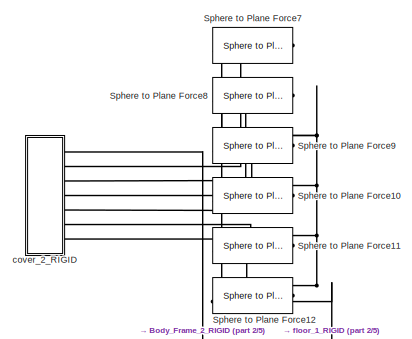
[diagram: root canvas - part 1/5, top left region]
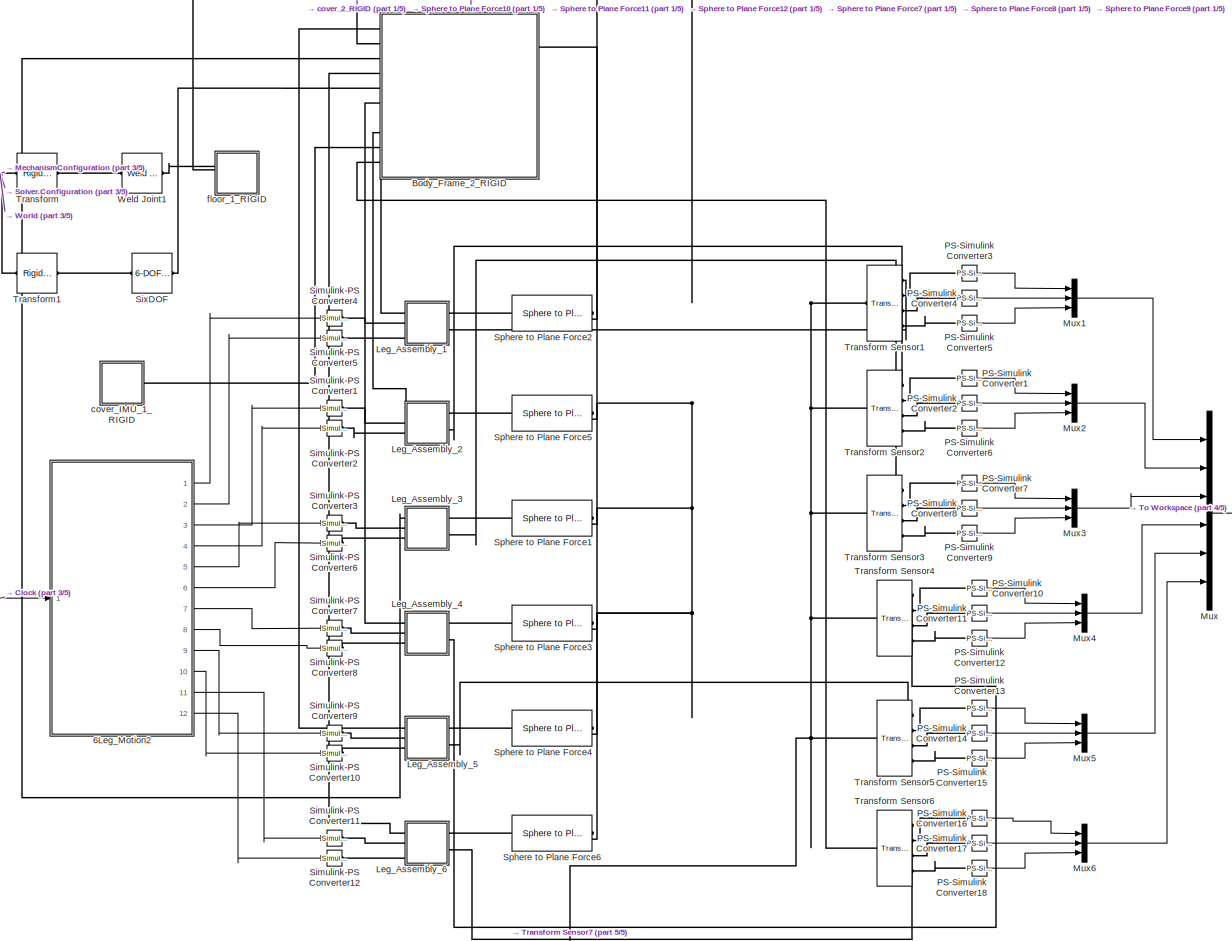
[diagram: root canvas - part 2/5, full width, middle band]
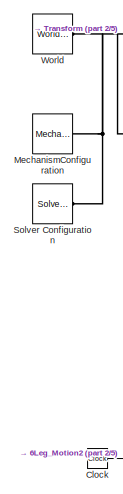
[diagram: root canvas - part 3/5, middle left region]
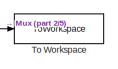
[diagram: root canvas - part 4/5, middle right region]
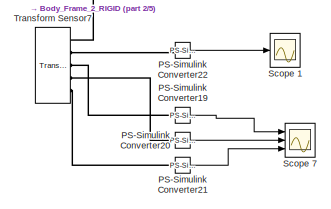
[diagram: root canvas - part 5/5, bottom center region]
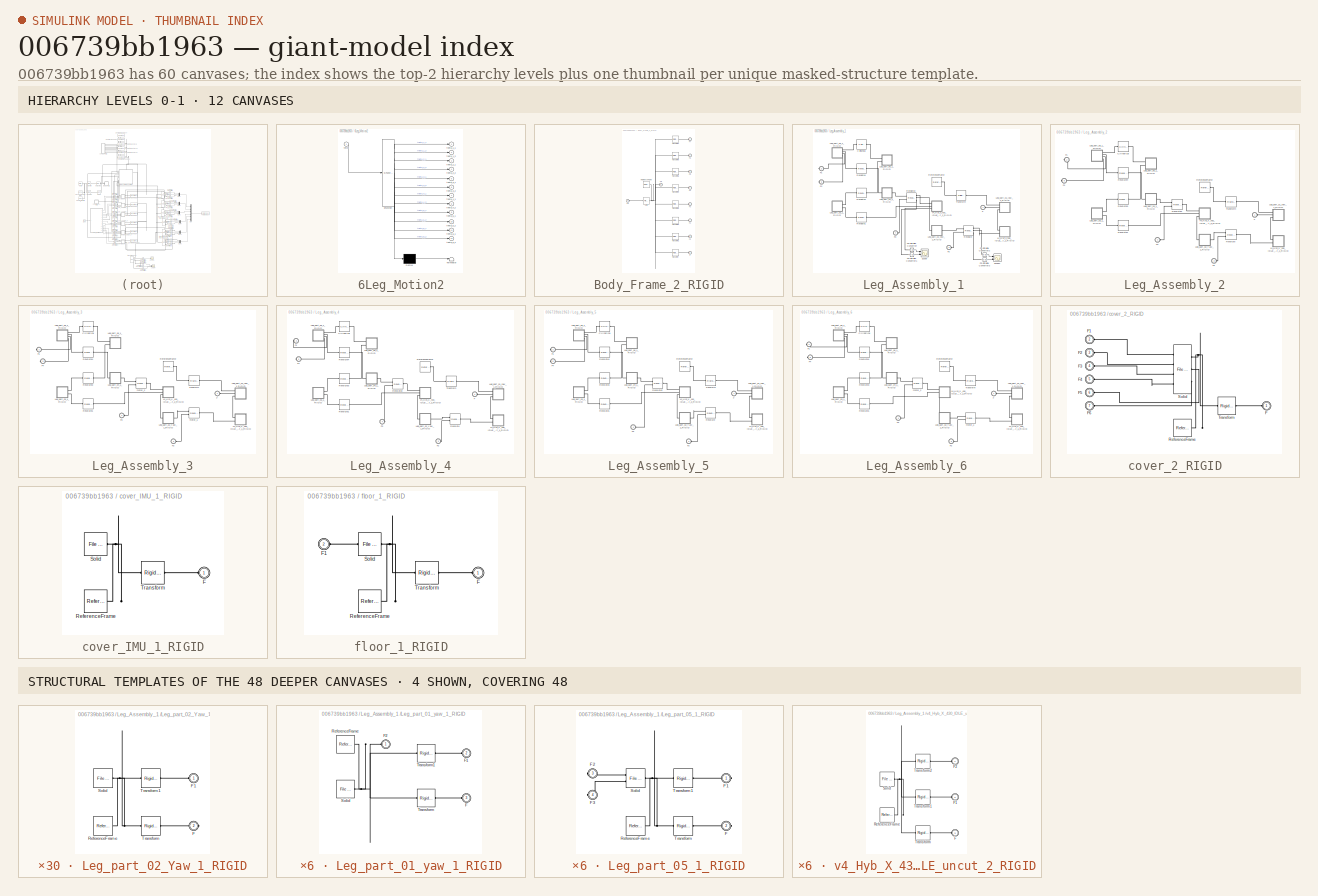
[diagram: thumbnail index - top-2 hierarchy levels (12 canvases) + 4 structural-template representatives of the remaining 48 canvases]
MODEL slx_006739bb1963
KIND model
CONFIG AbsTol = auto
CONFIG EnableMultiTasking = off
CONFIG FixedStep = 0.001
CONFIG InitFcn = SnapbotParameters_6leg;
CONFIG MaxStep = auto
CONFIG MinStep = auto
CONFIG PreLoadFcn = startup_Contact_Forces;
CONFIG RelTol = 1e-3
CONFIG SampleTimeConstraint = Unconstrained
CONFIG Solver = FixedStepAuto
CONFIG SolverName = FixedStepAuto
CONFIG StartTime = 0.0
CONFIG StopFcn = snapbot_plot;
CONFIG StopTime = 20
WORKSPACE source: MATLAB code (in-file)
WORKSPACE code: smiData.RigidTransform(41).translation = [0.0 0.0 0.0];
WORKSPACE code: smiData.RigidTransform(41).angle = 0.0;
WORKSPACE code: smiData.RigidTransform(41).axis = [0.0 0.0 0.0];
WORKSPACE code: smiData.RigidTransform(41).ID = '';
WORKSPACE code: smiData.RigidTransform(1).translation = [0 0 3.5000000000000031];  % mm
WORKSPACE code: smiData.RigidTransform(1).angle = 0;  % rad
WORKSPACE code: smiData.RigidTransform(1).axis = [0 0 0];
WORKSPACE code: smiData.RigidTransform(1).ID = 'B[Leg_Assembly_Y-P:Leg_part_01_yaw-1:-:Leg_Assembly_Y-P:v4_Hyb_X-430_IDLE_uncut-1]';
WORKSPACE code: smiData.RigidTransform(2).translation = [1.7377765892945298e-13 -35.249999999999865 -4.1211478674085811e-13];  % mm
WORKSPACE code: smiData.RigidTransform(2).angle = 3.1415926535897931;  % rad
WORKSPACE code: smiData.RigidTransform(2).axis = [3.9252311467098009e-17 -0.70710678118654757 -0.70710678118654746];
WORKSPACE code: smiData.RigidTransform(2).ID = 'F[Leg_Assembly_Y-P:Leg_part_01_yaw-1:-:Leg_Assembly_Y-P:v4_Hyb_X-430_IDLE_uncut-1]';
WORKSPACE code: smiData.RigidTransform(3).translation = [18.999999999999996 0 -21.500000000000004];  % mm
WORKSPACE code: smiData.RigidTransform(3).angle = 2.0943951023931957;  % rad
WORKSPACE code: smiData.RigidTransform(3).axis = [0.57735026918962562 0.57735026918962584 0.57735026918962584];
WORKSPACE code: smiData.RigidTransform(3).ID = 'B[Leg_Assembly_Y-P:Leg_part_02_Yaw-1:-:Leg_Assembly_Y-P:v4_Hyb_X-430_IDLE_uncut-1]';
WORKSPACE code: smiData.RigidTransform(4).translation = [-2.7613467068476893e-12 6.9988459472369868e-13 19];  % mm
WORKSPACE code: smiData.RigidTransform(4).angle = 4.7102773760513248e-16;  % rad
WORKSPACE code: smiData.RigidTransform(4).axis = [-0.94280904158206347 0.3333333333333332 -7.4014868308343741e-17];
WORKSPACE code: smiData.RigidTransform(4).ID = 'F[Leg_Assembly_Y-P:Leg_part_02_Yaw-1:-:Leg_Assembly_Y-P:v4_Hyb_X-430_IDLE_uncut-1]';
WORKSPACE code: smiData.RigidTransform(5).translation = [8.3000000000000025 6.0000000000000009 -1.5000000000000013];  % mm
WORKSPACE code: smiData.RigidTransform(5).angle = 3.1415926535897931;  % rad
WORKSPACE code: smiData.RigidTransform(5).axis = [1 0 0];
WORKSPACE code: smiData.RigidTransform(5).ID = 'B[Leg_Assembly_Y-P:Leg_part_02_Yaw-1:-:Leg_Assembly_Y-P:v4_Hyb_X-430_IDLE_uncut-2]';
WORKSPACE code: smiData.RigidTransform(6).translation = [-8.0000000000000853 -36.749999999999993 6.0000000000000142];  % mm
WORKSPACE code: smiData.RigidTransform(6).angle = 3.1415926535897931;  % rad
WORKSPACE code: smiData.RigidTransform(6).axis = [5.5511151231257827e-17 0.70710678118654757 -0.70710678118654746];
WORKSPACE code: smiData.RigidTransform(6).ID = 'F[Leg_Assembly_Y-P:Leg_part_02_Yaw-1:-:Leg_Assembly_Y-P:v4_Hyb_X-430_IDLE_uncut-2]';
WORKSPACE code: smiData.RigidTransform(7).translation = [-5.7500000000000053 17.749999999999996 20.999999999999993];  % mm
WORKSPACE code: smiData.RigidTransform(7).angle = 2.0943951023931953;  % rad
WORKSPACE code: smiData.RigidTransform(7).axis = [0.57735026918962584 -0.57735026918962584 0.57735026918962584];
WORKSPACE code: smiData.RigidTransform(7).ID = 'B[Leg_Assembly_Y-P:Leg_part_03-1:-:Leg_Assembly_Y-P:v4_Hyb_X-430_IDLE_uncut-2]';
WORKSPACE code: smiData.RigidTransform(8).translation = [-17.75000000000005 -4.0000000000015383 6.000000000000135];  % mm
WORKSPACE code: smiData.RigidTransform(8).angle = 2.0943951023931953;  % rad
WORKSPACE code: smiData.RigidTransform(8).axis = [0.57735026918962562 0.57735026918962584 0.57735026918962595];
WORKSPACE code: smiData.RigidTransform(8).ID = 'F[Leg_Assembly_Y-P:Leg_part_03-1:-:Leg_Assembly_Y-P:v4_Hyb_X-430_IDLE_uncut-2]';
WORKSPACE code: smiData.RigidTransform(9).translation = [47.999999999999986 0 0];  % mm
WORKSPACE code: smiData.RigidTransform(9).angle = 2.0943951023931953;  % rad
WORKSPACE code: smiData.RigidTransform(9).axis = [-0.57735026918962584 -0.57735026918962584 0.57735026918962584];
WORKSPACE code: smiData.RigidTransform(9).ID = 'B[Leg_Assembly_Y-P:Leg_part_04-1:-:Leg_Assembly_Y-P:v4_Hyb_X-430_IDLE_uncut-2]';
WORKSPACE code: smiData.RigidTransform(10).translation = [-1.2789769243681803e-12 1.5383250229206169e-12 24.000000000000025];  % mm
WORKSPACE code: smiData.RigidTransform(10).angle = 3.1415926535897931;  % rad
WORKSPACE code: smiData.RigidTransform(10).axis = [1 2.1382117680737565e-50 2.7755575615628914e-17];
WORKSPACE code: smiData.RigidTransform(10).ID = 'F[Leg_Assembly_Y-P:Leg_part_04-1:-:Leg_Assembly_Y-P:v4_Hyb_X-430_IDLE_uncut-2]';
WORKSPACE code: smiData.RigidTransform(11).translation = [21.999999999999993 6.0000000000000053 -15.000000000000004];  % mm
WORKSPACE code: smiData.RigidTransform(11).angle = 0;  % rad
WORKSPACE code: smiData.RigidTransform(11).axis = [0 0 0];
WORKSPACE code: smiData.RigidTransform(11).ID = 'B[Leg_Assembly_Y-P:Leg_part_03-1:-:Leg_Assembly_Y-P:Leg_part_06-1]';
WORKSPACE code: smiData.RigidTransform(12).translation = [-25.499999999999993 -6.4730443227745127e-12 -47.429999999998479];  % mm
WORKSPACE code: smiData.RigidTransform(12).angle = 2.0943951023931953;  % rad
WORKSPACE code: smiData.RigidTransform(12).axis = [0.57735026918962584 0.57735026918962584 0.57735026918962584];
WORKSPACE code: smiData.RigidTransform(12).ID = 'F[Leg_Assembly_Y-P:Leg_part_03-1:-:Leg_Assembly_Y-P:Leg_part_06-1]';
WORKSPACE code: smiData.RigidTransform(13).translation = [18.500000000000004 0 0];  % mm
WORKSPACE code: smiData.RigidTransform(13).angle = 2.0943951023931957;  % rad
WORKSPACE code: smiData.RigidTransform(13).axis = [-0.57735026918962584 -0.57735026918962573 0.57735026918962573];
WORKSPACE code: smiData.RigidTransform(13).ID = 'B[Leg_Assembly_Y-P:Leg_part_05-1:-:Leg_Assembly_Y-P:Leg_part_04-1]';
WORKSPACE code: smiData.RigidTransform(14).translation = [5.4999999999999645 -6.1227943166086393e-12 -59.999999999989711];  % mm
WORKSPACE code: smiData.RigidTransform(14).angle = 2.0943951023931953;  % rad
WORKSPACE code: smiData.RigidTransform(14).axis = [0.57735026918962584 0.57735026918962584 0.57735026918962584];
WORKSPACE code: smiData.RigidTransform(14).ID = 'F[Leg_Assembly_Y-P:Leg_part_05-1:-:Leg_Assembly_Y-P:Leg_part_04-1]';
WORKSPACE code: smiData.RigidTransform(15).translation = [-4.5000000000000009 25 0];  % mm
WORKSPACE code: smiData.RigidTransform(15).angle = 2.0943951023931953;  % rad
WORKSPACE code: smiData.RigidTransform(15).axis = [-0.57735026918962584 -0.57735026918962584 0.57735026918962584];
WORKSPACE code: smiData.RigidTransform(15).ID = 'B[Leg_Assembly_Y-P:Leg_part_05-1:-:Leg_Assembly_Y-P:Leg_part_06-1]';
WORKSPACE code: smiData.RigidTransform(16).translation = [8.9999999999998792 1.925328508647566e-12 -7.783518711315191e-13];  % mm
WORKSPACE code: smiData.RigidTransform(16).angle = 2.0943951023931957;  % rad
WORKSPACE code: smiData.RigidTransform(16).axis = [0.57735026918962584 0.57735026918962584 0.57735026918962562];
WORKSPACE code: smiData.RigidTransform(16).ID = 'F[Leg_Assembly_Y-P:Leg_part_05-1:-:Leg_Assembly_Y-P:Leg_part_06-1]';
WORKSPACE code: smiData.RigidTransform(17).translation = [-29.14813879243771 31.324765133364547 -50.486057334570816];  % mm
WORKSPACE code: smiData.RigidTransform(17).angle = 0.85969556486762932;  % rad
WORKSPACE code: smiData.RigidTransform(17).axis = [-0.88342402684813537 0.43430848851138709 -0.17589236934665334];
WORKSPACE code: smiData.RigidTransform(17).ID = 'B[Body_Frame-2:-:cover_IMU-1]';
WORKSPACE code: smiData.RigidTransform(18).translation = [-29.148138792437663 -3.675234866635499 -50.486057334570852];  % mm
WORKSPACE code: smiData.RigidTransform(18).angle = 0.85969556486762932;  % rad
WORKSPACE code: smiData.RigidTransform(18).axis = [-0.88342402684813526 0.43430848851138698 -0.17589236934665331];
WORKSPACE code: smiData.RigidTransform(18).ID = 'F[Body_Frame-2:-:cover_IMU-1]';
WORKSPACE code: smiData.RigidTransform(19).translation = [-60.000000000000043 24.02083948120934 0];  % mm
WORKSPACE code: smiData.RigidTransform(19).angle = 2.5346467848844187;  % rad
WORKSPACE code: smiData.RigidTransform(19).axis = [-0.31314561301497384 -0.67154293423781708 0.67154293423781863];
WORKSPACE code: smiData.RigidTransform(19).ID = 'B[Body_Frame-2:-:Leg_Assembly_Y-P-5:Leg_part_01_yaw-1]';
WORKSPACE code: smiData.RigidTransform(20).translation = [3.7154631030277672e-13 16.020839481209393 -21.000000000000213];  % mm
WORKSPACE code: smiData.RigidTransform(20).angle = 1.6880425449503949;  % rad
WORKSPACE code: smiData.RigidTransform(20).axis = [0.32361557711818967 -0.32361557711818179 0.88912649071598759];
WORKSPACE code: smiData.RigidTransform(20).ID = 'F[Body_Frame-2:-:Leg_Assembly_Y-P-5:Leg_part_01_yaw-1]';
WORKSPACE code: smiData.RigidTransform(21).translation = [-17.984370389093243 16.010419740604632 -58.898751217406307];  % mm
WORKSPACE code: smiData.RigidTransform(21).angle = 2.5668813081404753;  % rad
WORKSPACE code: smiData.RigidTransform(21).axis = [-0.54469904781872214 -0.67552162020226258 0.49696427230203144];
WORKSPACE code: smiData.RigidTransform(21).ID = 'B[Body_Frame-2:-:Leg_Assembly_Y-P-4:Leg_part_01_yaw-1]';
WORKSPACE code: smiData.RigidTransform(22).translation = [-13.874453980679904 8.0104197406047888 -21.000000000000171];  % mm
WORKSPACE code: smiData.RigidTransform(22).angle = 1.5933089052267559;  % rad
WORKSPACE code: smiData.RigidTransform(22).axis = [0.45474157432660411 0.14837486987203785 0.87817708838788178];
WORKSPACE code: smiData.RigidTransform(22).ID = 'F[Body_Frame-2:-:Leg_Assembly_Y-P-4:Leg_part_01_yaw-1]';
WORKSPACE code: smiData.RigidTransform(23).translation = [0 50 0];  % mm
WORKSPACE code: smiData.RigidTransform(23).angle = 2.0943951023931953;  % rad
WORKSPACE code: smiData.RigidTransform(23).axis = [-0.57735026918962584 -0.57735026918962584 -0.57735026918962584];
WORKSPACE code: smiData.RigidTransform(23).ID = 'B[floor-1:-:]';
WORKSPACE code: smiData.RigidTransform(24).translation = [0 -7.1054273576010019e-15 0];  % mm
WORKSPACE code: smiData.RigidTransform(24).angle = 3.1415926535897931;  % rad
WORKSPACE code: smiData.RigidTransform(24).axis = [0.70710678118654757 0.70710678118654757 -5.5511151231257839e-17];
WORKSPACE code: smiData.RigidTransform(24).ID = 'F[floor-1:-:]';
WORKSPACE code: smiData.RigidTransform(25).translation = [29.999999999999982 24.02083948120934 -51.961524227066384];  % mm
WORKSPACE code: smiData.RigidTransform(25).angle = 2.3875525638501713;  % rad
WORKSPACE code: smiData.RigidTransform(25).axis = [0.97769691900991618 0.078837114487629617 0.19466238449629064];
WORKSPACE code: smiData.RigidTransform(25).ID = 'B[Body_Frame-2:-:Leg_Assembly_Y-P-3:Leg_part_01_yaw-1]';
WORKSPACE code: smiData.RigidTransform(26).translation = [-4.3698378249246161e-13 16.020839481209286 -20.999999999999972];  % mm
WORKSPACE code: smiData.RigidTransform(26).angle = 2.8078721686781996;  % rad
WORKSPACE code: smiData.RigidTransform(26).axis = [0.061302152168850967 -0.34137689046920633 0.93792529808777547];
WORKSPACE code: smiData.RigidTransform(26).ID = 'F[Body_Frame-2:-:Leg_Assembly_Y-P-3:Leg_part_01_yaw-1]';
WORKSPACE code: smiData.RigidTransform(27).translation = [30.000000000000536 24.02083948120934 51.961524227066057];  % mm
WORKSPACE code: smiData.RigidTransform(27).angle = 0.85969556486763532;  % rad
WORKSPACE code: smiData.RigidTransform(27).axis = [0.88342402684813182 0.43430848851139292 0.17589236934665639];
WORKSPACE code: smiData.RigidTransform(27).ID = 'B[Body_Frame-2:-:Leg_Assembly_Y-P-2:Leg_part_01_yaw-1]';
WORKSPACE code: smiData.RigidTransform(28).translation = [5.6843418860808015e-14 16.020839481209322 -21.000000000000114];  % mm
WORKSPACE code: smiData.RigidTransform(28).angle = 0.7800553012765955;  % rad
WORKSPACE code: smiData.RigidTransform(28).axis = [0.88538441591605921 -0.15899134272919926 0.43682512403723389];
WORKSPACE code: smiData.RigidTransform(28).ID = 'F[Body_Frame-2:-:Leg_Assembly_Y-P-2:Leg_part_01_yaw-1]';
WORKSPACE code: smiData.RigidTransform(29).translation = [0 16.020839481209414 -20.999999999999996];  % mm
WORKSPACE code: smiData.RigidTransform(29).angle = 2.4434609527920594;  % rad
WORKSPACE code: smiData.RigidTransform(29).axis = [-1 -2.3686015843339707e-16 6.5076793686420059e-16];
WORKSPACE code: smiData.RigidTransform(29).ID = 'B[Leg_Assembly_Y-P-1:Leg_part_01_yaw-1:-:Body_Frame-2]';
WORKSPACE code: smiData.RigidTransform(30).translation = [-29.999999999999154 24.020839481209457 51.961524227066796];  % mm
WORKSPACE code: smiData.RigidTransform(30).angle = 2.4682098215588208;  % rad
WORKSPACE code: smiData.RigidTransform(30).axis = [-0.96166828182989805 -0.093787209197188054 -0.25767823950294];
WORKSPACE code: smiData.RigidTransform(30).ID = 'F[Leg_Assembly_Y-P-1:Leg_part_01_yaw-1:-:Body_Frame-2]';
WORKSPACE code: smiData.RigidTransform(31).translation = [58.296277584874844 -3.6752348666354435 0];  % mm
WORKSPACE code: smiData.RigidTransform(31).angle = 1.750366012803156;  % rad
WORKSPACE code: smiData.RigidTransform(31).axis = [0.83481712947898612 0.38928162063502714 0.38928162063502642];
WORKSPACE code: smiData.RigidTransform(31).ID = 'B[cover-2:-:Body_Frame-2]';
WORKSPACE code: smiData.RigidTransform(32).translation = [-58.296277584874161 -15.324765133364131 2.3909763058327371e-12];  % mm
WORKSPACE code: smiData.RigidTransform(32).angle = 2.534646784884413;  % rad
WORKSPACE code: smiData.RigidTransform(32).axis = [0.31314561301496746 -0.67154293423781519 -0.67154293423782341];
WORKSPACE code: smiData.RigidTransform(32).ID = 'F[cover-2:-:Body_Frame-2]';
WORKSPACE code: smiData.RigidTransform(33).translation = [60.000000000000043 24.02083948120934 0];  % mm
WORKSPACE code: smiData.RigidTransform(33).angle = 1.7503660128031577;  % rad
WORKSPACE code: smiData.RigidTransform(33).axis = [0.83481712947898612 0.38928162063502897 0.38928162063502469];
WORKSPACE code: smiData.RigidTransform(33).ID = 'B[Body_Frame-2:-:Leg_Assembly_Y-P-6:Leg_part_01_yaw-1]';
WORKSPACE code: smiData.RigidTransform(34).translation = [5.3069536461860958e-13 16.020839481209272 -21.000000000000171];  % mm
WORKSPACE code: smiData.RigidTransform(34).angle = 1.6880425449503949;  % rad
WORKSPACE code: smiData.RigidTransform(34).axis = [0.32361557711818967 -0.32361557711818206 0.88912649071598748];
WORKSPACE code: smiData.RigidTransform(34).ID = 'F[Body_Frame-2:-:Leg_Assembly_Y-P-6:Leg_part_01_yaw-1]';
WORKSPACE code: smiData.RigidTransform(35).translation = [-0.53570167355018905 37.318511693782639 54.569829435763872];  % mm
WORKSPACE code: smiData.RigidTransform(35).angle = 0;  % rad
WORKSPACE code: smiData.RigidTransform(35).axis = [0 0 0];
WORKSPACE code: smiData.RigidTransform(35).ID = 'AssemblyGround[Leg_Assembly_Y-P-1:Leg_part_01_yaw-1]';
WORKSPACE code: smiData.RigidTransform(36).translation = [-0.53570167355018106 37.318511693782625 54.569829435763914];  % mm
WORKSPACE code: smiData.RigidTransform(36).angle = 0;  % rad
WORKSPACE code: smiData.RigidTransform(36).axis = [0 0 0];
WORKSPACE code: smiData.RigidTransform(36).ID = 'AssemblyGround[Leg_Assembly_Y-P-2:Leg_part_01_yaw-1]';
WORKSPACE code: smiData.RigidTransform(37).translation = [-0.53570167355018228 37.318511693782625 54.569829435763921];  % mm
WORKSPACE code: smiData.RigidTransform(37).angle = 0;  % rad
WORKSPACE code: smiData.RigidTransform(37).axis = [0 0 0];
WORKSPACE code: smiData.RigidTransform(37).ID = 'AssemblyGround[Leg_Assembly_Y-P-3:Leg_part_01_yaw-1]';
WORKSPACE code: smiData.RigidTransform(38).translation = [-0.53570167355018561 37.318511693782625 54.569829435763857];  % mm
WORKSPACE code: smiData.RigidTransform(38).angle = 0;  % rad
WORKSPACE code: smiData.RigidTransform(38).axis = [0 0 0];
WORKSPACE code: smiData.RigidTransform(38).ID = 'AssemblyGround[Leg_Assembly_Y-P-5:Leg_part_01_yaw-1]';
WORKSPACE code: smiData.RigidTransform(39).translation = [-0.53570167355018039 37.318511693782639 54.569829435763864];  % mm
WORKSPACE code: smiData.RigidTransform(39).angle = 0;  % rad
WORKSPACE code: smiData.RigidTransform(39).axis = [0 0 0];
WORKSPACE code: smiData.RigidTransform(39).ID = 'AssemblyGround[Leg_Assembly_Y-P-4:Leg_part_01_yaw-1]';
WORKSPACE code: smiData.RigidTransform(40).translation = [-0.53570167355017972 37.318511693782597 54.569829435763886];  % mm
WORKSPACE code: smiData.RigidTransform(40).angle = 0;  % rad
WORKSPACE code: smiData.RigidTransform(40).axis = [0 0 0];
WORKSPACE code: smiData.RigidTransform(40).ID = 'AssemblyGround[Leg_Assembly_Y-P-6:Leg_part_01_yaw-1]';
WORKSPACE code: smiData.RigidTransform(41).translation = [1.1102230246251479e-12 3.2151978216727191e-12 132.50000000000026];  % mm
WORKSPACE code: smiData.RigidTransform(41).angle = 2.0943951023931957;  % rad
WORKSPACE code: smiData.RigidTransform(41).axis = [0.57735026918962573 -0.57735026918962562 -0.57735026918962573];
WORKSPACE code: smiData.RigidTransform(41).ID = 'SixDofRigidTransform[Body_Frame-2]';
WORKSPACE code: smiData.Solid(11).mass = 0.0;
WORKSPACE code: smiData.Solid(11).CoM = [0.0 0.0 0.0];
WORKSPACE code: smiData.Solid(11).MoI = [0.0 0.0 0.0];
WORKSPACE code: smiData.Solid(11).PoI = [0.0 0.0 0.0];
WORKSPACE code: smiData.Solid(11).color = [0.0 0.0 0.0];
WORKSPACE code: smiData.Solid(11).opacity = 0.0;
WORKSPACE code: smiData.Solid(11).ID = '';
WORKSPACE code: smiData.Solid(1).mass = 49.999999999999993;  % kg
WORKSPACE code: smiData.Solid(1).CoM = [0 25.000000000000004 0];  % mm
WORKSPACE code: smiData.Solid(1).MoI = [4177083.333333333 8333333.333333334 4177083.333333333];  % kg*mm^2
WORKSPACE code: smiData.Solid(1).PoI = [0 -7.6327832942979522e-10 0];  % kg*mm^2
WORKSPACE code: smiData.Solid(1).color = [0.792156862745098 0.81960784313725488 0.93333333333333335];
WORKSPACE code: smiData.Solid(1).opacity = 1;
WORKSPACE code: smiData.Solid(1).ID = 'floor*:*Default';
WORKSPACE code: smiData.Solid(2).mass = 0.069142856834278052;  % kg
WORKSPACE code: smiData.Solid(2).CoM = [-6.5363888180793326e-08 8.0286872966298493 -0.84505300940729178];  % mm
WORKSPACE code: smiData.Solid(2).MoI = [133.83817269769426 248.31514966138255 134.30804068565405];  % kg*mm^2
WORKSPACE code: smiData.Solid(2).PoI = [0.10611953301327832 3.6362614035336834e-07 -3.5551676350249992e-07];  % kg*mm^2
WORKSPACE code: smiData.Solid(2).color = [0.75294117647058822 0.75294117647058822 0.75294117647058822];
WORKSPACE code: smiData.Solid(2).opacity = 1;
WORKSPACE code: smiData.Solid(2).ID = 'Body_Frame*:*Default';
WORKSPACE code: smiData.Solid(3).mass = 0.011990679618999286;  % kg
WORKSPACE code: smiData.Solid(3).CoM = [0.00075299564053924969 1.2041866129100636 0.00017910245223251136];  % mm
WORKSPACE code: smiData.Solid(3).MoI = [12.311205329208734 24.493353479322121 12.311271128519959];  % kg*mm^2
WORKSPACE code: smiData.Solid(3).PoI = [1.0644747991253964e-05 -8.6961826208665648e-05 1.824565847520757e-05];  % kg*mm^2
WORKSPACE code: smiData.Solid(3).color = [0.792156862745098 0.81960784313725488 0.93333333333333335];
WORKSPACE code: smiData.Solid(3).opacity = 1;
WORKSPACE code: smiData.Solid(3).ID = 'cover_IMU*:*Default';
WORKSPACE code: smiData.Solid(4).mass = 0.043283962506312126;  % kg
WORKSPACE code: smiData.Solid(4).CoM = [0 -11.629154441205349 0.58622657822569368];  % mm
WORKSPACE code: smiData.Solid(4).MoI = [11.945660403890635 6.9373449472329325 10.473897647404552];  % kg*mm^2
WORKSPACE code: smiData.Solid(4).PoI = [-0.010479195470367065 0 0];  % kg*mm^2
WORKSPACE code: smiData.Solid(4).color = [0.50196078431372548 0.50196078431372548 0.50196078431372548];
WORKSPACE code: smiData.Solid(4).opacity = 1;
WORKSPACE code: smiData.Solid(4).ID = 'v4_Hyb_X-430_IDLE_uncut*:*Default';
WORKSPACE code: smiData.Solid(5).mass = 0.015928924279537779;  % kg
WORKSPACE code: smiData.Solid(5).CoM = [5.5724533955433566 0.60923661115773331 14.965495324586268];  % mm
WORKSPACE code: smiData.Solid(5).MoI = [6.7178267454302487 3.3961346093070595 5.3516535264104634];  % kg*mm^2
WORKSPACE code: smiData.Solid(5).PoI = [0.0029589860947701013 0.0090414356066351453 -0.14024072638650098];  % kg*mm^2
WORKSPACE code: smiData.Solid(5).color = [0.50196078431372548 1 1];
WORKSPACE code: smiData.Solid(5).opacity = 1;
WORKSPACE code: smiData.Solid(5).ID = 'Leg_part_03*:*Default';
WORKSPACE code: smiData.Solid(6).mass = 0.01532092516699415;  % kg
WORKSPACE code: smiData.Solid(6).CoM = [23.99999768920209 1.2961678062824165 -35.100094443023529];  % mm
WORKSPACE code: smiData.Solid(6).MoI = [10.22123294031608 14.203511884952173 5.0157635391797415];  % kg*mm^2
WORKSPACE code: smiData.Solid(6).PoI = [0.58071119483444811 9.2473756048793079e-07 -5.4914041407587592e-06];  % kg*mm^2
WORKSPACE code: smiData.Solid(6).color = [1 0.38823529411764707 0.41960784313725491];
WORKSPACE code: smiData.Solid(6).opacity = 1;
WORKSPACE code: smiData.Solid(6).ID = 'Leg_part_04*:*Default';
WORKSPACE code: smiData.Solid(7).mass = 0.022715083434313933;  % kg
WORKSPACE code: smiData.Solid(7).CoM = [4.7495790018670679e-05 -5.2914882898767052e-07 0.5165057921701256];  % mm
WORKSPACE code: smiData.Solid(7).MoI = [6.0201227624572091 7.3567997591054697 10.813457729002581];  % kg*mm^2
WORKSPACE code: smiData.Solid(7).PoI = [5.9445977509619064e-08 -2.8721317734098932e-06 -2.6844578174760262e-06];  % kg*mm^2
WORKSPACE code: smiData.Solid(7).color = [0.027450980392156862 1 0.027450980392156862];
WORKSPACE code: smiData.Solid(7).opacity = 1;
WORKSPACE code: smiData.Solid(7).ID = 'Leg_part_02_Yaw*:*Default';
WORKSPACE code: smiData.Solid(8).mass = 0.022008322051922449;  % kg
WORKSPACE code: smiData.Solid(8).CoM = [-0.00020078562165670621 -0.086645709821861094 -7.0226871847428578];  % mm
WORKSPACE code: smiData.Solid(8).MoI = [6.5441760223709542 5.8120654403371752 5.5882327823375002];  % kg*mm^2
WORKSPACE code: smiData.Solid(8).PoI = [-0.022603449848346446 -3.352686832653925e-05 -5.8881839756598183e-05];  % kg*mm^2
WORKSPACE code: smiData.Solid(8).color = [0.9882352941176471 0.73725490196078436 0.51764705882352935];
WORKSPACE code: smiData.Solid(8).opacity = 1;
WORKSPACE code: smiData.Solid(8).ID = 'Leg_part_01_yaw*:*Default';
WORKSPACE code: smiData.Solid(9).mass = 0.014765646142892632;  % kg
WORKSPACE code: smiData.Solid(9).CoM = [1.2086758172751703e-05 38.516029865216908 1.6102137958750217e-05];  % mm
WORKSPACE code: smiData.Solid(9).MoI = [11.438112427079185 0.88080259805912509 11.92628093115035];  % kg*mm^2
WORKSPACE code: smiData.Solid(9).PoI = [1.3310978313730002e-06 5.7966270342722696e-06 1.0118234103070852e-06];  % kg*mm^2
WORKSPACE code: smiData.Solid(9).color = [0.039215686274509803 0.63137254901960782 0.90588235294117647];
WORKSPACE code: smiData.Solid(9).opacity = 1;
WORKSPACE code: smiData.Solid(9).ID = 'Leg_part_05*:*Default';
WORKSPACE code: smiData.Solid(10).mass = 0.0061788723822202929;  % kg
WORKSPACE code: smiData.Solid(10).CoM = [4.2543802409912495 -4.630092097224253 -20.149819352752836];  % mm
WORKSPACE code: smiData.Solid(10).MoI = [2.2893274182864181 2.0053458866812131 0.35993641872183119];  % kg*mm^2
WORKSPACE code: smiData.Solid(10).PoI = [0.20173149787382888 -0.0054107076234519427 0.0070268738351532299];  % kg*mm^2
WORKSPACE code: smiData.Solid(10).color = [0.8666666666666667 0.46666666666666667 0.094117647058823528];
WORKSPACE code: smiData.Solid(10).opacity = 1;
WORKSPACE code: smiData.Solid(10).ID = 'Leg_part_06*:*Default';
WORKSPACE code: smiData.Solid(11).mass = 0.011859040673008395;  % kg
WORKSPACE code: smiData.Solid(11).CoM = [9.2568952008978674e-05 1.1917658906433921 -6.4265217793451617e-05];  % mm
WORKSPACE code: smiData.Solid(11).MoI = [12.336903139260397 24.543407766477518 12.33692406602713];  % kg*mm^2
WORKSPACE code: smiData.Solid(11).PoI = [1.0093449366405608e-06 3.0788090303879734e-05 -1.064469578393175e-06];  % kg*mm^2
WORKSPACE code: smiData.Solid(11).color = [0.792156862745098 0.81960784313725488 0.93333333333333335];
WORKSPACE code: smiData.Solid(11).opacity = 1;
WORKSPACE code: smiData.Solid(11).ID = 'cover*:*Default';
WORKSPACE code: smiData.CylindricalJoint(6).Rz.Pos = 0.0;
WORKSPACE code: smiData.CylindricalJoint(6).Pz.Pos = 0.0;
WORKSPACE code: smiData.CylindricalJoint(6).ID = '';
WORKSPACE code: smiData.CylindricalJoint(1).Rz.Pos = -40.005411760834768;  % deg
WORKSPACE code: smiData.CylindricalJoint(1).Pz.Pos = 0;  % mm
WORKSPACE code: smiData.CylindricalJoint(1).ID = '[Leg_Assembly_Y-P-1:Leg_part_05-1:-:Leg_Assembly_Y-P-1:Leg_part_06-1]';
WORKSPACE code: smiData.CylindricalJoint(2).Rz.Pos = -40.005411760834768;  % deg
WORKSPACE code: smiData.CylindricalJoint(2).Pz.Pos = 0;  % mm
WORKSPACE code: smiData.CylindricalJoint(2).ID = '[Leg_Assembly_Y-P-2:Leg_part_05-1:-:Leg_Assembly_Y-P-2:Leg_part_06-1]';
WORKSPACE code: smiData.CylindricalJoint(3).Rz.Pos = -40.005411760834768;  % deg
WORKSPACE code: smiData.CylindricalJoint(3).Pz.Pos = 0;  % mm
WORKSPACE code: smiData.CylindricalJoint(3).ID = '[Leg_Assembly_Y-P-3:Leg_part_05-1:-:Leg_Assembly_Y-P-3:Leg_part_06-1]';
WORKSPACE code: smiData.CylindricalJoint(4).Rz.Pos = -40.005411760834768;  % deg
WORKSPACE code: smiData.CylindricalJoint(4).Pz.Pos = 0;  % mm
WORKSPACE code: smiData.CylindricalJoint(4).ID = '[Leg_Assembly_Y-P-5:Leg_part_05-1:-:Leg_Assembly_Y-P-5:Leg_part_06-1]';
WORKSPACE code: smiData.CylindricalJoint(5).Rz.Pos = -40.005411760834761;  % deg
WORKSPACE code: smiData.CylindricalJoint(5).Pz.Pos = 0;  % mm
WORKSPACE code: smiData.CylindricalJoint(5).ID = '[Leg_Assembly_Y-P-4:Leg_part_05-1:-:Leg_Assembly_Y-P-4:Leg_part_06-1]';
WORKSPACE code: smiData.CylindricalJoint(6).Rz.Pos = -40.005411760834754;  % deg
WORKSPACE code: smiData.CylindricalJoint(6).Pz.Pos = 0;  % mm
WORKSPACE code: smiData.CylindricalJoint(6).ID = '[Leg_Assembly_Y-P-6:Leg_part_05-1:-:Leg_Assembly_Y-P-6:Leg_part_06-1]';
WORKSPACE code: smiData.RevoluteJoint(30).Rz.Pos = 0.0;
WORKSPACE code: smiData.RevoluteJoint(30).ID = '';
WORKSPACE code: smiData.RevoluteJoint(1).Rz.Pos = -4.0057075510311417e-30;  % deg
WORKSPACE code: smiData.RevoluteJoint(1).ID = '[Leg_Assembly_Y-P-1:Leg_part_02_Yaw-1:-:Leg_Assembly_Y-P-1:v4_Hyb_X-430_IDLE_uncut-1]';
WORKSPACE code: smiData.RevoluteJoint(2).Rz.Pos = -89.999999999999972;  % deg
WORKSPACE code: smiData.RevoluteJoint(2).ID = '[Leg_Assembly_Y-P-1:Leg_part_03-1:-:Leg_Assembly_Y-P-1:v4_Hyb_X-430_IDLE_uncut-2]';
WORKSPACE code: smiData.RevoluteJoint(3).Rz.Pos = 180;  % deg
WORKSPACE code: smiData.RevoluteJoint(3).ID = '[Leg_Assembly_Y-P-1:Leg_part_04-1:-:Leg_Assembly_Y-P-1:v4_Hyb_X-430_IDLE_uncut-2]';
WORKSPACE code: smiData.RevoluteJoint(4).Rz.Pos = -130.80925683646447;  % deg
WORKSPACE code: smiData.RevoluteJoint(4).ID = '[Leg_Assembly_Y-P-1:Leg_part_03-1:-:Leg_Assembly_Y-P-1:Leg_part_06-1]';
WORKSPACE code: smiData.RevoluteJoint(5).Rz.Pos = -179.19615492437035;  % deg
WORKSPACE code: smiData.RevoluteJoint(5).ID = '[Leg_Assembly_Y-P-1:Leg_part_05-1:-:Leg_Assembly_Y-P-1:Leg_part_04-1]';
WORKSPACE code: smiData.RevoluteJoint(6).Rz.Pos = 8.9959671327898901e-15;  % deg
WORKSPACE code: smiData.RevoluteJoint(6).ID = '[Leg_Assembly_Y-P-2:Leg_part_02_Yaw-1:-:Leg_Assembly_Y-P-2:v4_Hyb_X-430_IDLE_uncut-1]';
WORKSPACE code: smiData.RevoluteJoint(7).Rz.Pos = -90;  % deg
WORKSPACE code: smiData.RevoluteJoint(7).ID = '[Leg_Assembly_Y-P-2:Leg_part_03-1:-:Leg_Assembly_Y-P-2:v4_Hyb_X-430_IDLE_uncut-2]';
WORKSPACE code: smiData.RevoluteJoint(8).Rz.Pos = 180;  % deg
WORKSPACE code: smiData.RevoluteJoint(8).ID = '[Leg_Assembly_Y-P-2:Leg_part_04-1:-:Leg_Assembly_Y-P-2:v4_Hyb_X-430_IDLE_uncut-2]';
WORKSPACE code: smiData.RevoluteJoint(9).Rz.Pos = -130.80925683646447;  % deg
WORKSPACE code: smiData.RevoluteJoint(9).ID = '[Leg_Assembly_Y-P-2:Leg_part_03-1:-:Leg_Assembly_Y-P-2:Leg_part_06-1]';
WORKSPACE code: smiData.RevoluteJoint(10).Rz.Pos = -179.19615492437032;  % deg
WORKSPACE code: smiData.RevoluteJoint(10).ID = '[Leg_Assembly_Y-P-2:Leg_part_05-1:-:Leg_Assembly_Y-P-2:Leg_part_04-1]';
WORKSPACE code: smiData.RevoluteJoint(11).Rz.Pos = 8.9959671327898901e-15;  % deg
WORKSPACE code: smiData.RevoluteJoint(11).ID = '[Leg_Assembly_Y-P-3:Leg_part_02_Yaw-1:-:Leg_Assembly_Y-P-3:v4_Hyb_X-430_IDLE_uncut-1]';
WORKSPACE code: smiData.RevoluteJoint(12).Rz.Pos = -90;  % deg
WORKSPACE code: smiData.RevoluteJoint(12).ID = '[Leg_Assembly_Y-P-3:Leg_part_03-1:-:Leg_Assembly_Y-P-3:v4_Hyb_X-430_IDLE_uncut-2]';
WORKSPACE code: smiData.RevoluteJoint(13).Rz.Pos = 180;  % deg
WORKSPACE ... (+35 more variables)
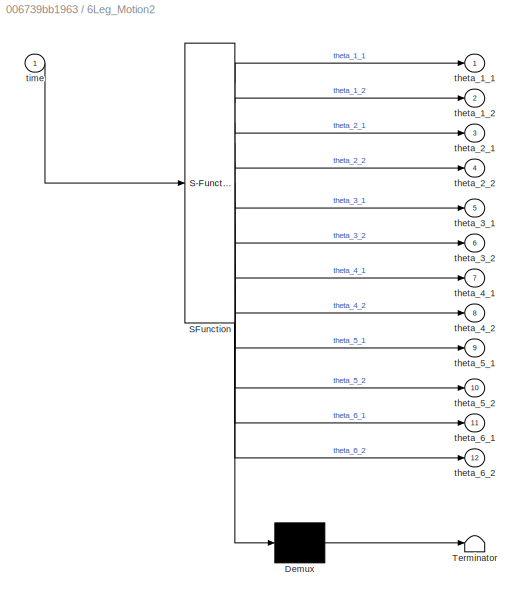
BLOCK [SubSystem] 6Leg_Motion2
  ErrorFcn = Stateflow.Translate.translate
  PermitHierarchicalResolution = ExplicitOnly
  Ports = [1, 12]
  RequestExecContextInheritance = off
  SFBlockType = MATLAB Function
  TreatAsAtomicUnit = on
BLOCK [Demux] 6Leg_Motion2/ Demux 
  Outputs = 1
  Ports = [1, 1]
BLOCK [S-Function] 6Leg_Motion2/ SFunction 
  EnableBusSupport = on
  FunctionName = sf_sfun
  PortCounts = [1 13]
  Ports = [1, 13]
  SFcnIsStateOwnerBlock = off
  SFunctionDeploymentMode = off
  Tag = Stateflow S-Function 2
BLOCK [Terminator] 6Leg_Motion2/ Terminator 
BLOCK [Outport] 6Leg_Motion2/theta_1_1
BLOCK [Outport] 6Leg_Motion2/theta_1_2
  Port = 2
BLOCK [Outport] 6Leg_Motion2/theta_2_1
  Port = 3
BLOCK [Outport] 6Leg_Motion2/theta_2_2
  Port = 4
BLOCK [Outport] 6Leg_Motion2/theta_3_1
  Port = 5
BLOCK [Outport] 6Leg_Motion2/theta_3_2
  Port = 6
BLOCK [Outport] 6Leg_Motion2/theta_4_1
  Port = 7
BLOCK [Outport] 6Leg_Motion2/theta_4_2
  Port = 8
BLOCK [Outport] 6Leg_Motion2/theta_5_1
  Port = 9
BLOCK [Outport] 6Leg_Motion2/theta_5_2
  Port = 10
BLOCK [Outport] 6Leg_Motion2/theta_6_1
  Port = 11
BLOCK [Outport] 6Leg_Motion2/theta_6_2
  Port = 12
BLOCK [Inport] 6Leg_Motion2/time
BLOCK [SubSystem] Body_Frame_2_RIGID
  Ports = [0, 0, 0, 0, 0, 10]
  RequestExecContextInheritance = off
BLOCK [PMIOPort] Body_Frame_2_RIGID/F
  Port = 9
  Side = Left
BLOCK [PMIOPort] Body_Frame_2_RIGID/F1
  Port = 8
  Side = Left
BLOCK [PMIOPort] Body_Frame_2_RIGID/F2
  Port = 7
  Side = Left
BLOCK [PMIOPort] Body_Frame_2_RIGID/F3
  Port = 6
  Side = Left
BLOCK [PMIOPort] Body_Frame_2_RIGID/F4
  Port = 4
  Side = Left
BLOCK [PMIOPort] Body_Frame_2_RIGID/F5
  Port = 3
  Side = Left
BLOCK [PMIOPort] Body_Frame_2_RIGID/F6
  Port = 2
  Side = Left
BLOCK [PMIOPort] Body_Frame_2_RIGID/F7
  Side = Left
BLOCK [PMIOPort] Body_Frame_2_RIGID/F8
  Port = 5
  Side = Left
BLOCK [PMIOPort] Body_Frame_2_RIGID/F9
  NameLocation = top
  Port = 10
  Side = Left
BLOCK [Reference] Body_Frame_2_RIGID/ReferenceFrame  REF=sm_lib/Frames and
Transforms/Reference
Frame
  Ports = [0, 0, 0, 0, 0, 0, 1]
  SourceBlock = sm_lib/Frames and\nTransforms/Reference\nFrame
  SourceProductBaseCode = MS
  SourceType = Reference\nFrame
BLOCK [Reference] Body_Frame_2_RIGID/Solid  REF=sm_lib/Body Elements/File Solid
  Ports = [0, 0, 0, 0, 0, 1, 1]
  SourceBlock = sm_lib/Body Elements/File Solid
  SourceProductBaseCode = MS
  SourceType = File Solid
BLOCK [Reference] Body_Frame_2_RIGID/Transform  REF=sm_lib/Frames and
Transforms/Rigid
Transform
  Ports = [0, 0, 0, 0, 0, 1, 1]
  SourceBlock = sm_lib/Frames and\nTransforms/Rigid\nTransform
  SourceProductBaseCode = MS
  SourceType = Rigid\nTransform
BLOCK [Reference] Body_Frame_2_RIGID/Transform1  REF=sm_lib/Frames and
Transforms/Rigid
Transform
  Ports = [0, 0, 0, 0, 0, 1, 1]
  SourceBlock = sm_lib/Frames and\nTransforms/Rigid\nTransform
  SourceProductBaseCode = MS
  SourceType = Rigid\nTransform
BLOCK [Reference] Body_Frame_2_RIGID/Transform2  REF=sm_lib/Frames and
Transforms/Rigid
Transform
  Ports = [0, 0, 0, 0, 0, 1, 1]
  SourceBlock = sm_lib/Frames and\nTransforms/Rigid\nTransform
  SourceProductBaseCode = MS
  SourceType = Rigid\nTransform
BLOCK [Reference] Body_Frame_2_RIGID/Transform3  REF=sm_lib/Frames and
Transforms/Rigid
Transform
  Ports = [0, 0, 0, 0, 0, 1, 1]
  SourceBlock = sm_lib/Frames and\nTransforms/Rigid\nTransform
  SourceProductBaseCode = MS
  SourceType = Rigid\nTransform
BLOCK [Reference] Body_Frame_2_RIGID/Transform4  REF=sm_lib/Frames and
Transforms/Rigid
Transform
  Ports = [0, 0, 0, 0, 0, 1, 1]
  SourceBlock = sm_lib/Frames and\nTransforms/Rigid\nTransform
  SourceProductBaseCode = MS
  SourceType = Rigid\nTransform
BLOCK [Reference] Body_Frame_2_RIGID/Transform5  REF=sm_lib/Frames and
Transforms/Rigid
Transform
  Ports = [0, 0, 0, 0, 0, 1, 1]
  SourceBlock = sm_lib/Frames and\nTransforms/Rigid\nTransform
  SourceProductBaseCode = MS
  SourceType = Rigid\nTransform
BLOCK [Reference] Body_Frame_2_RIGID/Transform6  REF=sm_lib/Frames and
Transforms/Rigid
Transform
  Ports = [0, 0, 0, 0, 0, 1, 1]
  SourceBlock = sm_lib/Frames and\nTransforms/Rigid\nTransform
  SourceProductBaseCode = MS
  SourceType = Rigid\nTransform
BLOCK [Reference] Body_Frame_2_RIGID/Transform7  REF=sm_lib/Frames and
Transforms/Rigid
Transform
  Ports = [0, 0, 0, 0, 0, 1, 1]
  SourceBlock = sm_lib/Frames and\nTransforms/Rigid\nTransform
  SourceProductBaseCode = MS
  SourceType = Rigid\nTransform
BLOCK [Clock] Clock
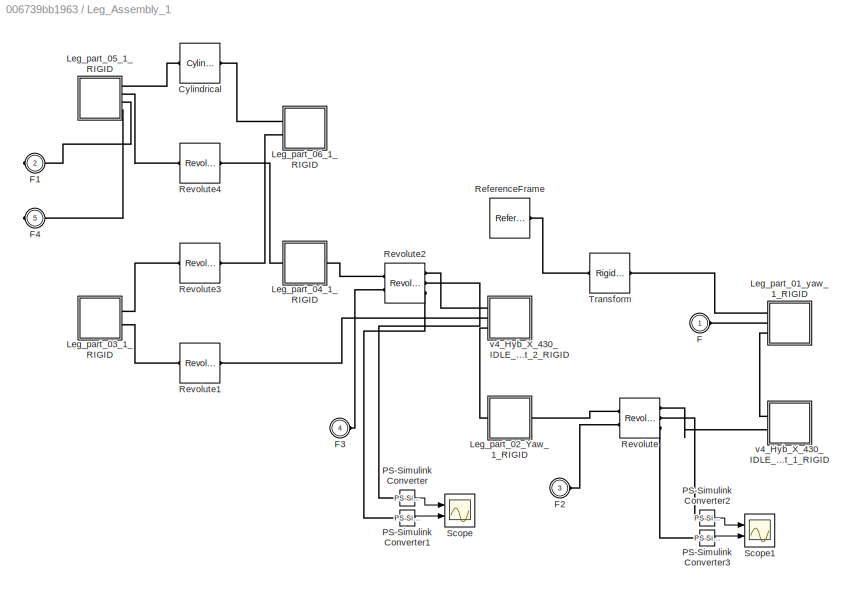
BLOCK [SubSystem] Leg_Assembly_1 
  Ports = [0, 0, 0, 0, 0, 3, 2]
  RequestExecContextInheritance = off
BLOCK [Reference] Leg_Assembly_1 /Cylindrical  REF=sm_lib/Joints/Cylindrical
Joint
  Ports = [0, 0, 0, 0, 0, 1, 1]
  SourceBlock = sm_lib/Joints/Cylindrical\nJoint
  SourceProductBaseCode = MS
  SourceType = Cylindrical\nJoint
BLOCK [PMIOPort] Leg_Assembly_1 /F
  Side = Left
BLOCK [PMIOPort] Leg_Assembly_1 /F1
  NameLocation = top
  Port = 2
  Side = Right
BLOCK [PMIOPort] Leg_Assembly_1 /F2
  Port = 3
  Side = Left
BLOCK [PMIOPort] Leg_Assembly_1 /F3
  Port = 4
  Side = Left
BLOCK [PMIOPort] Leg_Assembly_1 /F4
  Port = 5
  Side = Right
BLOCK [SubSystem] Leg_Assembly_1 /Leg_part_01_yaw_1_RIGID
  Ports = [0, 0, 0, 0, 0, 3]
  RequestExecContextInheritance = off
BLOCK [PMIOPort] Leg_Assembly_1 /Leg_part_01_yaw_1_RIGID/F
  Port = 3
  Side = Left
BLOCK [PMIOPort] Leg_Assembly_1 /Leg_part_01_yaw_1_RIGID/F1
  Port = 2
  Side = Left
BLOCK [PMIOPort] Leg_Assembly_1 /Leg_part_01_yaw_1_RIGID/F2
  Side = Left
BLOCK [Reference] Leg_Assembly_1 /Leg_part_01_yaw_1_RIGID/ReferenceFrame  REF=sm_lib/Frames and
Transforms/Reference
Frame
  Ports = [0, 0, 0, 0, 0, 0, 1]
  SourceBlock = sm_lib/Frames and\nTransforms/Reference\nFrame
  SourceProductBaseCode = MS
  SourceType = Reference\nFrame
BLOCK [Reference] Leg_Assembly_1 /Leg_part_01_yaw_1_RIGID/Solid  REF=sm_lib/Body Elements/File Solid
  Ports = [0, 0, 0, 0, 0, 0, 1]
  SourceBlock = sm_lib/Body Elements/File Solid
  SourceProductBaseCode = MS
  SourceType = File Solid
BLOCK [Reference] Leg_Assembly_1 /Leg_part_01_yaw_1_RIGID/Transform  REF=sm_lib/Frames and
Transforms/Rigid
Transform
  Ports = [0, 0, 0, 0, 0, 1, 1]
  SourceBlock = sm_lib/Frames and\nTransforms/Rigid\nTransform
  SourceProductBaseCode = MS
  SourceType = Rigid\nTransform
BLOCK [Reference] Leg_Assembly_1 /Leg_part_01_yaw_1_RIGID/Transform1  REF=sm_lib/Frames and
Transforms/Rigid
Transform
  Ports = [0, 0, 0, 0, 0, 1, 1]
  SourceBlock = sm_lib/Frames and\nTransforms/Rigid\nTransform
  SourceProductBaseCode = MS
  SourceType = Rigid\nTransform
BLOCK [SubSystem] Leg_Assembly_1 /Leg_part_02_Yaw_1_RIGID
  Ports = [0, 0, 0, 0, 0, 1, 1]
  RequestExecContextInheritance = off
BLOCK [PMIOPort] Leg_Assembly_1 /Leg_part_02_Yaw_1_RIGID/F
  Port = 2
  Side = Right
BLOCK [PMIOPort] Leg_Assembly_1 /Leg_part_02_Yaw_1_RIGID/F1
  Side = Left
BLOCK [Reference] Leg_Assembly_1 /Leg_part_02_Yaw_1_RIGID/ReferenceFrame  REF=sm_lib/Frames and
Transforms/Reference
Frame
  Ports = [0, 0, 0, 0, 0, 0, 1]
  SourceBlock = sm_lib/Frames and\nTransforms/Reference\nFrame
  SourceProductBaseCode = MS
  SourceType = Reference\nFrame
BLOCK [Reference] Leg_Assembly_1 /Leg_part_02_Yaw_1_RIGID/Solid  REF=sm_lib/Body Elements/File Solid
  Ports = [0, 0, 0, 0, 0, 0, 1]
  SourceBlock = sm_lib/Body Elements/File Solid
  SourceProductBaseCode = MS
  SourceType = File Solid
BLOCK [Reference] Leg_Assembly_1 /Leg_part_02_Yaw_1_RIGID/Transform  REF=sm_lib/Frames and
Transforms/Rigid
Transform
  Ports = [0, 0, 0, 0, 0, 1, 1]
  SourceBlock = sm_lib/Frames and\nTransforms/Rigid\nTransform
  SourceProductBaseCode = MS
  SourceType = Rigid\nTransform
BLOCK [Reference] Leg_Assembly_1 /Leg_part_02_Yaw_1_RIGID/Transform1  REF=sm_lib/Frames and
Transforms/Rigid
Transform
  Ports = [0, 0, 0, 0, 0, 1, 1]
  SourceBlock = sm_lib/Frames and\nTransforms/Rigid\nTransform
  SourceProductBaseCode = MS
  SourceType = Rigid\nTransform
BLOCK [SubSystem] Leg_Assembly_1 /Leg_part_03_1_RIGID
  Ports = [0, 0, 0, 0, 0, 0, 2]
  RequestExecContextInheritance = off
BLOCK [PMIOPort] Leg_Assembly_1 /Leg_part_03_1_RIGID/F
  Port = 2
  Side = Right
BLOCK [PMIOPort] Leg_Assembly_1 /Leg_part_03_1_RIGID/F1
  Side = Right
BLOCK [Reference] Leg_Assembly_1 /Leg_part_03_1_RIGID/ReferenceFrame  REF=sm_lib/Frames and
Transforms/Reference
Frame
  Ports = [0, 0, 0, 0, 0, 0, 1]
  SourceBlock = sm_lib/Frames and\nTransforms/Reference\nFrame
  SourceProductBaseCode = MS
  SourceType = Reference\nFrame
BLOCK [Reference] Leg_Assembly_1 /Leg_part_03_1_RIGID/Solid  REF=sm_lib/Body Elements/File Solid
  Ports = [0, 0, 0, 0, 0, 0, 1]
  SourceBlock = sm_lib/Body Elements/File Solid
  SourceProductBaseCode = MS
  SourceType = File Solid
BLOCK [Reference] Leg_Assembly_1 /Leg_part_03_1_RIGID/Transform  REF=sm_lib/Frames and
Transforms/Rigid
Transform
  Ports = [0, 0, 0, 0, 0, 1, 1]
  SourceBlock = sm_lib/Frames and\nTransforms/Rigid\nTransform
  SourceProductBaseCode = MS
  SourceType = Rigid\nTransform
BLOCK [Reference] Leg_Assembly_1 /Leg_part_03_1_RIGID/Transform1  REF=sm_lib/Frames and
Transforms/Rigid
Transform
  Ports = [0, 0, 0, 0, 0, 1, 1]
  SourceBlock = sm_lib/Frames and\nTransforms/Rigid\nTransform
  SourceProductBaseCode = MS
  SourceType = Rigid\nTransform
BLOCK [SubSystem] Leg_Assembly_1 /Leg_part_04_1_RIGID
  Ports = [0, 0, 0, 0, 0, 1, 1]
  RequestExecContextInheritance = off
BLOCK [PMIOPort] Leg_Assembly_1 /Leg_part_04_1_RIGID/F
  Port = 2
  Side = Right
BLOCK [PMIOPort] Leg_Assembly_1 /Leg_part_04_1_RIGID/F1
  Side = Left
BLOCK [Reference] Leg_Assembly_1 /Leg_part_04_1_RIGID/ReferenceFrame  REF=sm_lib/Frames and
Transforms/Reference
Frame
  Ports = [0, 0, 0, 0, 0, 0, 1]
  SourceBlock = sm_lib/Frames and\nTransforms/Reference\nFrame
  SourceProductBaseCode = MS
  SourceType = Reference\nFrame
BLOCK [Reference] Leg_Assembly_1 /Leg_part_04_1_RIGID/Solid  REF=sm_lib/Body Elements/File Solid
  Ports = [0, 0, 0, 0, 0, 0, 1]
  SourceBlock = sm_lib/Body Elements/File Solid
  SourceProductBaseCode = MS
  SourceType = File Solid
BLOCK [Reference] Leg_Assembly_1 /Leg_part_04_1_RIGID/Transform  REF=sm_lib/Frames and
Transforms/Rigid
Transform
  Ports = [0, 0, 0, 0, 0, 1, 1]
  SourceBlock = sm_lib/Frames and\nTransforms/Rigid\nTransform
  SourceProductBaseCode = MS
  SourceType = Rigid\nTransform
BLOCK [Reference] Leg_Assembly_1 /Leg_part_04_1_RIGID/Transform1  REF=sm_lib/Frames and
Transforms/Rigid
Transform
  Ports = [0, 0, 0, 0, 0, 1, 1]
  SourceBlock = sm_lib/Frames and\nTransforms/Rigid\nTransform
  SourceProductBaseCode = MS
  SourceType = Rigid\nTransform
BLOCK [SubSystem] Leg_Assembly_1 /Leg_part_05_1_RIGID
  Ports = [0, 0, 0, 0, 0, 0, 4]
  RequestExecContextInheritance = off
BLOCK [PMIOPort] Leg_Assembly_1 /Leg_part_05_1_RIGID/F
  Port = 2
  Side = Right
BLOCK [PMIOPort] Leg_Assembly_1 /Leg_part_05_1_RIGID/F1
  Side = Right
BLOCK [PMIOPort] Leg_Assembly_1 /Leg_part_05_1_RIGID/F2
  Port = 3
  Side = Right
BLOCK [PMIOPort] Leg_Assembly_1 /Leg_part_05_1_RIGID/F3
  Port = 4
  Side = Right
BLOCK [Reference] Leg_Assembly_1 /Leg_part_05_1_RIGID/ReferenceFrame  REF=sm_lib/Frames and
Transforms/Reference
Frame
  Ports = [0, 0, 0, 0, 0, 0, 1]
  SourceBlock = sm_lib/Frames and\nTransforms/Reference\nFrame
  SourceProductBaseCode = MS
  SourceType = Reference\nFrame
BLOCK [Reference] Leg_Assembly_1 /Leg_part_05_1_RIGID/Solid  REF=sm_lib/Body Elements/File Solid
  Ports = [0, 0, 0, 0, 0, 2, 1]
  SourceBlock = sm_lib/Body Elements/File Solid
  SourceProductBaseCode = MS
  SourceType = File Solid
BLOCK [Reference] Leg_Assembly_1 /Leg_part_05_1_RIGID/Transform  REF=sm_lib/Frames and
Transforms/Rigid
Transform
  Ports = [0, 0, 0, 0, 0, 1, 1]
  SourceBlock = sm_lib/Frames and\nTransforms/Rigid\nTransform
  SourceProductBaseCode = MS
  SourceType = Rigid\nTransform
BLOCK [Reference] Leg_Assembly_1 /Leg_part_05_1_RIGID/Transform1  REF=sm_lib/Frames and
Transforms/Rigid
Transform
  Ports = [0, 0, 0, 0, 0, 1, 1]
  SourceBlock = sm_lib/Frames and\nTransforms/Rigid\nTransform
  SourceProductBaseCode = MS
  SourceType = Rigid\nTransform
BLOCK [SubSystem] Leg_Assembly_1 /Leg_part_06_1_RIGID
  Ports = [0, 0, 0, 0, 0, 2]
  RequestExecContextInheritance = off
BLOCK [PMIOPort] Leg_Assembly_1 /Leg_part_06_1_RIGID/F
  Port = 2
  Side = Left
BLOCK [PMIOPort] Leg_Assembly_1 /Leg_part_06_1_RIGID/F1
  Side = Left
BLOCK [Reference] Leg_Assembly_1 /Leg_part_06_1_RIGID/ReferenceFrame  REF=sm_lib/Frames and
Transforms/Reference
Frame
  Ports = [0, 0, 0, 0, 0, 0, 1]
  SourceBlock = sm_lib/Frames and\nTransforms/Reference\nFrame
  SourceProductBaseCode = MS
  SourceType = Reference\nFrame
BLOCK [Reference] Leg_Assembly_1 /Leg_part_06_1_RIGID/Solid  REF=sm_lib/Body Elements/File Solid
  Ports = [0, 0, 0, 0, 0, 0, 1]
  SourceBlock = sm_lib/Body Elements/File Solid
  SourceProductBaseCode = MS
  SourceType = File Solid
BLOCK [Reference] Leg_Assembly_1 /Leg_part_06_1_RIGID/Transform  REF=sm_lib/Frames and
Transforms/Rigid
Transform
  Ports = [0, 0, 0, 0, 0, 1, 1]
  SourceBlock = sm_lib/Frames and\nTransforms/Rigid\nTransform
  SourceProductBaseCode = MS
  SourceType = Rigid\nTransform
BLOCK [Reference] Leg_Assembly_1 /Leg_part_06_1_RIGID/Transform1  REF=sm_lib/Frames and
Transforms/Rigid
Transform
  Ports = [0, 0, 0, 0, 0, 1, 1]
  SourceBlock = sm_lib/Frames and\nTransforms/Rigid\nTransform
  SourceProductBaseCode = MS
  SourceType = Rigid\nTransform
BLOCK [Reference] Leg_Assembly_1 /PS-Simulink Converter  REF=nesl_utility/PS-Simulink
Converter
  Ports = [0, 1, 0, 0, 0, 1]
  SourceBlock = nesl_utility/PS-Simulink\nConverter
  SourceProductBaseCode = SS
  SourceType = PS-Simulink\nConverter
BLOCK [Reference] Leg_Assembly_1 /PS-Simulink Converter1  REF=nesl_utility/PS-Simulink
Converter
  Ports = [0, 1, 0, 0, 0, 1]
  SourceBlock = nesl_utility/PS-Simulink\nConverter
  SourceProductBaseCode = SS
  SourceType = PS-Simulink\nConverter
BLOCK [Reference] Leg_Assembly_1 /PS-Simulink Converter2  REF=nesl_utility/PS-Simulink
Converter
  Ports = [0, 1, 0, 0, 0, 1]
  SourceBlock = nesl_utility/PS-Simulink\nConverter
  SourceProductBaseCode = SS
  SourceType = PS-Simulink\nConverter
BLOCK [Reference] Leg_Assembly_1 /PS-Simulink Converter3  REF=nesl_utility/PS-Simulink
Converter
  Ports = [0, 1, 0, 0, 0, 1]
  SourceBlock = nesl_utility/PS-Simulink\nConverter
  SourceProductBaseCode = SS
  SourceType = PS-Simulink\nConverter
BLOCK [Reference] Leg_Assembly_1 /ReferenceFrame  REF=sm_lib/Frames and
Transforms/Reference
Frame
  Ports = [0, 0, 0, 0, 0, 0, 1]
  SourceBlock = sm_lib/Frames and\nTransforms/Reference\nFrame
  SourceProductBaseCode = MS
  SourceType = Reference\nFrame
BLOCK [Reference] Leg_Assembly_1 /Revolute  REF=sm_lib/Joints/Revolute Joint
  Ports = [0, 0, 0, 0, 0, 2, 3]
  SourceBlock = sm_lib/Joints/Revolute Joint
  SourceProductBaseCode = MS
  SourceType = Revolute Joint
BLOCK [Reference] Leg_Assembly_1 /Revolute1  REF=sm_lib/Joints/Revolute Joint
  Ports = [0, 0, 0, 0, 0, 1, 1]
  SourceBlock = sm_lib/Joints/Revolute Joint
  SourceProductBaseCode = MS
  SourceType = Revolute Joint
BLOCK [Reference] Leg_Assembly_1 /Revolute2  REF=sm_lib/Joints/Revolute Joint
  Ports = [0, 0, 0, 0, 0, 2, 3]
  SourceBlock = sm_lib/Joints/Revolute Joint
  SourceProductBaseCode = MS
  SourceType = Revolute Joint
BLOCK [Reference] Leg_Assembly_1 /Revolute3  REF=sm_lib/Joints/Revolute Joint
  Ports = [0, 0, 0, 0, 0, 1, 1]
  SourceBlock = sm_lib/Joints/Revolute Joint
  SourceProductBaseCode = MS
  SourceType = Revolute Joint
BLOCK [Reference] Leg_Assembly_1 /Revolute4  REF=sm_lib/Joints/Revolute Joint
  Ports = [0, 0, 0, 0, 0, 1, 1]
  SourceBlock = sm_lib/Joints/Revolute Joint
  SourceProductBaseCode = MS
  SourceType = Revolute Joint
BLOCK [Scope] Leg_Assembly_1 /Scope
  Floating = off
  NumInputPorts = 2
  Ports = [2]
  ScopeSpecificationString = Simulink.scopes.TimeScopeBlockCfg('CurrentConfiguration', extmgr.ConfigurationSet(extmgr.Configuration('Core','General UI',true),extmgr.Configuration('Core','Source UI',true),extmgr.Configuration('Sources','WiredSimulink',true,'DataLoggingVariableName','ScopeData1'),extmgr.Configuration('Visuals','Time Domain',true,'SerializedDisplays',{struct('MinYLimReal','-3.71076','MaxYLimReal','3.93249','YLab...<+1454ch>
BLOCK [Scope] Leg_Assembly_1 /Scope1
  Floating = off
  NumInputPorts = 2
  Ports = [2]
  ScopeSpecificationString = Simulink.scopes.TimeScopeBlockCfg('CurrentConfiguration', extmgr.ConfigurationSet(extmgr.Configuration('Core','General UI',true),extmgr.Configuration('Core','Source UI',true),extmgr.Configuration('Sources','WiredSimulink',true,'DataLoggingVariableName','ScopeData2'),extmgr.Configuration('Visuals','Time Domain',true,'SerializedDisplays',{struct('MinYLimReal','-55.048','MaxYLimReal','67.25944','YLab...<+1482ch>
BLOCK [Reference] Leg_Assembly_1 /Transform  REF=sm_lib/Frames and
Transforms/Rigid
Transform
  Ports = [0, 0, 0, 0, 0, 1, 1]
  SourceBlock = sm_lib/Frames and\nTransforms/Rigid\nTransform
  SourceProductBaseCode = MS
  SourceType = Rigid\nTransform
BLOCK [SubSystem] Leg_Assembly_1 /v4_Hyb_X_430_IDLE_uncut_1_RIGID
  Ports = [0, 0, 0, 0, 0, 2]
  RequestExecContextInheritance = off
BLOCK [PMIOPort] Leg_Assembly_1 /v4_Hyb_X_430_IDLE_uncut_1_RIGID/F
  Side = Left
BLOCK [PMIOPort] Leg_Assembly_1 /v4_Hyb_X_430_IDLE_uncut_1_RIGID/F1
  Port = 2
  Side = Left
BLOCK [Reference] Leg_Assembly_1 /v4_Hyb_X_430_IDLE_uncut_1_RIGID/ReferenceFrame  REF=sm_lib/Frames and
Transforms/Reference
Frame
  Ports = [0, 0, 0, 0, 0, 0, 1]
  SourceBlock = sm_lib/Frames and\nTransforms/Reference\nFrame
  SourceProductBaseCode = MS
  SourceType = Reference\nFrame
BLOCK [Reference] Leg_Assembly_1 /v4_Hyb_X_430_IDLE_uncut_1_RIGID/Solid  REF=sm_lib/Body Elements/File Solid
  Ports = [0, 0, 0, 0, 0, 0, 1]
  SourceBlock = sm_lib/Body Elements/File Solid
  SourceProductBaseCode = MS
  SourceType = File Solid
BLOCK [Reference] Leg_Assembly_1 /v4_Hyb_X_430_IDLE_uncut_1_RIGID/Transform  REF=sm_lib/Frames and
Transforms/Rigid
Transform
  Ports = [0, 0, 0, 0, 0, 1, 1]
  SourceBlock = sm_lib/Frames and\nTransforms/Rigid\nTransform
  SourceProductBaseCode = MS
  SourceType = Rigid\nTransform
BLOCK [Reference] Leg_Assembly_1 /v4_Hyb_X_430_IDLE_uncut_1_RIGID/Transform1  REF=sm_lib/Frames and
Transforms/Rigid
Transform
  Ports = [0, 0, 0, 0, 0, 1, 1]
  SourceBlock = sm_lib/Frames and\nTransforms/Rigid\nTransform
  SourceProductBaseCode = MS
  SourceType = Rigid\nTransform
BLOCK [SubSystem] Leg_Assembly_1 /v4_Hyb_X_430_IDLE_uncut_2_RIGID
  Ports = [0, 0, 0, 0, 0, 3]
  RequestExecContextInheritance = off
BLOCK [PMIOPort] Leg_Assembly_1 /v4_Hyb_X_430_IDLE_uncut_2_RIGID/F
  Port = 3
  Side = Left
BLOCK [PMIOPort] Leg_Assembly_1 /v4_Hyb_X_430_IDLE_uncut_2_RIGID/F1
  Port = 2
  Side = Left
BLOCK [PMIOPort] Leg_Assembly_1 /v4_Hyb_X_430_IDLE_uncut_2_RIGID/F2
  Side = Left
BLOCK [Reference] Leg_Assembly_1 /v4_Hyb_X_430_IDLE_uncut_2_RIGID/ReferenceFrame  REF=sm_lib/Frames and
Transforms/Reference
Frame
  Ports = [0, 0, 0, 0, 0, 0, 1]
  SourceBlock = sm_lib/Frames and\nTransforms/Reference\nFrame
  SourceProductBaseCode = MS
  SourceType = Reference\nFrame
BLOCK [Reference] Leg_Assembly_1 /v4_Hyb_X_430_IDLE_uncut_2_RIGID/Solid  REF=sm_lib/Body Elements/File Solid
  Ports = [0, 0, 0, 0, 0, 0, 1]
  SourceBlock = sm_lib/Body Elements/File Solid
  SourceProductBaseCode = MS
  SourceType = File Solid
BLOCK [Reference] Leg_Assembly_1 /v4_Hyb_X_430_IDLE_uncut_2_RIGID/Transform  REF=sm_lib/Frames and
Transforms/Rigid
Transform
  Ports = [0, 0, 0, 0, 0, 1, 1]
  SourceBlock = sm_lib/Frames and\nTransforms/Rigid\nTransform
  SourceProductBaseCode = MS
  SourceType = Rigid\nTransform
BLOCK [Reference] Leg_Assembly_1 /v4_Hyb_X_430_IDLE_uncut_2_RIGID/Transform1  REF=sm_lib/Frames and
Transforms/Rigid
Transform
  Ports = [0, 0, 0, 0, 0, 1, 1]
  SourceBlock = sm_lib/Frames and\nTransforms/Rigid\nTransform
  SourceProductBaseCode = MS
  SourceType = Rigid\nTransform
BLOCK [Reference] Leg_Assembly_1 /v4_Hyb_X_430_IDLE_uncut_2_RIGID/Transform2  REF=sm_lib/Frames and
Transforms/Rigid
Transform
  Ports = [0, 0, 0, 0, 0, 1, 1]
  SourceBlock = sm_lib/Frames and\nTransforms/Rigid\nTransform
  SourceProductBaseCode = MS
  SourceType = Rigid\nTransform
BLOCK [SubSystem] Leg_Assembly_2
  Ports = [0, 0, 0, 0, 0, 3, 2]
  RequestExecContextInheritance = off
BLOCK [Reference] Leg_Assembly_2/Cylindrical  REF=sm_lib/Joints/Cylindrical
Joint
  Ports = [0, 0, 0, 0, 0, 1, 1]
  SourceBlock = sm_lib/Joints/Cylindrical\nJoint
  SourceProductBaseCode = MS
  SourceType = Cylindrical\nJoint
BLOCK [PMIOPort] Leg_Assembly_2/F
  Side = Left
BLOCK [PMIOPort] Leg_Assembly_2/F1
  NameLocation = top
  Port = 2
  Side = Right
BLOCK [PMIOPort] Leg_Assembly_2/F2
  Port = 3
  Side = Left
BLOCK [PMIOPort] Leg_Assembly_2/F3
  Port = 4
  Side = Left
BLOCK [PMIOPort] Leg_Assembly_2/F4
  NameLocation = top
  Port = 5
  Side = Right
BLOCK [SubSystem] Leg_Assembly_2/Leg_part_01_yaw_1_RIGID
  Ports = [0, 0, 0, 0, 0, 3]
  RequestExecContextInheritance = off
BLOCK [PMIOPort] Leg_Assembly_2/Leg_part_01_yaw_1_RIGID/F
  Port = 3
  Side = Left
BLOCK [PMIOPort] Leg_Assembly_2/Leg_part_01_yaw_1_RIGID/F1
  Port = 2
  Side = Left
BLOCK [PMIOPort] Leg_Assembly_2/Leg_part_01_yaw_1_RIGID/F2
  Side = Left
BLOCK [Reference] Leg_Assembly_2/Leg_part_01_yaw_1_RIGID/ReferenceFrame  REF=sm_lib/Frames and
Transforms/Reference
Frame
  Ports = [0, 0, 0, 0, 0, 0, 1]
  SourceBlock = sm_lib/Frames and\nTransforms/Reference\nFrame
  SourceProductBaseCode = MS
  SourceType = Reference\nFrame
BLOCK [Reference] Leg_Assembly_2/Leg_part_01_yaw_1_RIGID/Solid  REF=sm_lib/Body Elements/File Solid
  Ports = [0, 0, 0, 0, 0, 0, 1]
  SourceBlock = sm_lib/Body Elements/File Solid
  SourceProductBaseCode = MS
  SourceType = File Solid
BLOCK [Reference] Leg_Assembly_2/Leg_part_01_yaw_1_RIGID/Transform  REF=sm_lib/Frames and
Transforms/Rigid
Transform
  Ports = [0, 0, 0, 0, 0, 1, 1]
  SourceBlock = sm_lib/Frames and\nTransforms/Rigid\nTransform
  SourceProductBaseCode = MS
  SourceType = Rigid\nTransform
BLOCK [Reference] Leg_Assembly_2/Leg_part_01_yaw_1_RIGID/Transform1  REF=sm_lib/Frames and
Transforms/Rigid
Transform
  Ports = [0, 0, 0, 0, 0, 1, 1]
  SourceBlock = sm_lib/Frames and\nTransforms/Rigid\nTransform
  SourceProductBaseCode = MS
  SourceType = Rigid\nTransform
BLOCK [SubSystem] Leg_Assembly_2/Leg_part_02_Yaw_1_RIGID
  Ports = [0, 0, 0, 0, 0, 1, 1]
  RequestExecContextInheritance = off
BLOCK [PMIOPort] Leg_Assembly_2/Leg_part_02_Yaw_1_RIGID/F
  Port = 2
  Side = Right
BLOCK [PMIOPort] Leg_Assembly_2/Leg_part_02_Yaw_1_RIGID/F1
  Side = Left
BLOCK [Reference] Leg_Assembly_2/Leg_part_02_Yaw_1_RIGID/ReferenceFrame  REF=sm_lib/Frames and
Transforms/Reference
Frame
  Ports = [0, 0, 0, 0, 0, 0, 1]
  SourceBlock = sm_lib/Frames and\nTransforms/Reference\nFrame
  SourceProductBaseCode = MS
  SourceType = Reference\nFrame
BLOCK [Reference] Leg_Assembly_2/Leg_part_02_Yaw_1_RIGID/Solid  REF=sm_lib/Body Elements/File Solid
  Ports = [0, 0, 0, 0, 0, 0, 1]
  SourceBlock = sm_lib/Body Elements/File Solid
  SourceProductBaseCode = MS
  SourceType = File Solid
BLOCK [Reference] Leg_Assembly_2/Leg_part_02_Yaw_1_RIGID/Transform  REF=sm_lib/Frames and
Transforms/Rigid
Transform
  Ports = [0, 0, 0, 0, 0, 1, 1]
  SourceBlock = sm_lib/Frames and\nTransforms/Rigid\nTransform
  SourceProductBaseCode = MS
  SourceType = Rigid\nTransform
BLOCK [Reference] Leg_Assembly_2/Leg_part_02_Yaw_1_RIGID/Transform1  REF=sm_lib/Frames and
Transforms/Rigid
Transform
  Ports = [0, 0, 0, 0, 0, 1, 1]
  SourceBlock = sm_lib/Frames and\nTransforms/Rigid\nTransform
  SourceProductBaseCode = MS
  SourceType = Rigid\nTransform
BLOCK [SubSystem] Leg_Assembly_2/Leg_part_03_1_RIGID
  Ports = [0, 0, 0, 0, 0, 0, 2]
  RequestExecContextInheritance = off
BLOCK [PMIOPort] Leg_Assembly_2/Leg_part_03_1_RIGID/F
  Port = 2
  Side = Right
BLOCK [PMIOPort] Leg_Assembly_2/Leg_part_03_1_RIGID/F1
  Side = Right
BLOCK [Reference] Leg_Assembly_2/Leg_part_03_1_RIGID/ReferenceFrame  REF=sm_lib/Frames and
Transforms/Reference
Frame
  Ports = [0, 0, 0, 0, 0, 0, 1]
  SourceBlock = sm_lib/Frames and\nTransforms/Reference\nFrame
  SourceProductBaseCode = MS
  SourceType = Reference\nFrame
BLOCK [Reference] Leg_Assembly_2/Leg_part_03_1_RIGID/Solid  REF=sm_lib/Body Elements/File Solid
  Ports = [0, 0, 0, 0, 0, 0, 1]
  SourceBlock = sm_lib/Body Elements/File Solid
  SourceProductBaseCode = MS
  SourceType = File Solid
BLOCK [Reference] Leg_Assembly_2/Leg_part_03_1_RIGID/Transform  REF=sm_lib/Frames and
Transforms/Rigid
Transform
  Ports = [0, 0, 0, 0, 0, 1, 1]
  SourceBlock = sm_lib/Frames and\nTransforms/Rigid\nTransform
  SourceProductBaseCode = MS
  SourceType = Rigid\nTransform
BLOCK [Reference] Leg_Assembly_2/Leg_part_03_1_RIGID/Transform1  REF=sm_lib/Frames and
Transforms/Rigid
Transform
  Ports = [0, 0, 0, 0, 0, 1, 1]
  SourceBlock = sm_lib/Frames and\nTransforms/Rigid\nTransform
  SourceProductBaseCode = MS
  SourceType = Rigid\nTransform
BLOCK [SubSystem] Leg_Assembly_2/Leg_part_04_1_RIGID
  Ports = [0, 0, 0, 0, 0, 1, 1]
  RequestExecContextInheritance = off
BLOCK [PMIOPort] Leg_Assembly_2/Leg_part_04_1_RIGID/F
  Port = 2
  Side = Right
BLOCK [PMIOPort] Leg_Assembly_2/Leg_part_04_1_RIGID/F1
  Side = Left
BLOCK [Reference] Leg_Assembly_2/Leg_part_04_1_RIGID/ReferenceFrame  REF=sm_lib/Frames and
Transforms/Reference
Frame
  Ports = [0, 0, 0, 0, 0, 0, 1]
  SourceBlock = sm_lib/Frames and\nTransforms/Reference\nFrame
  SourceProductBaseCode = MS
  SourceType = Reference\nFrame
BLOCK [Reference] Leg_Assembly_2/Leg_part_04_1_RIGID/Solid  REF=sm_lib/Body Elements/File Solid
  Ports = [0, 0, 0, 0, 0, 0, 1]
  SourceBlock = sm_lib/Body Elements/File Solid
  SourceProductBaseCode = MS
  SourceType = File Solid
BLOCK [Reference] Leg_Assembly_2/Leg_part_04_1_RIGID/Transform  REF=sm_lib/Frames and
Transforms/Rigid
Transform
  Ports = [0, 0, 0, 0, 0, 1, 1]
  SourceBlock = sm_lib/Frames and\nTransforms/Rigid\nTransform
  SourceProductBaseCode = MS
  SourceType = Rigid\nTransform
BLOCK [Reference] Leg_Assembly_2/Leg_part_04_1_RIGID/Transform1  REF=sm_lib/Frames and
Transforms/Rigid
Transform
  Ports = [0, 0, 0, 0, 0, 1, 1]
  SourceBlock = sm_lib/Frames and\nTransforms/Rigid\nTransform
  SourceProductBaseCode = MS
  SourceType = Rigid\nTransform
BLOCK [SubSystem] Leg_Assembly_2/Leg_part_05_1_RIGID
  Ports = [0, 0, 0, 0, 0, 0, 4]
  RequestExecContextInheritance = off
BLOCK [PMIOPort] Leg_Assembly_2/Leg_part_05_1_RIGID/F
  Port = 2
  Side = Right
BLOCK [PMIOPort] Leg_Assembly_2/Leg_part_05_1_RIGID/F1
  Side = Right
BLOCK [PMIOPort] Leg_Assembly_2/Leg_part_05_1_RIGID/F2
  NameLocation = top
  Port = 3
  Side = Right
BLOCK [PMIOPort] Leg_Assembly_2/Leg_part_05_1_RIGID/F3
  NameLocation = top
  Port = 4
  Side = Right
BLOCK [Reference] Leg_Assembly_2/Leg_part_05_1_RIGID/ReferenceFrame  REF=sm_lib/Frames and
Transforms/Reference
Frame
  Ports = [0, 0, 0, 0, 0, 0, 1]
  SourceBlock = sm_lib/Frames and\nTransforms/Reference\nFrame
  SourceProductBaseCode = MS
  SourceType = Reference\nFrame
BLOCK [Reference] Leg_Assembly_2/Leg_part_05_1_RIGID/Solid  REF=sm_lib/Body Elements/File Solid
  Ports = [0, 0, 0, 0, 0, 2, 1]
  SourceBlock = sm_lib/Body Elements/File Solid
  SourceProductBaseCode = MS
  SourceType = File Solid
BLOCK [Reference] Leg_Assembly_2/Leg_part_05_1_RIGID/Transform  REF=sm_lib/Frames and
Transforms/Rigid
Transform
  Ports = [0, 0, 0, 0, 0, 1, 1]
  SourceBlock = sm_lib/Frames and\nTransforms/Rigid\nTransform
  SourceProductBaseCode = MS
  SourceType = Rigid\nTransform
BLOCK [Reference] Leg_Assembly_2/Leg_part_05_1_RIGID/Transform1  REF=sm_lib/Frames and
Transforms/Rigid
Transform
  Ports = [0, 0, 0, 0, 0, 1, 1]
  SourceBlock = sm_lib/Frames and\nTransforms/Rigid\nTransform
  SourceProductBaseCode = MS
  SourceType = Rigid\nTransform
BLOCK [SubSystem] Leg_Assembly_2/Leg_part_06_1_RIGID
  Ports = [0, 0, 0, 0, 0, 2]
  RequestExecContextInheritance = off
BLOCK [PMIOPort] Leg_Assembly_2/Leg_part_06_1_RIGID/F
  Port = 2
  Side = Left
BLOCK [PMIOPort] Leg_Assembly_2/Leg_part_06_1_RIGID/F1
  Side = Left
BLOCK [Reference] Leg_Assembly_2/Leg_part_06_1_RIGID/ReferenceFrame  REF=sm_lib/Frames and
Transforms/Reference
Frame
  Ports = [0, 0, 0, 0, 0, 0, 1]
  SourceBlock = sm_lib/Frames and\nTransforms/Reference\nFrame
  SourceProductBaseCode = MS
  SourceType = Reference\nFrame
BLOCK [Reference] Leg_Assembly_2/Leg_part_06_1_RIGID/Solid  REF=sm_lib/Body Elements/File Solid
  Ports = [0, 0, 0, 0, 0, 0, 1]
  SourceBlock = sm_lib/Body Elements/File Solid
  SourceProductBaseCode = MS
  SourceType = File Solid
BLOCK [Reference] Leg_Assembly_2/Leg_part_06_1_RIGID/Transform  REF=sm_lib/Frames and
Transforms/Rigid
Transform
  Ports = [0, 0, 0, 0, 0, 1, 1]
  SourceBlock = sm_lib/Frames and\nTransforms/Rigid\nTransform
  SourceProductBaseCode = MS
  SourceType = Rigid\nTransform
BLOCK [Reference] Leg_Assembly_2/Leg_part_06_1_RIGID/Transform1  REF=sm_lib/Frames and
Transforms/Rigid
Transform
  Ports = [0, 0, 0, 0, 0, 1, 1]
  SourceBlock = sm_lib/Frames and\nTransforms/Rigid\nTransform
  SourceProductBaseCode = MS
  SourceType = Rigid\nTransform
BLOCK [Reference] Leg_Assembly_2/ReferenceFrame  REF=sm_lib/Frames and
Transforms/Reference
Frame
  Ports = [0, 0, 0, 0, 0, 0, 1]
  SourceBlock = sm_lib/Frames and\nTransforms/Reference\nFrame
  SourceProductBaseCode = MS
  SourceType = Reference\nFrame
BLOCK [Reference] Leg_Assembly_2/Revolute  REF=sm_lib/Joints/Revolute Joint
  Ports = [0, 0, 0, 0, 0, 2, 1]
  SourceBlock = sm_lib/Joints/Revolute Joint
  SourceProductBaseCode = MS
  SourceType = Revolute Joint
BLOCK [Reference] Leg_Assembly_2/Revolute1  REF=sm_lib/Joints/Revolute Joint
  Ports = [0, 0, 0, 0, 0, 1, 1]
  SourceBlock = sm_lib/Joints/Revolute Joint
  SourceProductBaseCode = MS
  SourceType = Revolute Joint
BLOCK [Reference] Leg_Assembly_2/Revolute2  REF=sm_lib/Joints/Revolute Joint
  Ports = [0, 0, 0, 0, 0, 2, 1]
  SourceBlock = sm_lib/Joints/Revolute Joint
  SourceProductBaseCode = MS
  SourceType = Revolute Joint
BLOCK [Reference] Leg_Assembly_2/Revolute3  REF=sm_lib/Joints/Revolute Joint
  Ports = [0, 0, 0, 0, 0, 1, 1]
  SourceBlock = sm_lib/Joints/Revolute Joint
  SourceProductBaseCode = MS
  SourceType = Revolute Joint
BLOCK [Reference] Leg_Assembly_2/Revolute4  REF=sm_lib/Joints/Revolute Joint
  Ports = [0, 0, 0, 0, 0, 1, 1]
  SourceBlock = sm_lib/Joints/Revolute Joint
  SourceProductBaseCode = MS
  SourceType = Revolute Joint
BLOCK [Reference] Leg_Assembly_2/Transform  REF=sm_lib/Frames and
Transforms/Rigid
Transform
  Ports = [0, 0, 0, 0, 0, 1, 1]
  SourceBlock = sm_lib/Frames and\nTransforms/Rigid\nTransform
  SourceProductBaseCode = MS
  SourceType = Rigid\nTransform
BLOCK [SubSystem] Leg_Assembly_2/v4_Hyb_X_430_IDLE_uncut_1_RIGID
  Ports = [0, 0, 0, 0, 0, 2]
  RequestExecContextInheritance = off
BLOCK [PMIOPort] Leg_Assembly_2/v4_Hyb_X_430_IDLE_uncut_1_RIGID/F
  Side = Left
BLOCK [PMIOPort] Leg_Assembly_2/v4_Hyb_X_430_IDLE_uncut_1_RIGID/F1
  Port = 2
  Side = Left
BLOCK [Reference] Leg_Assembly_2/v4_Hyb_X_430_IDLE_uncut_1_RIGID/ReferenceFrame  REF=sm_lib/Frames and
Transforms/Reference
Frame
  Ports = [0, 0, 0, 0, 0, 0, 1]
  SourceBlock = sm_lib/Frames and\nTransforms/Reference\nFrame
  SourceProductBaseCode = MS
  SourceType = Reference\nFrame
BLOCK [Reference] Leg_Assembly_2/v4_Hyb_X_430_IDLE_uncut_1_RIGID/Solid  REF=sm_lib/Body Elements/File Solid
  Ports = [0, 0, 0, 0, 0, 0, 1]
  SourceBlock = sm_lib/Body Elements/File Solid
  SourceProductBaseCode = MS
  SourceType = File Solid
BLOCK [Reference] Leg_Assembly_2/v4_Hyb_X_430_IDLE_uncut_1_RIGID/Transform  REF=sm_lib/Frames and
Transforms/Rigid
Transform
  Ports = [0, 0, 0, 0, 0, 1, 1]
  SourceBlock = sm_lib/Frames and\nTransforms/Rigid\nTransform
  SourceProductBaseCode = MS
  SourceType = Rigid\nTransform
BLOCK [Reference] Leg_Assembly_2/v4_Hyb_X_430_IDLE_uncut_1_RIGID/Transform1  REF=sm_lib/Frames and
Transforms/Rigid
Transform
  Ports = [0, 0, 0, 0, 0, 1, 1]
  SourceBlock = sm_lib/Frames and\nTransforms/Rigid\nTransform
  SourceProductBaseCode = MS
  SourceType = Rigid\nTransform
BLOCK [SubSystem] Leg_Assembly_2/v4_Hyb_X_430_IDLE_uncut_2_RIGID
  Ports = [0, 0, 0, 0, 0, 3]
  RequestExecContextInheritance = off
BLOCK [PMIOPort] Leg_Assembly_2/v4_Hyb_X_430_IDLE_uncut_2_RIGID/F
  Port = 3
  Side = Left
BLOCK [PMIOPort] Leg_Assembly_2/v4_Hyb_X_430_IDLE_uncut_2_RIGID/F1
  Port = 2
  Side = Left
BLOCK [PMIOPort] Leg_Assembly_2/v4_Hyb_X_430_IDLE_uncut_2_RIGID/F2
  Side = Left
BLOCK [Reference] Leg_Assembly_2/v4_Hyb_X_430_IDLE_uncut_2_RIGID/ReferenceFrame  REF=sm_lib/Frames and
Transforms/Reference
Frame
  Ports = [0, 0, 0, 0, 0, 0, 1]
  SourceBlock = sm_lib/Frames and\nTransforms/Reference\nFrame
  SourceProductBaseCode = MS
  SourceType = Reference\nFrame
BLOCK [Reference] Leg_Assembly_2/v4_Hyb_X_430_IDLE_uncut_2_RIGID/Solid  REF=sm_lib/Body Elements/File Solid
  Ports = [0, 0, 0, 0, 0, 0, 1]
  SourceBlock = sm_lib/Body Elements/File Solid
  SourceProductBaseCode = MS
  SourceType = File Solid
BLOCK [Reference] Leg_Assembly_2/v4_Hyb_X_430_IDLE_uncut_2_RIGID/Transform  REF=sm_lib/Frames and
Transforms/Rigid
Transform
  Ports = [0, 0, 0, 0, 0, 1, 1]
  SourceBlock = sm_lib/Frames and\nTransforms/Rigid\nTransform
  SourceProductBaseCode = MS
  SourceType = Rigid\nTransform
BLOCK [Reference] Leg_Assembly_2/v4_Hyb_X_430_IDLE_uncut_2_RIGID/Transform1  REF=sm_lib/Frames and
Transforms/Rigid
Transform
  Ports = [0, 0, 0, 0, 0, 1, 1]
  SourceBlock = sm_lib/Frames and\nTransforms/Rigid\nTransform
  SourceProductBaseCode = MS
  SourceType = Rigid\nTransform
BLOCK [Reference] Leg_Assembly_2/v4_Hyb_X_430_IDLE_uncut_2_RIGID/Transform2  REF=sm_lib/Frames and
Transforms/Rigid
Transform
  Ports = [0, 0, 0, 0, 0, 1, 1]
  SourceBlock = sm_lib/Frames and\nTransforms/Rigid\nTransform
  SourceProductBaseCode = MS
  SourceType = Rigid\nTransform
BLOCK [SubSystem] Leg_Assembly_3
  Ports = [0, 0, 0, 0, 0, 3, 2]
  RequestExecContextInheritance = off
BLOCK [Reference] Leg_Assembly_3/Cylindrical  REF=sm_lib/Joints/Cylindrical
Joint
  Ports = [0, 0, 0, 0, 0, 1, 1]
  SourceBlock = sm_lib/Joints/Cylindrical\nJoint
  SourceProductBaseCode = MS
  SourceType = Cylindrical\nJoint
BLOCK [PMIOPort] Leg_Assembly_3/F
  Side = Left
BLOCK [PMIOPort] Leg_Assembly_3/F1
  NameLocation = top
  Port = 2
  Side = Right
BLOCK [PMIOPort] Leg_Assembly_3/F2
  Port = 3
  Side = Left
BLOCK [PMIOPort] Leg_Assembly_3/F3
  Port = 4
  Side = Left
BLOCK [PMIOPort] Leg_Assembly_3/F4
  NameLocation = top
  Port = 5
  Side = Right
BLOCK [SubSystem] Leg_Assembly_3/Leg_part_01_yaw_1_RIGID
  Ports = [0, 0, 0, 0, 0, 3]
  RequestExecContextInheritance = off
BLOCK [PMIOPort] Leg_Assembly_3/Leg_part_01_yaw_1_RIGID/F
  Port = 3
  Side = Left
BLOCK [PMIOPort] Leg_Assembly_3/Leg_part_01_yaw_1_RIGID/F1
  Port = 2
  Side = Left
BLOCK [PMIOPort] Leg_Assembly_3/Leg_part_01_yaw_1_RIGID/F2
  Side = Left
BLOCK [Reference] Leg_Assembly_3/Leg_part_01_yaw_1_RIGID/ReferenceFrame  REF=sm_lib/Frames and
Transforms/Reference
Frame
  Ports = [0, 0, 0, 0, 0, 0, 1]
  SourceBlock = sm_lib/Frames and\nTransforms/Reference\nFrame
  SourceProductBaseCode = MS
  SourceType = Reference\nFrame
BLOCK [Reference] Leg_Assembly_3/Leg_part_01_yaw_1_RIGID/Solid  REF=sm_lib/Body Elements/File Solid
  Ports = [0, 0, 0, 0, 0, 0, 1]
  SourceBlock = sm_lib/Body Elements/File Solid
  SourceProductBaseCode = MS
  SourceType = File Solid
BLOCK [Reference] Leg_Assembly_3/Leg_part_01_yaw_1_RIGID/Transform  REF=sm_lib/Frames and
Transforms/Rigid
Transform
  Ports = [0, 0, 0, 0, 0, 1, 1]
  SourceBlock = sm_lib/Frames and\nTransforms/Rigid\nTransform
  SourceProductBaseCode = MS
  SourceType = Rigid\nTransform
BLOCK [Reference] Leg_Assembly_3/Leg_part_01_yaw_1_RIGID/Transform1  REF=sm_lib/Frames and
Transforms/Rigid
Transform
  Ports = [0, 0, 0, 0, 0, 1, 1]
  SourceBlock = sm_lib/Frames and\nTransforms/Rigid\nTransform
  SourceProductBaseCode = MS
  SourceType = Rigid\nTransform
BLOCK [SubSystem] Leg_Assembly_3/Leg_part_02_Yaw_1_RIGID
  Ports = [0, 0, 0, 0, 0, 1, 1]
  RequestExecContextInheritance = off
BLOCK [PMIOPort] Leg_Assembly_3/Leg_part_02_Yaw_1_RIGID/F
  Port = 2
  Side = Right
BLOCK [PMIOPort] Leg_Assembly_3/Leg_part_02_Yaw_1_RIGID/F1
  Side = Left
BLOCK [Reference] Leg_Assembly_3/Leg_part_02_Yaw_1_RIGID/ReferenceFrame  REF=sm_lib/Frames and
Transforms/Reference
Frame
  Ports = [0, 0, 0, 0, 0, 0, 1]
  SourceBlock = sm_lib/Frames and\nTransforms/Reference\nFrame
  SourceProductBaseCode = MS
  SourceType = Reference\nFrame
BLOCK [Reference] Leg_Assembly_3/Leg_part_02_Yaw_1_RIGID/Solid  REF=sm_lib/Body Elements/File Solid
  Ports = [0, 0, 0, 0, 0, 0, 1]
  SourceBlock = sm_lib/Body Elements/File Solid
  SourceProductBaseCode = MS
  SourceType = File Solid
BLOCK [Reference] Leg_Assembly_3/Leg_part_02_Yaw_1_RIGID/Transform  REF=sm_lib/Frames and
Transforms/Rigid
Transform
  Ports = [0, 0, 0, 0, 0, 1, 1]
  SourceBlock = sm_lib/Frames and\nTransforms/Rigid\nTransform
  SourceProductBaseCode = MS
  SourceType = Rigid\nTransform
BLOCK [Reference] Leg_Assembly_3/Leg_part_02_Yaw_1_RIGID/Transform1  REF=sm_lib/Frames and
Transforms/Rigid
Transform
  Ports = [0, 0, 0, 0, 0, 1, 1]
  SourceBlock = sm_lib/Frames and\nTransforms/Rigid\nTransform
  SourceProductBaseCode = MS
  SourceType = Rigid\nTransform
BLOCK [SubSystem] Leg_Assembly_3/Leg_part_03_1_RIGID
  Ports = [0, 0, 0, 0, 0, 0, 2]
  RequestExecContextInheritance = off
BLOCK [PMIOPort] Leg_Assembly_3/Leg_part_03_1_RIGID/F
  Port = 2
  Side = Right
BLOCK [PMIOPort] Leg_Assembly_3/Leg_part_03_1_RIGID/F1
  Side = Right
BLOCK [Reference] Leg_Assembly_3/Leg_part_03_1_RIGID/ReferenceFrame  REF=sm_lib/Frames and
Transforms/Reference
Frame
  Ports = [0, 0, 0, 0, 0, 0, 1]
  SourceBlock = sm_lib/Frames and\nTransforms/Reference\nFrame
  SourceProductBaseCode = MS
  SourceType = Reference\nFrame
BLOCK [Reference] Leg_Assembly_3/Leg_part_03_1_RIGID/Solid  REF=sm_lib/Body Elements/File Solid
  Ports = [0, 0, 0, 0, 0, 0, 1]
  SourceBlock = sm_lib/Body Elements/File Solid
  SourceProductBaseCode = MS
  SourceType = File Solid
BLOCK [Reference] Leg_Assembly_3/Leg_part_03_1_RIGID/Transform  REF=sm_lib/Frames and
Transforms/Rigid
Transform
  Ports = [0, 0, 0, 0, 0, 1, 1]
  SourceBlock = sm_lib/Frames and\nTransforms/Rigid\nTransform
  SourceProductBaseCode = MS
  SourceType = Rigid\nTransform
BLOCK [Reference] Leg_Assembly_3/Leg_part_03_1_RIGID/Transform1  REF=sm_lib/Frames and
Transforms/Rigid
Transform
  Ports = [0, 0, 0, 0, 0, 1, 1]
  SourceBlock = sm_lib/Frames and\nTransforms/Rigid\nTransform
  SourceProductBaseCode = MS
  SourceType = Rigid\nTransform
BLOCK [SubSystem] Leg_Assembly_3/Leg_part_04_1_RIGID
  Ports = [0, 0, 0, 0, 0, 1, 1]
  RequestExecContextInheritance = off
BLOCK [PMIOPort] Leg_Assembly_3/Leg_part_04_1_RIGID/F
  Port = 2
  Side = Right
BLOCK [PMIOPort] Leg_Assembly_3/Leg_part_04_1_RIGID/F1
  Side = Left
BLOCK [Reference] Leg_Assembly_3/Leg_part_04_1_RIGID/ReferenceFrame  REF=sm_lib/Frames and
Transforms/Reference
Frame
  Ports = [0, 0, 0, 0, 0, 0, 1]
  SourceBlock = sm_lib/Frames and\nTransforms/Reference\nFrame
  SourceProductBaseCode = MS
  SourceType = Reference\nFrame
BLOCK [Reference] Leg_Assembly_3/Leg_part_04_1_RIGID/Solid  REF=sm_lib/Body Elements/File Solid
  Ports = [0, 0, 0, 0, 0, 0, 1]
  SourceBlock = sm_lib/Body Elements/File Solid
  SourceProductBaseCode = MS
  SourceType = File Solid
BLOCK [Reference] Leg_Assembly_3/Leg_part_04_1_RIGID/Transform  REF=sm_lib/Frames and
Transforms/Rigid
Transform
  Ports = [0, 0, 0, 0, 0, 1, 1]
  SourceBlock = sm_lib/Frames and\nTransforms/Rigid\nTransform
  SourceProductBaseCode = MS
  SourceType = Rigid\nTransform
BLOCK [Reference] Leg_Assembly_3/Leg_part_04_1_RIGID/Transform1  REF=sm_lib/Frames and
Transforms/Rigid
Transform
  Ports = [0, 0, 0, 0, 0, 1, 1]
  SourceBlock = sm_lib/Frames and\nTransforms/Rigid\nTransform
  SourceProductBaseCode = MS
  SourceType = Rigid\nTransform
BLOCK [SubSystem] Leg_Assembly_3/Leg_part_05_1_RIGID
  Ports = [0, 0, 0, 0, 0, 0, 4]
  RequestExecContextInheritance = off
BLOCK [PMIOPort] Leg_Assembly_3/Leg_part_05_1_RIGID/F
  Port = 2
  Side = Right
BLOCK [PMIOPort] Leg_Assembly_3/Leg_part_05_1_RIGID/F1
  Side = Right
BLOCK [PMIOPort] Leg_Assembly_3/Leg_part_05_1_RIGID/F2
  NameLocation = top
  Port = 3
  Side = Right
BLOCK [PMIOPort] Leg_Assembly_3/Leg_part_05_1_RIGID/F3
  NameLocation = top
  Port = 4
  Side = Right
BLOCK [Reference] Leg_Assembly_3/Leg_part_05_1_RIGID/ReferenceFrame  REF=sm_lib/Frames and
Transforms/Reference
Frame
  Ports = [0, 0, 0, 0, 0, 0, 1]
  SourceBlock = sm_lib/Frames and\nTransforms/Reference\nFrame
  SourceProductBaseCode = MS
  SourceType = Reference\nFrame
BLOCK [Reference] Leg_Assembly_3/Leg_part_05_1_RIGID/Solid  REF=sm_lib/Body Elements/File Solid
  Ports = [0, 0, 0, 0, 0, 2, 1]
  SourceBlock = sm_lib/Body Elements/File Solid
  SourceProductBaseCode = MS
  SourceType = File Solid
BLOCK [Reference] Leg_Assembly_3/Leg_part_05_1_RIGID/Transform  REF=sm_lib/Frames and
Transforms/Rigid
Transform
  Ports = [0, 0, 0, 0, 0, 1, 1]
  SourceBlock = sm_lib/Frames and\nTransforms/Rigid\nTransform
  SourceProductBaseCode = MS
  SourceType = Rigid\nTransform
BLOCK [Reference] Leg_Assembly_3/Leg_part_05_1_RIGID/Transform1  REF=sm_lib/Frames and
Transforms/Rigid
Transform
  Ports = [0, 0, 0, 0, 0, 1, 1]
  SourceBlock = sm_lib/Frames and\nTransforms/Rigid\nTransform
  SourceProductBaseCode = MS
  SourceType = Rigid\nTransform
BLOCK [SubSystem] Leg_Assembly_3/Leg_part_06_1_RIGID
  Ports = [0, 0, 0, 0, 0, 2]
  RequestExecContextInheritance = off
BLOCK [PMIOPort] Leg_Assembly_3/Leg_part_06_1_RIGID/F
  Port = 2
  Side = Left
BLOCK [PMIOPort] Leg_Assembly_3/Leg_part_06_1_RIGID/F1
  Side = Left
BLOCK [Reference] Leg_Assembly_3/Leg_part_06_1_RIGID/ReferenceFrame  REF=sm_lib/Frames and
Transforms/Reference
Frame
  Ports = [0, 0, 0, 0, 0, 0, 1]
  SourceBlock = sm_lib/Frames and\nTransforms/Reference\nFrame
  SourceProductBaseCode = MS
  SourceType = Reference\nFrame
BLOCK [Reference] Leg_Assembly_3/Leg_part_06_1_RIGID/Solid  REF=sm_lib/Body Elements/File Solid
  Ports = [0, 0, 0, 0, 0, 0, 1]
  SourceBlock = sm_lib/Body Elements/File Solid
  SourceProductBaseCode = MS
  SourceType = File Solid
BLOCK [Reference] Leg_Assembly_3/Leg_part_06_1_RIGID/Transform  REF=sm_lib/Frames and
Transforms/Rigid
Transform
  Ports = [0, 0, 0, 0, 0, 1, 1]
  SourceBlock = sm_lib/Frames and\nTransforms/Rigid\nTransform
  SourceProductBaseCode = MS
  SourceType = Rigid\nTransform
BLOCK [Reference] Leg_Assembly_3/Leg_part_06_1_RIGID/Transform1  REF=sm_lib/Frames and
Transforms/Rigid
Transform
  Ports = [0, 0, 0, 0, 0, 1, 1]
  SourceBlock = sm_lib/Frames and\nTransforms/Rigid\nTransform
  SourceProductBaseCode = MS
  SourceType = Rigid\nTransform
BLOCK [Reference] Leg_Assembly_3/ReferenceFrame  REF=sm_lib/Frames and
Transforms/Reference
Frame
  Ports = [0, 0, 0, 0, 0, 0, 1]
  SourceBlock = sm_lib/Frames and\nTransforms/Reference\nFrame
  SourceProductBaseCode = MS
  SourceType = Reference\nFrame
BLOCK [Reference] Leg_Assembly_3/Revolute1  REF=sm_lib/Joints/Revolute Joint
  Ports = [0, 0, 0, 0, 0, 1, 1]
  SourceBlock = sm_lib/Joints/Revolute Joint
  SourceProductBaseCode = MS
  SourceType = Revolute Joint
BLOCK [Reference] Leg_Assembly_3/Revolute3  REF=sm_lib/Joints/Revolute Joint
  Ports = [0, 0, 0, 0, 0, 1, 1]
  SourceBlock = sm_lib/Joints/Revolute Joint
  SourceProductBaseCode = MS
  SourceType = Revolute Joint
BLOCK [Reference] Leg_Assembly_3/Revolute4  REF=sm_lib/Joints/Revolute Joint
  Ports = [0, 0, 0, 0, 0, 1, 1]
  SourceBlock = sm_lib/Joints/Revolute Joint
  SourceProductBaseCode = MS
  SourceType = Revolute Joint
BLOCK [Reference] Leg_Assembly_3/Transform  REF=sm_lib/Frames and
Transforms/Rigid
Transform
  Ports = [0, 0, 0, 0, 0, 1, 1]
  SourceBlock = sm_lib/Frames and\nTransforms/Rigid\nTransform
  SourceProductBaseCode = MS
  SourceType = Rigid\nTransform
BLOCK [Reference] Leg_Assembly_3/motor_1  REF=sm_lib/Joints/Revolute Joint
  Ports = [0, 0, 0, 0, 0, 2, 1]
  SourceBlock = sm_lib/Joints/Revolute Joint
  SourceProductBaseCode = MS
  SourceType = Revolute Joint
BLOCK [Reference] Leg_Assembly_3/motor_2  REF=sm_lib/Joints/Revolute Joint
  Ports = [0, 0, 0, 0, 0, 2, 1]
  SourceBlock = sm_lib/Joints/Revolute Joint
  SourceProductBaseCode = MS
  SourceType = Revolute Joint
BLOCK [SubSystem] Leg_Assembly_3/v4_Hyb_X_430_IDLE_uncut_1_RIGID
  Ports = [0, 0, 0, 0, 0, 2]
  RequestExecContextInheritance = off
BLOCK [PMIOPort] Leg_Assembly_3/v4_Hyb_X_430_IDLE_uncut_1_RIGID/F
  Side = Left
BLOCK [PMIOPort] Leg_Assembly_3/v4_Hyb_X_430_IDLE_uncut_1_RIGID/F1
  Port = 2
  Side = Left
BLOCK [Reference] Leg_Assembly_3/v4_Hyb_X_430_IDLE_uncut_1_RIGID/ReferenceFrame  REF=sm_lib/Frames and
Transforms/Reference
Frame
  Ports = [0, 0, 0, 0, 0, 0, 1]
  SourceBlock = sm_lib/Frames and\nTransforms/Reference\nFrame
  SourceProductBaseCode = MS
  SourceType = Reference\nFrame
BLOCK [Reference] Leg_Assembly_3/v4_Hyb_X_430_IDLE_uncut_1_RIGID/Solid  REF=sm_lib/Body Elements/File Solid
  Ports = [0, 0, 0, 0, 0, 0, 1]
  SourceBlock = sm_lib/Body Elements/File Solid
  SourceProductBaseCode = MS
  SourceType = File Solid
BLOCK [Reference] Leg_Assembly_3/v4_Hyb_X_430_IDLE_uncut_1_RIGID/Transform  REF=sm_lib/Frames and
Transforms/Rigid
Transform
  Ports = [0, 0, 0, 0, 0, 1, 1]
  SourceBlock = sm_lib/Frames and\nTransforms/Rigid\nTransform
  SourceProductBaseCode = MS
  SourceType = Rigid\nTransform
BLOCK [Reference] Leg_Assembly_3/v4_Hyb_X_430_IDLE_uncut_1_RIGID/Transform1  REF=sm_lib/Frames and
Transforms/Rigid
Transform
  Ports = [0, 0, 0, 0, 0, 1, 1]
  SourceBlock = sm_lib/Frames and\nTransforms/Rigid\nTransform
  SourceProductBaseCode = MS
  SourceType = Rigid\nTransform
BLOCK [SubSystem] Leg_Assembly_3/v4_Hyb_X_430_IDLE_uncut_2_RIGID
  Ports = [0, 0, 0, 0, 0, 3]
  RequestExecContextInheritance = off
BLOCK [PMIOPort] Leg_Assembly_3/v4_Hyb_X_430_IDLE_uncut_2_RIGID/F
  Port = 3
  Side = Left
BLOCK [PMIOPort] Leg_Assembly_3/v4_Hyb_X_430_IDLE_uncut_2_RIGID/F1
  Port = 2
  Side = Left
BLOCK [PMIOPort] Leg_Assembly_3/v4_Hyb_X_430_IDLE_uncut_2_RIGID/F2
  Side = Left
BLOCK [Reference] Leg_Assembly_3/v4_Hyb_X_430_IDLE_uncut_2_RIGID/ReferenceFrame  REF=sm_lib/Frames and
Transforms/Reference
Frame
  Ports = [0, 0, 0, 0, 0, 0, 1]
  SourceBlock = sm_lib/Frames and\nTransforms/Reference\nFrame
  SourceProductBaseCode = MS
  SourceType = Reference\nFrame
BLOCK [Reference] Leg_Assembly_3/v4_Hyb_X_430_IDLE_uncut_2_RIGID/Solid  REF=sm_lib/Body Elements/File Solid
  Ports = [0, 0, 0, 0, 0, 0, 1]
  SourceBlock = sm_lib/Body Elements/File Solid
  SourceProductBaseCode = MS
  SourceType = File Solid
BLOCK [Reference] Leg_Assembly_3/v4_Hyb_X_430_IDLE_uncut_2_RIGID/Transform  REF=sm_lib/Frames and
Transforms/Rigid
Transform
  Ports = [0, 0, 0, 0, 0, 1, 1]
  SourceBlock = sm_lib/Frames and\nTransforms/Rigid\nTransform
  SourceProductBaseCode = MS
  SourceType = Rigid\nTransform
BLOCK [Reference] Leg_Assembly_3/v4_Hyb_X_430_IDLE_uncut_2_RIGID/Transform1  REF=sm_lib/Frames and
Transforms/Rigid
Transform
  Ports = [0, 0, 0, 0, 0, 1, 1]
  SourceBlock = sm_lib/Frames and\nTransforms/Rigid\nTransform
  SourceProductBaseCode = MS
  SourceType = Rigid\nTransform
BLOCK [Reference] Leg_Assembly_3/v4_Hyb_X_430_IDLE_uncut_2_RIGID/Transform2  REF=sm_lib/Frames and
Transforms/Rigid
Transform
  Ports = [0, 0, 0, 0, 0, 1, 1]
  SourceBlock = sm_lib/Frames and\nTransforms/Rigid\nTransform
  SourceProductBaseCode = MS
  SourceType = Rigid\nTransform
BLOCK [SubSystem] Leg_Assembly_4
  Ports = [0, 0, 0, 0, 0, 3, 2]
  RequestExecContextInheritance = off
BLOCK [Reference] Leg_Assembly_4/Cylindrical  REF=sm_lib/Joints/Cylindrical
Joint
  Ports = [0, 0, 0, 0, 0, 1, 1]
  SourceBlock = sm_lib/Joints/Cylindrical\nJoint
  SourceProductBaseCode = MS
  SourceType = Cylindrical\nJoint
BLOCK [PMIOPort] Leg_Assembly_4/F
  Side = Left
BLOCK [PMIOPort] Leg_Assembly_4/F1
  NameLocation = top
  Port = 2
  Side = Right
BLOCK [PMIOPort] Leg_Assembly_4/F2
  Port = 3
  Side = Left
BLOCK [PMIOPort] Leg_Assembly_4/F3
  Port = 4
  Side = Left
BLOCK [PMIOPort] Leg_Assembly_4/F4
  NameLocation = top
  Port = 5
  Side = Right
BLOCK [SubSystem] Leg_Assembly_4/Leg_part_01_yaw_1_RIGID
  Ports = [0, 0, 0, 0, 0, 3]
  RequestExecContextInheritance = off
BLOCK [PMIOPort] Leg_Assembly_4/Leg_part_01_yaw_1_RIGID/F
  Port = 3
  Side = Left
BLOCK [PMIOPort] Leg_Assembly_4/Leg_part_01_yaw_1_RIGID/F1
  Port = 2
  Side = Left
BLOCK [PMIOPort] Leg_Assembly_4/Leg_part_01_yaw_1_RIGID/F2
  Side = Left
BLOCK [Reference] Leg_Assembly_4/Leg_part_01_yaw_1_RIGID/ReferenceFrame  REF=sm_lib/Frames and
Transforms/Reference
Frame
  Ports = [0, 0, 0, 0, 0, 0, 1]
  SourceBlock = sm_lib/Frames and\nTransforms/Reference\nFrame
  SourceProductBaseCode = MS
  SourceType = Reference\nFrame
BLOCK [Reference] Leg_Assembly_4/Leg_part_01_yaw_1_RIGID/Solid  REF=sm_lib/Body Elements/File Solid
  Ports = [0, 0, 0, 0, 0, 0, 1]
  SourceBlock = sm_lib/Body Elements/File Solid
  SourceProductBaseCode = MS
  SourceType = File Solid
BLOCK [Reference] Leg_Assembly_4/Leg_part_01_yaw_1_RIGID/Transform  REF=sm_lib/Frames and
Transforms/Rigid
Transform
  Ports = [0, 0, 0, 0, 0, 1, 1]
  SourceBlock = sm_lib/Frames and\nTransforms/Rigid\nTransform
  SourceProductBaseCode = MS
  SourceType = Rigid\nTransform
BLOCK [Reference] Leg_Assembly_4/Leg_part_01_yaw_1_RIGID/Transform1  REF=sm_lib/Frames and
Transforms/Rigid
Transform
  Ports = [0, 0, 0, 0, 0, 1, 1]
  SourceBlock = sm_lib/Frames and\nTransforms/Rigid\nTransform
  SourceProductBaseCode = MS
  SourceType = Rigid\nTransform
BLOCK [SubSystem] Leg_Assembly_4/Leg_part_02_Yaw_1_RIGID
  Ports = [0, 0, 0, 0, 0, 1, 1]
  RequestExecContextInheritance = off
BLOCK [PMIOPort] Leg_Assembly_4/Leg_part_02_Yaw_1_RIGID/F
  Port = 2
  Side = Right
BLOCK [PMIOPort] Leg_Assembly_4/Leg_part_02_Yaw_1_RIGID/F1
  Side = Left
BLOCK [Reference] Leg_Assembly_4/Leg_part_02_Yaw_1_RIGID/ReferenceFrame  REF=sm_lib/Frames and
Transforms/Reference
Frame
  Ports = [0, 0, 0, 0, 0, 0, 1]
  SourceBlock = sm_lib/Frames and\nTransforms/Reference\nFrame
  SourceProductBaseCode = MS
  SourceType = Reference\nFrame
BLOCK [Reference] Leg_Assembly_4/Leg_part_02_Yaw_1_RIGID/Solid  REF=sm_lib/Body Elements/File Solid
  Ports = [0, 0, 0, 0, 0, 0, 1]
  SourceBlock = sm_lib/Body Elements/File Solid
  SourceProductBaseCode = MS
  SourceType = File Solid
BLOCK [Reference] Leg_Assembly_4/Leg_part_02_Yaw_1_RIGID/Transform  REF=sm_lib/Frames and
Transforms/Rigid
Transform
  Ports = [0, 0, 0, 0, 0, 1, 1]
  SourceBlock = sm_lib/Frames and\nTransforms/Rigid\nTransform
  SourceProductBaseCode = MS
  SourceType = Rigid\nTransform
BLOCK [Reference] Leg_Assembly_4/Leg_part_02_Yaw_1_RIGID/Transform1  REF=sm_lib/Frames and
Transforms/Rigid
Transform
  Ports = [0, 0, 0, 0, 0, 1, 1]
  SourceBlock = sm_lib/Frames and\nTransforms/Rigid\nTransform
  SourceProductBaseCode = MS
  SourceType = Rigid\nTransform
BLOCK [SubSystem] Leg_Assembly_4/Leg_part_03_1_RIGID
  Ports = [0, 0, 0, 0, 0, 0, 2]
  RequestExecContextInheritance = off
BLOCK [PMIOPort] Leg_Assembly_4/Leg_part_03_1_RIGID/F
  Port = 2
  Side = Right
BLOCK [PMIOPort] Leg_Assembly_4/Leg_part_03_1_RIGID/F1
  Side = Right
BLOCK [Reference] Leg_Assembly_4/Leg_part_03_1_RIGID/ReferenceFrame  REF=sm_lib/Frames and
Transforms/Reference
Frame
  Ports = [0, 0, 0, 0, 0, 0, 1]
  SourceBlock = sm_lib/Frames and\nTransforms/Reference\nFrame
  SourceProductBaseCode = MS
  SourceType = Reference\nFrame
BLOCK [Reference] Leg_Assembly_4/Leg_part_03_1_RIGID/Solid  REF=sm_lib/Body Elements/File Solid
  Ports = [0, 0, 0, 0, 0, 0, 1]
  SourceBlock = sm_lib/Body Elements/File Solid
  SourceProductBaseCode = MS
  SourceType = File Solid
BLOCK [Reference] Leg_Assembly_4/Leg_part_03_1_RIGID/Transform  REF=sm_lib/Frames and
Transforms/Rigid
Transform
  Ports = [0, 0, 0, 0, 0, 1, 1]
  SourceBlock = sm_lib/Frames and\nTransforms/Rigid\nTransform
  SourceProductBaseCode = MS
  SourceType = Rigid\nTransform
BLOCK [Reference] Leg_Assembly_4/Leg_part_03_1_RIGID/Transform1  REF=sm_lib/Frames and
Transforms/Rigid
Transform
  Ports = [0, 0, 0, 0, 0, 1, 1]
  SourceBlock = sm_lib/Frames and\nTransforms/Rigid\nTransform
  SourceProductBaseCode = MS
  SourceType = Rigid\nTransform
BLOCK [SubSystem] Leg_Assembly_4/Leg_part_04_1_RIGID
  Ports = [0, 0, 0, 0, 0, 1, 1]
  RequestExecContextInheritance = off
BLOCK [PMIOPort] Leg_Assembly_4/Leg_part_04_1_RIGID/F
  Port = 2
  Side = Right
BLOCK [PMIOPort] Leg_Assembly_4/Leg_part_04_1_RIGID/F1
  Side = Left
BLOCK [Reference] Leg_Assembly_4/Leg_part_04_1_RIGID/ReferenceFrame  REF=sm_lib/Frames and
Transforms/Reference
Frame
  Ports = [0, 0, 0, 0, 0, 0, 1]
  SourceBlock = sm_lib/Frames and\nTransforms/Reference\nFrame
  SourceProductBaseCode = MS
  SourceType = Reference\nFrame
BLOCK [Reference] Leg_Assembly_4/Leg_part_04_1_RIGID/Solid  REF=sm_lib/Body Elements/File Solid
  Ports = [0, 0, 0, 0, 0, 0, 1]
  SourceBlock = sm_lib/Body Elements/File Solid
  SourceProductBaseCode = MS
  SourceType = File Solid
BLOCK [Reference] Leg_Assembly_4/Leg_part_04_1_RIGID/Transform  REF=sm_lib/Frames and
Transforms/Rigid
Transform
  Ports = [0, 0, 0, 0, 0, 1, 1]
  SourceBlock = sm_lib/Frames and\nTransforms/Rigid\nTransform
  SourceProductBaseCode = MS
  SourceType = Rigid\nTransform
BLOCK [Reference] Leg_Assembly_4/Leg_part_04_1_RIGID/Transform1  REF=sm_lib/Frames and
Transforms/Rigid
Transform
  Ports = [0, 0, 0, 0, 0, 1, 1]
  SourceBlock = sm_lib/Frames and\nTransforms/Rigid\nTransform
  SourceProductBaseCode = MS
  SourceType = Rigid\nTransform
BLOCK [SubSystem] Leg_Assembly_4/Leg_part_05_1_RIGID
  Ports = [0, 0, 0, 0, 0, 0, 4]
  RequestExecContextInheritance = off
BLOCK [PMIOPort] Leg_Assembly_4/Leg_part_05_1_RIGID/F
  Port = 2
  Side = Right
BLOCK [PMIOPort] Leg_Assembly_4/Leg_part_05_1_RIGID/F1
  Side = Right
BLOCK [PMIOPort] Leg_Assembly_4/Leg_part_05_1_RIGID/F2
  NameLocation = top
  Port = 3
  Side = Right
BLOCK [PMIOPort] Leg_Assembly_4/Leg_part_05_1_RIGID/F3
  NameLocation = top
  Port = 4
  Side = Right
BLOCK [Reference] Leg_Assembly_4/Leg_part_05_1_RIGID/ReferenceFrame  REF=sm_lib/Frames and
Transforms/Reference
Frame
  Ports = [0, 0, 0, 0, 0, 0, 1]
  SourceBlock = sm_lib/Frames and\nTransforms/Reference\nFrame
  SourceProductBaseCode = MS
  SourceType = Reference\nFrame
BLOCK [Reference] Leg_Assembly_4/Leg_part_05_1_RIGID/Solid  REF=sm_lib/Body Elements/File Solid
  Ports = [0, 0, 0, 0, 0, 2, 1]
  SourceBlock = sm_lib/Body Elements/File Solid
  SourceProductBaseCode = MS
  SourceType = File Solid
BLOCK [Reference] Leg_Assembly_4/Leg_part_05_1_RIGID/Transform  REF=sm_lib/Frames and
Transforms/Rigid
Transform
  Ports = [0, 0, 0, 0, 0, 1, 1]
  SourceBlock = sm_lib/Frames and\nTransforms/Rigid\nTransform
  SourceProductBaseCode = MS
  SourceType = Rigid\nTransform
BLOCK [Reference] Leg_Assembly_4/Leg_part_05_1_RIGID/Transform1  REF=sm_lib/Frames and
Transforms/Rigid
Transform
  Ports = [0, 0, 0, 0, 0, 1, 1]
  SourceBlock = sm_lib/Frames and\nTransforms/Rigid\nTransform
  SourceProductBaseCode = MS
  SourceType = Rigid\nTransform
BLOCK [SubSystem] Leg_Assembly_4/Leg_part_06_1_RIGID
  Ports = [0, 0, 0, 0, 0, 2]
  RequestExecContextInheritance = off
BLOCK [PMIOPort] Leg_Assembly_4/Leg_part_06_1_RIGID/F
  Port = 2
  Side = Left
BLOCK [PMIOPort] Leg_Assembly_4/Leg_part_06_1_RIGID/F1
  Side = Left
BLOCK [Reference] Leg_Assembly_4/Leg_part_06_1_RIGID/ReferenceFrame  REF=sm_lib/Frames and
Transforms/Reference
Frame
  Ports = [0, 0, 0, 0, 0, 0, 1]
  SourceBlock = sm_lib/Frames and\nTransforms/Reference\nFrame
  SourceProductBaseCode = MS
  SourceType = Reference\nFrame
BLOCK [Reference] Leg_Assembly_4/Leg_part_06_1_RIGID/Solid  REF=sm_lib/Body Elements/File Solid
  Ports = [0, 0, 0, 0, 0, 0, 1]
  SourceBlock = sm_lib/Body Elements/File Solid
  SourceProductBaseCode = MS
  SourceType = File Solid
BLOCK [Reference] Leg_Assembly_4/Leg_part_06_1_RIGID/Transform  REF=sm_lib/Frames and
Transforms/Rigid
Transform
  Ports = [0, 0, 0, 0, 0, 1, 1]
  SourceBlock = sm_lib/Frames and\nTransforms/Rigid\nTransform
  SourceProductBaseCode = MS
  SourceType = Rigid\nTransform
BLOCK [Reference] Leg_Assembly_4/Leg_part_06_1_RIGID/Transform1  REF=sm_lib/Frames and
Transforms/Rigid
Transform
  Ports = [0, 0, 0, 0, 0, 1, 1]
  SourceBlock = sm_lib/Frames and\nTransforms/Rigid\nTransform
  SourceProductBaseCode = MS
  SourceType = Rigid\nTransform
BLOCK [Reference] Leg_Assembly_4/ReferenceFrame  REF=sm_lib/Frames and
Transforms/Reference
Frame
  Ports = [0, 0, 0, 0, 0, 0, 1]
  SourceBlock = sm_lib/Frames and\nTransforms/Reference\nFrame
  SourceProductBaseCode = MS
  SourceType = Reference\nFrame
BLOCK [Reference] Leg_Assembly_4/Revolute  REF=sm_lib/Joints/Revolute Joint
  Ports = [0, 0, 0, 0, 0, 2, 1]
  SourceBlock = sm_lib/Joints/Revolute Joint
  SourceProductBaseCode = MS
  SourceType = Revolute Joint
BLOCK [Reference] Leg_Assembly_4/Revolute1  REF=sm_lib/Joints/Revolute Joint
  Ports = [0, 0, 0, 0, 0, 1, 1]
  SourceBlock = sm_lib/Joints/Revolute Joint
  SourceProductBaseCode = MS
  SourceType = Revolute Joint
BLOCK [Reference] Leg_Assembly_4/Revolute2  REF=sm_lib/Joints/Revolute Joint
  Ports = [0, 0, 0, 0, 0, 2, 1]
  SourceBlock = sm_lib/Joints/Revolute Joint
  SourceProductBaseCode = MS
  SourceType = Revolute Joint
BLOCK [Reference] Leg_Assembly_4/Revolute3  REF=sm_lib/Joints/Revolute Joint
  Ports = [0, 0, 0, 0, 0, 1, 1]
  SourceBlock = sm_lib/Joints/Revolute Joint
  SourceProductBaseCode = MS
  SourceType = Revolute Joint
BLOCK [Reference] Leg_Assembly_4/Revolute4  REF=sm_lib/Joints/Revolute Joint
  Ports = [0, 0, 0, 0, 0, 1, 1]
  SourceBlock = sm_lib/Joints/Revolute Joint
  SourceProductBaseCode = MS
  SourceType = Revolute Joint
BLOCK [Reference] Leg_Assembly_4/Transform  REF=sm_lib/Frames and
Transforms/Rigid
Transform
  Ports = [0, 0, 0, 0, 0, 1, 1]
  SourceBlock = sm_lib/Frames and\nTransforms/Rigid\nTransform
  SourceProductBaseCode = MS
  SourceType = Rigid\nTransform
BLOCK [SubSystem] Leg_Assembly_4/v4_Hyb_X_430_IDLE_uncut_1_RIGID
  Ports = [0, 0, 0, 0, 0, 2]
  RequestExecContextInheritance = off
BLOCK [PMIOPort] Leg_Assembly_4/v4_Hyb_X_430_IDLE_uncut_1_RIGID/F
  Side = Left
BLOCK [PMIOPort] Leg_Assembly_4/v4_Hyb_X_430_IDLE_uncut_1_RIGID/F1
  Port = 2
  Side = Left
BLOCK [Reference] Leg_Assembly_4/v4_Hyb_X_430_IDLE_uncut_1_RIGID/ReferenceFrame  REF=sm_lib/Frames and
Transforms/Reference
Frame
  Ports = [0, 0, 0, 0, 0, 0, 1]
  SourceBlock = sm_lib/Frames and\nTransforms/Reference\nFrame
  SourceProductBaseCode = MS
  SourceType = Reference\nFrame
BLOCK [Reference] Leg_Assembly_4/v4_Hyb_X_430_IDLE_uncut_1_RIGID/Solid  REF=sm_lib/Body Elements/File Solid
  Ports = [0, 0, 0, 0, 0, 0, 1]
  SourceBlock = sm_lib/Body Elements/File Solid
  SourceProductBaseCode = MS
  SourceType = File Solid
BLOCK [Reference] Leg_Assembly_4/v4_Hyb_X_430_IDLE_uncut_1_RIGID/Transform  REF=sm_lib/Frames and
Transforms/Rigid
Transform
  Ports = [0, 0, 0, 0, 0, 1, 1]
  SourceBlock = sm_lib/Frames and\nTransforms/Rigid\nTransform
  SourceProductBaseCode = MS
  SourceType = Rigid\nTransform
BLOCK [Reference] Leg_Assembly_4/v4_Hyb_X_430_IDLE_uncut_1_RIGID/Transform1  REF=sm_lib/Frames and
Transforms/Rigid
Transform
  Ports = [0, 0, 0, 0, 0, 1, 1]
  SourceBlock = sm_lib/Frames and\nTransforms/Rigid\nTransform
  SourceProductBaseCode = MS
  SourceType = Rigid\nTransform
BLOCK [SubSystem] Leg_Assembly_4/v4_Hyb_X_430_IDLE_uncut_2_RIGID
  Ports = [0, 0, 0, 0, 0, 3]
  RequestExecContextInheritance = off
BLOCK [PMIOPort] Leg_Assembly_4/v4_Hyb_X_430_IDLE_uncut_2_RIGID/F
  Port = 3
  Side = Left
BLOCK [PMIOPort] Leg_Assembly_4/v4_Hyb_X_430_IDLE_uncut_2_RIGID/F1
  Port = 2
  Side = Left
BLOCK [PMIOPort] Leg_Assembly_4/v4_Hyb_X_430_IDLE_uncut_2_RIGID/F2
  Side = Left
BLOCK [Reference] Leg_Assembly_4/v4_Hyb_X_430_IDLE_uncut_2_RIGID/ReferenceFrame  REF=sm_lib/Frames and
Transforms/Reference
Frame
  Ports = [0, 0, 0, 0, 0, 0, 1]
  SourceBlock = sm_lib/Frames and\nTransforms/Reference\nFrame
  SourceProductBaseCode = MS
  SourceType = Reference\nFrame
BLOCK [Reference] Leg_Assembly_4/v4_Hyb_X_430_IDLE_uncut_2_RIGID/Solid  REF=sm_lib/Body Elements/File Solid
  Ports = [0, 0, 0, 0, 0, 0, 1]
  SourceBlock = sm_lib/Body Elements/File Solid
  SourceProductBaseCode = MS
  SourceType = File Solid
BLOCK [Reference] Leg_Assembly_4/v4_Hyb_X_430_IDLE_uncut_2_RIGID/Transform  REF=sm_lib/Frames and
Transforms/Rigid
Transform
  Ports = [0, 0, 0, 0, 0, 1, 1]
  SourceBlock = sm_lib/Frames and\nTransforms/Rigid\nTransform
  SourceProductBaseCode = MS
  SourceType = Rigid\nTransform
BLOCK [Reference] Leg_Assembly_4/v4_Hyb_X_430_IDLE_uncut_2_RIGID/Transform1  REF=sm_lib/Frames and
Transforms/Rigid
Transform
  Ports = [0, 0, 0, 0, 0, 1, 1]
  SourceBlock = sm_lib/Frames and\nTransforms/Rigid\nTransform
  SourceProductBaseCode = MS
  SourceType = Rigid\nTransform
BLOCK [Reference] Leg_Assembly_4/v4_Hyb_X_430_IDLE_uncut_2_RIGID/Transform2  REF=sm_lib/Frames and
Transforms/Rigid
Transform
  Ports = [0, 0, 0, 0, 0, 1, 1]
  SourceBlock = sm_lib/Frames and\nTransforms/Rigid\nTransform
  SourceProductBaseCode = MS
  SourceType = Rigid\nTransform
BLOCK [SubSystem] Leg_Assembly_5
  Ports = [0, 0, 0, 0, 0, 3, 2]
  RequestExecContextInheritance = off
BLOCK [Reference] Leg_Assembly_5/Cylindrical  REF=sm_lib/Joints/Cylindrical
Joint
  Ports = [0, 0, 0, 0, 0, 1, 1]
  SourceBlock = sm_lib/Joints/Cylindrical\nJoint
  SourceProductBaseCode = MS
  SourceType = Cylindrical\nJoint
BLOCK [PMIOPort] Leg_Assembly_5/F
  Side = Left
BLOCK [PMIOPort] Leg_Assembly_5/F1
  NameLocation = top
  Port = 2
  Side = Right
BLOCK [PMIOPort] Leg_Assembly_5/F2
  Port = 3
  Side = Left
BLOCK [PMIOPort] Leg_Assembly_5/F3
  Port = 4
  Side = Left
BLOCK [PMIOPort] Leg_Assembly_5/F4
  NameLocation = top
  Port = 5
  Side = Right
BLOCK [SubSystem] Leg_Assembly_5/Leg_part_01_yaw_1_RIGID
  Ports = [0, 0, 0, 0, 0, 3]
  RequestExecContextInheritance = off
BLOCK [PMIOPort] Leg_Assembly_5/Leg_part_01_yaw_1_RIGID/F
  Port = 3
  Side = Left
BLOCK [PMIOPort] Leg_Assembly_5/Leg_part_01_yaw_1_RIGID/F1
  Port = 2
  Side = Left
BLOCK [PMIOPort] Leg_Assembly_5/Leg_part_01_yaw_1_RIGID/F2
  Side = Left
BLOCK [Reference] Leg_Assembly_5/Leg_part_01_yaw_1_RIGID/ReferenceFrame  REF=sm_lib/Frames and
Transforms/Reference
Frame
  Ports = [0, 0, 0, 0, 0, 0, 1]
  SourceBlock = sm_lib/Frames and\nTransforms/Reference\nFrame
  SourceProductBaseCode = MS
  SourceType = Reference\nFrame
BLOCK [Reference] Leg_Assembly_5/Leg_part_01_yaw_1_RIGID/Solid  REF=sm_lib/Body Elements/File Solid
  Ports = [0, 0, 0, 0, 0, 0, 1]
  SourceBlock = sm_lib/Body Elements/File Solid
  SourceProductBaseCode = MS
  SourceType = File Solid
BLOCK [Reference] Leg_Assembly_5/Leg_part_01_yaw_1_RIGID/Transform  REF=sm_lib/Frames and
Transforms/Rigid
Transform
  Ports = [0, 0, 0, 0, 0, 1, 1]
  SourceBlock = sm_lib/Frames and\nTransforms/Rigid\nTransform
  SourceProductBaseCode = MS
  SourceType = Rigid\nTransform
BLOCK [Reference] Leg_Assembly_5/Leg_part_01_yaw_1_RIGID/Transform1  REF=sm_lib/Frames and
Transforms/Rigid
Transform
  Ports = [0, 0, 0, 0, 0, 1, 1]
  SourceBlock = sm_lib/Frames and\nTransforms/Rigid\nTransform
  SourceProductBaseCode = MS
  SourceType = Rigid\nTransform
BLOCK [SubSystem] Leg_Assembly_5/Leg_part_02_Yaw_1_RIGID
  Ports = [0, 0, 0, 0, 0, 1, 1]
  RequestExecContextInheritance = off
BLOCK [PMIOPort] Leg_Assembly_5/Leg_part_02_Yaw_1_RIGID/F
  Port = 2
  Side = Right
BLOCK [PMIOPort] Leg_Assembly_5/Leg_part_02_Yaw_1_RIGID/F1
  Side = Left
BLOCK [Reference] Leg_Assembly_5/Leg_part_02_Yaw_1_RIGID/ReferenceFrame  REF=sm_lib/Frames and
Transforms/Reference
Frame
  Ports = [0, 0, 0, 0, 0, 0, 1]
  SourceBlock = sm_lib/Frames and\nTransforms/Reference\nFrame
  SourceProductBaseCode = MS
  SourceType = Reference\nFrame
BLOCK [Reference] Leg_Assembly_5/Leg_part_02_Yaw_1_RIGID/Solid  REF=sm_lib/Body Elements/File Solid
  Ports = [0, 0, 0, 0, 0, 0, 1]
  SourceBlock = sm_lib/Body Elements/File Solid
  SourceProductBaseCode = MS
  SourceType = File Solid
BLOCK [Reference] Leg_Assembly_5/Leg_part_02_Yaw_1_RIGID/Transform  REF=sm_lib/Frames and
Transforms/Rigid
Transform
  Ports = [0, 0, 0, 0, 0, 1, 1]
  SourceBlock = sm_lib/Frames and\nTransforms/Rigid\nTransform
  SourceProductBaseCode = MS
  SourceType = Rigid\nTransform
BLOCK [Reference] Leg_Assembly_5/Leg_part_02_Yaw_1_RIGID/Transform1  REF=sm_lib/Frames and
Transforms/Rigid
Transform
  Ports = [0, 0, 0, 0, 0, 1, 1]
  SourceBlock = sm_lib/Frames and\nTransforms/Rigid\nTransform
  SourceProductBaseCode = MS
  SourceType = Rigid\nTransform
BLOCK [SubSystem] Leg_Assembly_5/Leg_part_03_1_RIGID
  Ports = [0, 0, 0, 0, 0, 0, 2]
  RequestExecContextInheritance = off
BLOCK [PMIOPort] Leg_Assembly_5/Leg_part_03_1_RIGID/F
  Port = 2
  Side = Right
BLOCK [PMIOPort] Leg_Assembly_5/Leg_part_03_1_RIGID/F1
  Side = Right
BLOCK [Reference] Leg_Assembly_5/Leg_part_03_1_RIGID/ReferenceFrame  REF=sm_lib/Frames and
Transforms/Reference
Frame
  Ports = [0, 0, 0, 0, 0, 0, 1]
  SourceBlock = sm_lib/Frames and\nTransforms/Reference\nFrame
  SourceProductBaseCode = MS
  SourceType = Reference\nFrame
BLOCK [Reference] Leg_Assembly_5/Leg_part_03_1_RIGID/Solid  REF=sm_lib/Body Elements/File Solid
  Ports = [0, 0, 0, 0, 0, 0, 1]
  SourceBlock = sm_lib/Body Elements/File Solid
  SourceProductBaseCode = MS
  SourceType = File Solid
BLOCK [Reference] Leg_Assembly_5/Leg_part_03_1_RIGID/Transform  REF=sm_lib/Frames and
Transforms/Rigid
Transform
  Ports = [0, 0, 0, 0, 0, 1, 1]
  SourceBlock = sm_lib/Frames and\nTransforms/Rigid\nTransform
  SourceProductBaseCode = MS
  SourceType = Rigid\nTransform
BLOCK [Reference] Leg_Assembly_5/Leg_part_03_1_RIGID/Transform1  REF=sm_lib/Frames and
Transforms/Rigid
Transform
  Ports = [0, 0, 0, 0, 0, 1, 1]
  SourceBlock = sm_lib/Frames and\nTransforms/Rigid\nTransform
  SourceProductBaseCode = MS
  SourceType = Rigid\nTransform
BLOCK [SubSystem] Leg_Assembly_5/Leg_part_04_1_RIGID
  Ports = [0, 0, 0, 0, 0, 1, 1]
  RequestExecContextInheritance = off
BLOCK [PMIOPort] Leg_Assembly_5/Leg_part_04_1_RIGID/F
  Port = 2
  Side = Right
BLOCK [PMIOPort] Leg_Assembly_5/Leg_part_04_1_RIGID/F1
  Side = Left
BLOCK [Reference] Leg_Assembly_5/Leg_part_04_1_RIGID/ReferenceFrame  REF=sm_lib/Frames and
Transforms/Reference
Frame
  Ports = [0, 0, 0, 0, 0, 0, 1]
  SourceBlock = sm_lib/Frames and\nTransforms/Reference\nFrame
  SourceProductBaseCode = MS
  SourceType = Reference\nFrame
BLOCK [Reference] Leg_Assembly_5/Leg_part_04_1_RIGID/Solid  REF=sm_lib/Body Elements/File Solid
  Ports = [0, 0, 0, 0, 0, 0, 1]
  SourceBlock = sm_lib/Body Elements/File Solid
  SourceProductBaseCode = MS
  SourceType = File Solid
BLOCK [Reference] Leg_Assembly_5/Leg_part_04_1_RIGID/Transform  REF=sm_lib/Frames and
Transforms/Rigid
Transform
  Ports = [0, 0, 0, 0, 0, 1, 1]
  SourceBlock = sm_lib/Frames and\nTransforms/Rigid\nTransform
  SourceProductBaseCode = MS
  SourceType = Rigid\nTransform
BLOCK [Reference] Leg_Assembly_5/Leg_part_04_1_RIGID/Transform1  REF=sm_lib/Frames and
Transforms/Rigid
Transform
  Ports = [0, 0, 0, 0, 0, 1, 1]
  SourceBlock = sm_lib/Frames and\nTransforms/Rigid\nTransform
  SourceProductBaseCode = MS
  SourceType = Rigid\nTransform
BLOCK [SubSystem] Leg_Assembly_5/Leg_part_05_1_RIGID
  Ports = [0, 0, 0, 0, 0, 0, 4]
  RequestExecContextInheritance = off
BLOCK [PMIOPort] Leg_Assembly_5/Leg_part_05_1_RIGID/F
  Port = 2
  Side = Right
BLOCK [PMIOPort] Leg_Assembly_5/Leg_part_05_1_RIGID/F1
  Side = Right
BLOCK [PMIOPort] Leg_Assembly_5/Leg_part_05_1_RIGID/F2
  NameLocation = top
  Port = 3
  Side = Right
BLOCK [PMIOPort] Leg_Assembly_5/Leg_part_05_1_RIGID/F3
  NameLocation = top
  Port = 4
  Side = Right
BLOCK [Reference] Leg_Assembly_5/Leg_part_05_1_RIGID/ReferenceFrame  REF=sm_lib/Frames and
Transforms/Reference
Frame
  Ports = [0, 0, 0, 0, 0, 0, 1]
  SourceBlock = sm_lib/Frames and\nTransforms/Reference\nFrame
  SourceProductBaseCode = MS
  SourceType = Reference\nFrame
BLOCK [Reference] Leg_Assembly_5/Leg_part_05_1_RIGID/Solid  REF=sm_lib/Body Elements/File Solid
  Ports = [0, 0, 0, 0, 0, 2, 1]
  SourceBlock = sm_lib/Body Elements/File Solid
  SourceProductBaseCode = MS
  SourceType = File Solid
BLOCK [Reference] Leg_Assembly_5/Leg_part_05_1_RIGID/Transform  REF=sm_lib/Frames and
Transforms/Rigid
Transform
  Ports = [0, 0, 0, 0, 0, 1, 1]
  SourceBlock = sm_lib/Frames and\nTransforms/Rigid\nTransform
  SourceProductBaseCode = MS
  SourceType = Rigid\nTransform
BLOCK [Reference] Leg_Assembly_5/Leg_part_05_1_RIGID/Transform1  REF=sm_lib/Frames and
Transforms/Rigid
Transform
  Ports = [0, 0, 0, 0, 0, 1, 1]
  SourceBlock = sm_lib/Frames and\nTransforms/Rigid\nTransform
  SourceProductBaseCode = MS
  SourceType = Rigid\nTransform
BLOCK [SubSystem] Leg_Assembly_5/Leg_part_06_1_RIGID
  Ports = [0, 0, 0, 0, 0, 2]
  RequestExecContextInheritance = off
BLOCK [PMIOPort] Leg_Assembly_5/Leg_part_06_1_RIGID/F
  Port = 2
  Side = Left
BLOCK [PMIOPort] Leg_Assembly_5/Leg_part_06_1_RIGID/F1
  Side = Left
BLOCK [Reference] Leg_Assembly_5/Leg_part_06_1_RIGID/ReferenceFrame  REF=sm_lib/Frames and
Transforms/Reference
Frame
  Ports = [0, 0, 0, 0, 0, 0, 1]
  SourceBlock = sm_lib/Frames and\nTransforms/Reference\nFrame
  SourceProductBaseCode = MS
  SourceType = Reference\nFrame
BLOCK [Reference] Leg_Assembly_5/Leg_part_06_1_RIGID/Solid  REF=sm_lib/Body Elements/File Solid
  Ports = [0, 0, 0, 0, 0, 0, 1]
  SourceBlock = sm_lib/Body Elements/File Solid
  SourceProductBaseCode = MS
  SourceType = File Solid
BLOCK [Reference] Leg_Assembly_5/Leg_part_06_1_RIGID/Transform  REF=sm_lib/Frames and
Transforms/Rigid
Transform
  Ports = [0, 0, 0, 0, 0, 1, 1]
  SourceBlock = sm_lib/Frames and\nTransforms/Rigid\nTransform
  SourceProductBaseCode = MS
  SourceType = Rigid\nTransform
BLOCK [Reference] Leg_Assembly_5/Leg_part_06_1_RIGID/Transform1  REF=sm_lib/Frames and
Transforms/Rigid
Transform
  Ports = [0, 0, 0, 0, 0, 1, 1]
  SourceBlock = sm_lib/Frames and\nTransforms/Rigid\nTransform
  SourceProductBaseCode = MS
  SourceType = Rigid\nTransform
BLOCK [Reference] Leg_Assembly_5/ReferenceFrame  REF=sm_lib/Frames and
Transforms/Reference
Frame
  Ports = [0, 0, 0, 0, 0, 0, 1]
  SourceBlock = sm_lib/Frames and\nTransforms/Reference\nFrame
  SourceProductBaseCode = MS
  SourceType = Reference\nFrame
BLOCK [Reference] Leg_Assembly_5/Revolute  REF=sm_lib/Joints/Revolute Joint
  Ports = [0, 0, 0, 0, 0, 2, 1]
  SourceBlock = sm_lib/Joints/Revolute Joint
  SourceProductBaseCode = MS
  SourceType = Revolute Joint
BLOCK [Reference] Leg_Assembly_5/Revolute1  REF=sm_lib/Joints/Revolute Joint
  Ports = [0, 0, 0, 0, 0, 1, 1]
  SourceBlock = sm_lib/Joints/Revolute Joint
  SourceProductBaseCode = MS
  SourceType = Revolute Joint
BLOCK [Reference] Leg_Assembly_5/Revolute2  REF=sm_lib/Joints/Revolute Joint
  Ports = [0, 0, 0, 0, 0, 2, 1]
  SourceBlock = sm_lib/Joints/Revolute Joint
  SourceProductBaseCode = MS
  SourceType = Revolute Joint
BLOCK [Reference] Leg_Assembly_5/Revolute3  REF=sm_lib/Joints/Revolute Joint
  Ports = [0, 0, 0, 0, 0, 1, 1]
  SourceBlock = sm_lib/Joints/Revolute Joint
  SourceProductBaseCode = MS
  SourceType = Revolute Joint
BLOCK [Reference] Leg_Assembly_5/Revolute4  REF=sm_lib/Joints/Revolute Joint
  Ports = [0, 0, 0, 0, 0, 1, 1]
  SourceBlock = sm_lib/Joints/Revolute Joint
  SourceProductBaseCode = MS
  SourceType = Revolute Joint
BLOCK [Reference] Leg_Assembly_5/Transform  REF=sm_lib/Frames and
Transforms/Rigid
Transform
  Ports = [0, 0, 0, 0, 0, 1, 1]
  SourceBlock = sm_lib/Frames and\nTransforms/Rigid\nTransform
  SourceProductBaseCode = MS
  SourceType = Rigid\nTransform
BLOCK [SubSystem] Leg_Assembly_5/v4_Hyb_X_430_IDLE_uncut_1_RIGID
  Ports = [0, 0, 0, 0, 0, 2]
  RequestExecContextInheritance = off
BLOCK [PMIOPort] Leg_Assembly_5/v4_Hyb_X_430_IDLE_uncut_1_RIGID/F
  Side = Left
BLOCK [PMIOPort] Leg_Assembly_5/v4_Hyb_X_430_IDLE_uncut_1_RIGID/F1
  Port = 2
  Side = Left
BLOCK [Reference] Leg_Assembly_5/v4_Hyb_X_430_IDLE_uncut_1_RIGID/ReferenceFrame  REF=sm_lib/Frames and
Transforms/Reference
Frame
  Ports = [0, 0, 0, 0, 0, 0, 1]
  SourceBlock = sm_lib/Frames and\nTransforms/Reference\nFrame
  SourceProductBaseCode = MS
  SourceType = Reference\nFrame
BLOCK [Reference] Leg_Assembly_5/v4_Hyb_X_430_IDLE_uncut_1_RIGID/Solid  REF=sm_lib/Body Elements/File Solid
  Ports = [0, 0, 0, 0, 0, 0, 1]
  SourceBlock = sm_lib/Body Elements/File Solid
  SourceProductBaseCode = MS
  SourceType = File Solid
BLOCK [Reference] Leg_Assembly_5/v4_Hyb_X_430_IDLE_uncut_1_RIGID/Transform  REF=sm_lib/Frames and
Transforms/Rigid
Transform
  Ports = [0, 0, 0, 0, 0, 1, 1]
  SourceBlock = sm_lib/Frames and\nTransforms/Rigid\nTransform
  SourceProductBaseCode = MS
  SourceType = Rigid\nTransform
BLOCK [Reference] Leg_Assembly_5/v4_Hyb_X_430_IDLE_uncut_1_RIGID/Transform1  REF=sm_lib/Frames and
Transforms/Rigid
Transform
  Ports = [0, 0, 0, 0, 0, 1, 1]
  SourceBlock = sm_lib/Frames and\nTransforms/Rigid\nTransform
  SourceProductBaseCode = MS
  SourceType = Rigid\nTransform
BLOCK [SubSystem] Leg_Assembly_5/v4_Hyb_X_430_IDLE_uncut_2_RIGID
  Ports = [0, 0, 0, 0, 0, 3]
  RequestExecContextInheritance = off
BLOCK [PMIOPort] Leg_Assembly_5/v4_Hyb_X_430_IDLE_uncut_2_RIGID/F
  Port = 3
  Side = Left
BLOCK [PMIOPort] Leg_Assembly_5/v4_Hyb_X_430_IDLE_uncut_2_RIGID/F1
  Port = 2
  Side = Left
BLOCK [PMIOPort] Leg_Assembly_5/v4_Hyb_X_430_IDLE_uncut_2_RIGID/F2
  Side = Left
BLOCK [Reference] Leg_Assembly_5/v4_Hyb_X_430_IDLE_uncut_2_RIGID/ReferenceFrame  REF=sm_lib/Frames and
Transforms/Reference
Frame
  Ports = [0, 0, 0, 0, 0, 0, 1]
  SourceBlock = sm_lib/Frames and\nTransforms/Reference\nFrame
  SourceProductBaseCode = MS
  SourceType = Reference\nFrame
BLOCK [Reference] Leg_Assembly_5/v4_Hyb_X_430_IDLE_uncut_2_RIGID/Solid  REF=sm_lib/Body Elements/File Solid
  Ports = [0, 0, 0, 0, 0, 0, 1]
  SourceBlock = sm_lib/Body Elements/File Solid
  SourceProductBaseCode = MS
  SourceType = File Solid
BLOCK [Reference] Leg_Assembly_5/v4_Hyb_X_430_IDLE_uncut_2_RIGID/Transform  REF=sm_lib/Frames and
Transforms/Rigid
Transform
  Ports = [0, 0, 0, 0, 0, 1, 1]
  SourceBlock = sm_lib/Frames and\nTransforms/Rigid\nTransform
  SourceProductBaseCode = MS
  SourceType = Rigid\nTransform
BLOCK [Reference] Leg_Assembly_5/v4_Hyb_X_430_IDLE_uncut_2_RIGID/Transform1  REF=sm_lib/Frames and
Transforms/Rigid
Transform
  Ports = [0, 0, 0, 0, 0, 1, 1]
  SourceBlock = sm_lib/Frames and\nTransforms/Rigid\nTransform
  SourceProductBaseCode = MS
  SourceType = Rigid\nTransform
BLOCK [Reference] Leg_Assembly_5/v4_Hyb_X_430_IDLE_uncut_2_RIGID/Transform2  REF=sm_lib/Frames and
Transforms/Rigid
Transform
  Ports = [0, 0, 0, 0, 0, 1, 1]
  SourceBlock = sm_lib/Frames and\nTransforms/Rigid\nTransform
  SourceProductBaseCode = MS
  SourceType = Rigid\nTransform
BLOCK [SubSystem] Leg_Assembly_6
  Ports = [0, 0, 0, 0, 0, 3, 2]
  RequestExecContextInheritance = off
BLOCK [Reference] Leg_Assembly_6/Cylindrical  REF=sm_lib/Joints/Cylindrical
Joint
  Ports = [0, 0, 0, 0, 0, 1, 1]
  SourceBlock = sm_lib/Joints/Cylindrical\nJoint
  SourceProductBaseCode = MS
  SourceType = Cylindrical\nJoint
BLOCK [PMIOPort] Leg_Assembly_6/F
  Side = Left
BLOCK [PMIOPort] Leg_Assembly_6/F1
  NameLocation = top
  Port = 2
  Side = Right
BLOCK [PMIOPort] Leg_Assembly_6/F2
  Port = 3
  Side = Left
BLOCK [PMIOPort] Leg_Assembly_6/F3
  Port = 4
  Side = Left
BLOCK [PMIOPort] Leg_Assembly_6/F4
  NameLocation = top
  Port = 5
  Side = Right
BLOCK [SubSystem] Leg_Assembly_6/Leg_part_01_yaw_1_RIGID
  Ports = [0, 0, 0, 0, 0, 3]
  RequestExecContextInheritance = off
BLOCK [PMIOPort] Leg_Assembly_6/Leg_part_01_yaw_1_RIGID/F
  Port = 3
  Side = Left
BLOCK [PMIOPort] Leg_Assembly_6/Leg_part_01_yaw_1_RIGID/F1
  Port = 2
  Side = Left
BLOCK [PMIOPort] Leg_Assembly_6/Leg_part_01_yaw_1_RIGID/F2
  Side = Left
BLOCK [Reference] Leg_Assembly_6/Leg_part_01_yaw_1_RIGID/ReferenceFrame  REF=sm_lib/Frames and
Transforms/Reference
Frame
  Ports = [0, 0, 0, 0, 0, 0, 1]
  SourceBlock = sm_lib/Frames and\nTransforms/Reference\nFrame
  SourceProductBaseCode = MS
  SourceType = Reference\nFrame
BLOCK [Reference] Leg_Assembly_6/Leg_part_01_yaw_1_RIGID/Solid  REF=sm_lib/Body Elements/File Solid
  Ports = [0, 0, 0, 0, 0, 0, 1]
  SourceBlock = sm_lib/Body Elements/File Solid
  SourceProductBaseCode = MS
  SourceType = File Solid
BLOCK [Reference] Leg_Assembly_6/Leg_part_01_yaw_1_RIGID/Transform  REF=sm_lib/Frames and
Transforms/Rigid
Transform
  Ports = [0, 0, 0, 0, 0, 1, 1]
  SourceBlock = sm_lib/Frames and\nTransforms/Rigid\nTransform
  SourceProductBaseCode = MS
  SourceType = Rigid\nTransform
BLOCK [Reference] Leg_Assembly_6/Leg_part_01_yaw_1_RIGID/Transform1  REF=sm_lib/Frames and
Transforms/Rigid
Transform
  Ports = [0, 0, 0, 0, 0, 1, 1]
  SourceBlock = sm_lib/Frames and\nTransforms/Rigid\nTransform
  SourceProductBaseCode = MS
  SourceType = Rigid\nTransform
BLOCK [SubSystem] Leg_Assembly_6/Leg_part_02_Yaw_1_RIGID
  Ports = [0, 0, 0, 0, 0, 1, 1]
  RequestExecContextInheritance = off
BLOCK [PMIOPort] Leg_Assembly_6/Leg_part_02_Yaw_1_RIGID/F
  Port = 2
  Side = Right
BLOCK [PMIOPort] Leg_Assembly_6/Leg_part_02_Yaw_1_RIGID/F1
  Side = Left
BLOCK [Reference] Leg_Assembly_6/Leg_part_02_Yaw_1_RIGID/ReferenceFrame  REF=sm_lib/Frames and
Transforms/Reference
Frame
  Ports = [0, 0, 0, 0, 0, 0, 1]
  SourceBlock = sm_lib/Frames and\nTransforms/Reference\nFrame
  SourceProductBaseCode = MS
  SourceType = Reference\nFrame
BLOCK [Reference] Leg_Assembly_6/Leg_part_02_Yaw_1_RIGID/Solid  REF=sm_lib/Body Elements/File Solid
  Ports = [0, 0, 0, 0, 0, 0, 1]
  SourceBlock = sm_lib/Body Elements/File Solid
  SourceProductBaseCode = MS
  SourceType = File Solid
BLOCK [Reference] Leg_Assembly_6/Leg_part_02_Yaw_1_RIGID/Transform  REF=sm_lib/Frames and
Transforms/Rigid
Transform
  Ports = [0, 0, 0, 0, 0, 1, 1]
  SourceBlock = sm_lib/Frames and\nTransforms/Rigid\nTransform
  SourceProductBaseCode = MS
  SourceType = Rigid\nTransform
BLOCK [Reference] Leg_Assembly_6/Leg_part_02_Yaw_1_RIGID/Transform1  REF=sm_lib/Frames and
Transforms/Rigid
Transform
  Ports = [0, 0, 0, 0, 0, 1, 1]
  SourceBlock = sm_lib/Frames and\nTransforms/Rigid\nTransform
  SourceProductBaseCode = MS
  SourceType = Rigid\nTransform
BLOCK [SubSystem] Leg_Assembly_6/Leg_part_03_1_RIGID
  Ports = [0, 0, 0, 0, 0, 0, 2]
  RequestExecContextInheritance = off
BLOCK [PMIOPort] Leg_Assembly_6/Leg_part_03_1_RIGID/F
  Port = 2
  Side = Right
BLOCK [PMIOPort] Leg_Assembly_6/Leg_part_03_1_RIGID/F1
  Side = Right
BLOCK [Reference] Leg_Assembly_6/Leg_part_03_1_RIGID/ReferenceFrame  REF=sm_lib/Frames and
Transforms/Reference
Frame
  Ports = [0, 0, 0, 0, 0, 0, 1]
  SourceBlock = sm_lib/Frames and\nTransforms/Reference\nFrame
  SourceProductBaseCode = MS
  SourceType = Reference\nFrame
BLOCK [Reference] Leg_Assembly_6/Leg_part_03_1_RIGID/Solid  REF=sm_lib/Body Elements/File Solid
  Ports = [0, 0, 0, 0, 0, 0, 1]
  SourceBlock = sm_lib/Body Elements/File Solid
  SourceProductBaseCode = MS
  SourceType = File Solid
BLOCK [Reference] Leg_Assembly_6/Leg_part_03_1_RIGID/Transform  REF=sm_lib/Frames and
Transforms/Rigid
Transform
  Ports = [0, 0, 0, 0, 0, 1, 1]
  SourceBlock = sm_lib/Frames and\nTransforms/Rigid\nTransform
  SourceProductBaseCode = MS
  SourceType = Rigid\nTransform
BLOCK [Reference] Leg_Assembly_6/Leg_part_03_1_RIGID/Transform1  REF=sm_lib/Frames and
Transforms/Rigid
Transform
  Ports = [0, 0, 0, 0, 0, 1, 1]
  SourceBlock = sm_lib/Frames and\nTransforms/Rigid\nTransform
  SourceProductBaseCode = MS
  SourceType = Rigid\nTransform
BLOCK [SubSystem] Leg_Assembly_6/Leg_part_04_1_RIGID
  Ports = [0, 0, 0, 0, 0, 1, 1]
  RequestExecContextInheritance = off
BLOCK [PMIOPort] Leg_Assembly_6/Leg_part_04_1_RIGID/F
  Port = 2
  Side = Right
BLOCK [PMIOPort] Leg_Assembly_6/Leg_part_04_1_RIGID/F1
  Side = Left
BLOCK [Reference] Leg_Assembly_6/Leg_part_04_1_RIGID/ReferenceFrame  REF=sm_lib/Frames and
Transforms/Reference
Frame
  Ports = [0, 0, 0, 0, 0, 0, 1]
  SourceBlock = sm_lib/Frames and\nTransforms/Reference\nFrame
  SourceProductBaseCode = MS
  SourceType = Reference\nFrame
BLOCK [Reference] Leg_Assembly_6/Leg_part_04_1_RIGID/Solid  REF=sm_lib/Body Elements/File Solid
  Ports = [0, 0, 0, 0, 0, 0, 1]
  SourceBlock = sm_lib/Body Elements/File Solid
  SourceProductBaseCode = MS
  SourceType = File Solid
BLOCK [Reference] Leg_Assembly_6/Leg_part_04_1_RIGID/Transform  REF=sm_lib/Frames and
Transforms/Rigid
Transform
  Ports = [0, 0, 0, 0, 0, 1, 1]
  SourceBlock = sm_lib/Frames and\nTransforms/Rigid\nTransform
  SourceProductBaseCode = MS
  SourceType = Rigid\nTransform
BLOCK [Reference] Leg_Assembly_6/Leg_part_04_1_RIGID/Transform1  REF=sm_lib/Frames and
Transforms/Rigid
Transform
  Ports = [0, 0, 0, 0, 0, 1, 1]
  SourceBlock = sm_lib/Frames and\nTransforms/Rigid\nTransform
  SourceProductBaseCode = MS
  SourceType = Rigid\nTransform
BLOCK [SubSystem] Leg_Assembly_6/Leg_part_05_1_RIGID
  Ports = [0, 0, 0, 0, 0, 0, 4]
  RequestExecContextInheritance = off
BLOCK [PMIOPort] Leg_Assembly_6/Leg_part_05_1_RIGID/F
  Port = 2
  Side = Right
BLOCK [PMIOPort] Leg_Assembly_6/Leg_part_05_1_RIGID/F1
  Side = Right
BLOCK [PMIOPort] Leg_Assembly_6/Leg_part_05_1_RIGID/F2
  NameLocation = top
  Port = 3
  Side = Right
BLOCK [PMIOPort] Leg_Assembly_6/Leg_part_05_1_RIGID/F3
  NameLocation = top
  Port = 4
  Side = Right
BLOCK [Reference] Leg_Assembly_6/Leg_part_05_1_RIGID/ReferenceFrame  REF=sm_lib/Frames and
Transforms/Reference
Frame
  Ports = [0, 0, 0, 0, 0, 0, 1]
  SourceBlock = sm_lib/Frames and\nTransforms/Reference\nFrame
  SourceProductBaseCode = MS
  SourceType = Reference\nFrame
BLOCK [Reference] Leg_Assembly_6/Leg_part_05_1_RIGID/Solid  REF=sm_lib/Body Elements/File Solid
  Ports = [0, 0, 0, 0, 0, 2, 1]
  SourceBlock = sm_lib/Body Elements/File Solid
  SourceProductBaseCode = MS
  SourceType = File Solid
BLOCK [Reference] Leg_Assembly_6/Leg_part_05_1_RIGID/Transform  REF=sm_lib/Frames and
Transforms/Rigid
Transform
  Ports = [0, 0, 0, 0, 0, 1, 1]
  SourceBlock = sm_lib/Frames and\nTransforms/Rigid\nTransform
  SourceProductBaseCode = MS
  SourceType = Rigid\nTransform
BLOCK [Reference] Leg_Assembly_6/Leg_part_05_1_RIGID/Transform1  REF=sm_lib/Frames and
Transforms/Rigid
Transform
  Ports = [0, 0, 0, 0, 0, 1, 1]
  SourceBlock = sm_lib/Frames and\nTransforms/Rigid\nTransform
  SourceProductBaseCode = MS
  SourceType = Rigid\nTransform
BLOCK [SubSystem] Leg_Assembly_6/Leg_part_06_1_RIGID
  Ports = [0, 0, 0, 0, 0, 2]
  RequestExecContextInheritance = off
BLOCK [PMIOPort] Leg_Assembly_6/Leg_part_06_1_RIGID/F
  Port = 2
  Side = Left
BLOCK [PMIOPort] Leg_Assembly_6/Leg_part_06_1_RIGID/F1
  Side = Left
BLOCK [Reference] Leg_Assembly_6/Leg_part_06_1_RIGID/ReferenceFrame  REF=sm_lib/Frames and
Transforms/Reference
Frame
  Ports = [0, 0, 0, 0, 0, 0, 1]
  SourceBlock = sm_lib/Frames and\nTransforms/Reference\nFrame
  SourceProductBaseCode = MS
  SourceType = Reference\nFrame
BLOCK [Reference] Leg_Assembly_6/Leg_part_06_1_RIGID/Solid  REF=sm_lib/Body Elements/File Solid
  Ports = [0, 0, 0, 0, 0, 0, 1]
  SourceBlock = sm_lib/Body Elements/File Solid
  SourceProductBaseCode = MS
  SourceType = File Solid
BLOCK [Reference] Leg_Assembly_6/Leg_part_06_1_RIGID/Transform  REF=sm_lib/Frames and
Transforms/Rigid
Transform
  Ports = [0, 0, 0, 0, 0, 1, 1]
  SourceBlock = sm_lib/Frames and\nTransforms/Rigid\nTransform
  SourceProductBaseCode = MS
  SourceType = Rigid\nTransform
BLOCK [Reference] Leg_Assembly_6/Leg_part_06_1_RIGID/Transform1  REF=sm_lib/Frames and
Transforms/Rigid
Transform
  Ports = [0, 0, 0, 0, 0, 1, 1]
  SourceBlock = sm_lib/Frames and\nTransforms/Rigid\nTransform
  SourceProductBaseCode = MS
  SourceType = Rigid\nTransform
BLOCK [Reference] Leg_Assembly_6/ReferenceFrame  REF=sm_lib/Frames and
Transforms/Reference
Frame
  Ports = [0, 0, 0, 0, 0, 0, 1]
  SourceBlock = sm_lib/Frames and\nTransforms/Reference\nFrame
  SourceProductBaseCode = MS
  SourceType = Reference\nFrame
BLOCK [Reference] Leg_Assembly_6/Revolute1  REF=sm_lib/Joints/Revolute Joint
  Ports = [0, 0, 0, 0, 0, 1, 1]
  SourceBlock = sm_lib/Joints/Revolute Joint
  SourceProductBaseCode = MS
  SourceType = Revolute Joint
BLOCK [Reference] Leg_Assembly_6/Revolute3  REF=sm_lib/Joints/Revolute Joint
  Ports = [0, 0, 0, 0, 0, 1, 1]
  SourceBlock = sm_lib/Joints/Revolute Joint
  SourceProductBaseCode = MS
  SourceType = Revolute Joint
BLOCK [Reference] Leg_Assembly_6/Revolute4  REF=sm_lib/Joints/Revolute Joint
  Ports = [0, 0, 0, 0, 0, 1, 1]
  SourceBlock = sm_lib/Joints/Revolute Joint
  SourceProductBaseCode = MS
  SourceType = Revolute Joint
BLOCK [Reference] Leg_Assembly_6/Transform  REF=sm_lib/Frames and
Transforms/Rigid
Transform
  Ports = [0, 0, 0, 0, 0, 1, 1]
  SourceBlock = sm_lib/Frames and\nTransforms/Rigid\nTransform
  SourceProductBaseCode = MS
  SourceType = Rigid\nTransform
BLOCK [Reference] Leg_Assembly_6/motor_1  REF=sm_lib/Joints/Revolute Joint
  Ports = [0, 0, 0, 0, 0, 2, 1]
  SourceBlock = sm_lib/Joints/Revolute Joint
  SourceProductBaseCode = MS
  SourceType = Revolute Joint
BLOCK [Reference] Leg_Assembly_6/motor_2  REF=sm_lib/Joints/Revolute Joint
  Ports = [0, 0, 0, 0, 0, 2, 1]
  SourceBlock = sm_lib/Joints/Revolute Joint
  SourceProductBaseCode = MS
  SourceType = Revolute Joint
BLOCK [SubSystem] Leg_Assembly_6/v4_Hyb_X_430_IDLE_uncut_1_RIGID
  Ports = [0, 0, 0, 0, 0, 2]
  RequestExecContextInheritance = off
BLOCK [PMIOPort] Leg_Assembly_6/v4_Hyb_X_430_IDLE_uncut_1_RIGID/F
  Side = Left
BLOCK [PMIOPort] Leg_Assembly_6/v4_Hyb_X_430_IDLE_uncut_1_RIGID/F1
  Port = 2
  Side = Left
BLOCK [Reference] Leg_Assembly_6/v4_Hyb_X_430_IDLE_uncut_1_RIGID/ReferenceFrame  REF=sm_lib/Frames and
Transforms/Reference
Frame
  Ports = [0, 0, 0, 0, 0, 0, 1]
  SourceBlock = sm_lib/Frames and\nTransforms/Reference\nFrame
  SourceProductBaseCode = MS
  SourceType = Reference\nFrame
BLOCK [Reference] Leg_Assembly_6/v4_Hyb_X_430_IDLE_uncut_1_RIGID/Solid  REF=sm_lib/Body Elements/File Solid
  Ports = [0, 0, 0, 0, 0, 0, 1]
  SourceBlock = sm_lib/Body Elements/File Solid
  SourceProductBaseCode = MS
  SourceType = File Solid
BLOCK [Reference] Leg_Assembly_6/v4_Hyb_X_430_IDLE_uncut_1_RIGID/Transform  REF=sm_lib/Frames and
Transforms/Rigid
Transform
  Ports = [0, 0, 0, 0, 0, 1, 1]
  SourceBlock = sm_lib/Frames and\nTransforms/Rigid\nTransform
  SourceProductBaseCode = MS
  SourceType = Rigid\nTransform
BLOCK [Reference] Leg_Assembly_6/v4_Hyb_X_430_IDLE_uncut_1_RIGID/Transform1  REF=sm_lib/Frames and
Transforms/Rigid
Transform
  Ports = [0, 0, 0, 0, 0, 1, 1]
  SourceBlock = sm_lib/Frames and\nTransforms/Rigid\nTransform
  SourceProductBaseCode = MS
  SourceType = Rigid\nTransform
BLOCK [SubSystem] Leg_Assembly_6/v4_Hyb_X_430_IDLE_uncut_2_RIGID
  Ports = [0, 0, 0, 0, 0, 3]
  RequestExecContextInheritance = off
BLOCK [PMIOPort] Leg_Assembly_6/v4_Hyb_X_430_IDLE_uncut_2_RIGID/F
  Port = 3
  Side = Left
BLOCK [PMIOPort] Leg_Assembly_6/v4_Hyb_X_430_IDLE_uncut_2_RIGID/F1
  Port = 2
  Side = Left
BLOCK [PMIOPort] Leg_Assembly_6/v4_Hyb_X_430_IDLE_uncut_2_RIGID/F2
  Side = Left
BLOCK [Reference] Leg_Assembly_6/v4_Hyb_X_430_IDLE_uncut_2_RIGID/ReferenceFrame  REF=sm_lib/Frames and
Transforms/Reference
Frame
  Ports = [0, 0, 0, 0, 0, 0, 1]
  SourceBlock = sm_lib/Frames and\nTransforms/Reference\nFrame
  SourceProductBaseCode = MS
  SourceType = Reference\nFrame
BLOCK [Reference] Leg_Assembly_6/v4_Hyb_X_430_IDLE_uncut_2_RIGID/Solid  REF=sm_lib/Body Elements/File Solid
  Ports = [0, 0, 0, 0, 0, 0, 1]
  SourceBlock = sm_lib/Body Elements/File Solid
  SourceProductBaseCode = MS
  SourceType = File Solid
BLOCK [Reference] Leg_Assembly_6/v4_Hyb_X_430_IDLE_uncut_2_RIGID/Transform  REF=sm_lib/Frames and
Transforms/Rigid
Transform
  Ports = [0, 0, 0, 0, 0, 1, 1]
  SourceBlock = sm_lib/Frames and\nTransforms/Rigid\nTransform
  SourceProductBaseCode = MS
  SourceType = Rigid\nTransform
BLOCK [Reference] Leg_Assembly_6/v4_Hyb_X_430_IDLE_uncut_2_RIGID/Transform1  REF=sm_lib/Frames and
Transforms/Rigid
Transform
  Ports = [0, 0, 0, 0, 0, 1, 1]
  SourceBlock = sm_lib/Frames and\nTransforms/Rigid\nTransform
  SourceProductBaseCode = MS
  SourceType = Rigid\nTransform
BLOCK [Reference] Leg_Assembly_6/v4_Hyb_X_430_IDLE_uncut_2_RIGID/Transform2  REF=sm_lib/Frames and
Transforms/Rigid
Transform
  Ports = [0, 0, 0, 0, 0, 1, 1]
  SourceBlock = sm_lib/Frames and\nTransforms/Rigid\nTransform
  SourceProductBaseCode = MS
  SourceType = Rigid\nTransform
BLOCK [Reference] MechanismConfiguration  REF=sm_lib/Utilities/Mechanism
Configuration
  Ports = [0, 0, 0, 0, 0, 0, 1]
  SourceBlock = sm_lib/Utilities/Mechanism\nConfiguration
  SourceProductBaseCode = MS
  SourceType = Mechanism\nConfiguration
BLOCK [Mux] Mux
  DisplayOption = bar
  Inputs = 6
  Ports = [6, 1]
BLOCK [Mux] Mux1
  DisplayOption = bar
  Inputs = 3
  Ports = [3, 1]
BLOCK [Mux] Mux2
  DisplayOption = bar
  Inputs = 3
  Ports = [3, 1]
BLOCK [Mux] Mux3
  DisplayOption = bar
  Inputs = 3
  Ports = [3, 1]
BLOCK [Mux] Mux4
  DisplayOption = bar
  Inputs = 3
  Ports = [3, 1]
BLOCK [Mux] Mux5
  DisplayOption = bar
  Inputs = 3
  Ports = [3, 1]
BLOCK [Mux] Mux6
  DisplayOption = bar
  Inputs = 3
  Ports = [3, 1]
BLOCK [Reference] PS-Simulink Converter1  REF=nesl_utility/PS-Simulink
Converter
  Ports = [0, 1, 0, 0, 0, 1]
  SourceBlock = nesl_utility/PS-Simulink\nConverter
  SourceProductBaseCode = SS
  SourceType = PS-Simulink\nConverter
BLOCK [Reference] PS-Simulink Converter10  REF=nesl_utility/PS-Simulink
Converter
  Ports = [0, 1, 0, 0, 0, 1]
  SourceBlock = nesl_utility/PS-Simulink\nConverter
  SourceProductBaseCode = SS
  SourceType = PS-Simulink\nConverter
BLOCK [Reference] PS-Simulink Converter11  REF=nesl_utility/PS-Simulink
Converter
  Ports = [0, 1, 0, 0, 0, 1]
  SourceBlock = nesl_utility/PS-Simulink\nConverter
  SourceProductBaseCode = SS
  SourceType = PS-Simulink\nConverter
BLOCK [Reference] PS-Simulink Converter12  REF=nesl_utility/PS-Simulink
Converter
  Ports = [0, 1, 0, 0, 0, 1]
  SourceBlock = nesl_utility/PS-Simulink\nConverter
  SourceProductBaseCode = SS
  SourceType = PS-Simulink\nConverter
BLOCK [Reference] PS-Simulink Converter13  REF=nesl_utility/PS-Simulink
Converter
  Ports = [0, 1, 0, 0, 0, 1]
  SourceBlock = nesl_utility/PS-Simulink\nConverter
  SourceProductBaseCode = SS
  SourceType = PS-Simulink\nConverter
BLOCK [Reference] PS-Simulink Converter14  REF=nesl_utility/PS-Simulink
Converter
  Ports = [0, 1, 0, 0, 0, 1]
  SourceBlock = nesl_utility/PS-Simulink\nConverter
  SourceProductBaseCode = SS
  SourceType = PS-Simulink\nConverter
BLOCK [Reference] PS-Simulink Converter15  REF=nesl_utility/PS-Simulink
Converter
  Ports = [0, 1, 0, 0, 0, 1]
  SourceBlock = nesl_utility/PS-Simulink\nConverter
  SourceProductBaseCode = SS
  SourceType = PS-Simulink\nConverter
BLOCK [Reference] PS-Simulink Converter16  REF=nesl_utility/PS-Simulink
Converter
  Ports = [0, 1, 0, 0, 0, 1]
  SourceBlock = nesl_utility/PS-Simulink\nConverter
  SourceProductBaseCode = SS
  SourceType = PS-Simulink\nConverter
BLOCK [Reference] PS-Simulink Converter17  REF=nesl_utility/PS-Simulink
Converter
  Ports = [0, 1, 0, 0, 0, 1]
  SourceBlock = nesl_utility/PS-Simulink\nConverter
  SourceProductBaseCode = SS
  SourceType = PS-Simulink\nConverter
BLOCK [Reference] PS-Simulink Converter18  REF=nesl_utility/PS-Simulink
Converter
  Ports = [0, 1, 0, 0, 0, 1]
  SourceBlock = nesl_utility/PS-Simulink\nConverter
  SourceProductBaseCode = SS
  SourceType = PS-Simulink\nConverter
BLOCK [Reference] PS-Simulink Converter19  REF=nesl_utility/PS-Simulink
Converter
  Ports = [0, 1, 0, 0, 0, 1]
  SourceBlock = nesl_utility/PS-Simulink\nConverter
  SourceProductBaseCode = SS
  SourceType = PS-Simulink\nConverter
BLOCK [Reference] PS-Simulink Converter2  REF=nesl_utility/PS-Simulink
Converter
  Ports = [0, 1, 0, 0, 0, 1]
  SourceBlock = nesl_utility/PS-Simulink\nConverter
  SourceProductBaseCode = SS
  SourceType = PS-Simulink\nConverter
BLOCK [Reference] PS-Simulink Converter20  REF=nesl_utility/PS-Simulink
Converter
  Ports = [0, 1, 0, 0, 0, 1]
  SourceBlock = nesl_utility/PS-Simulink\nConverter
  SourceProductBaseCode = SS
  SourceType = PS-Simulink\nConverter
BLOCK [Reference] PS-Simulink Converter21  REF=nesl_utility/PS-Simulink
Converter
  Ports = [0, 1, 0, 0, 0, 1]
  SourceBlock = nesl_utility/PS-Simulink\nConverter
  SourceProductBaseCode = SS
  SourceType = PS-Simulink\nConverter
BLOCK [Reference] PS-Simulink Converter22  REF=nesl_utility/PS-Simulink
Converter
  Ports = [0, 1, 0, 0, 0, 1]
  SourceBlock = nesl_utility/PS-Simulink\nConverter
  SourceProductBaseCode = SS
  SourceType = PS-Simulink\nConverter
BLOCK [Reference] PS-Simulink Converter3  REF=nesl_utility/PS-Simulink
Converter
  Ports = [0, 1, 0, 0, 0, 1]
  SourceBlock = nesl_utility/PS-Simulink\nConverter
  SourceProductBaseCode = SS
  SourceType = PS-Simulink\nConverter
BLOCK [Reference] PS-Simulink Converter4  REF=nesl_utility/PS-Simulink
Converter
  Ports = [0, 1, 0, 0, 0, 1]
  SourceBlock = nesl_utility/PS-Simulink\nConverter
  SourceProductBaseCode = SS
  SourceType = PS-Simulink\nConverter
BLOCK [Reference] PS-Simulink Converter5  REF=nesl_utility/PS-Simulink
Converter
  Ports = [0, 1, 0, 0, 0, 1]
  SourceBlock = nesl_utility/PS-Simulink\nConverter
  SourceProductBaseCode = SS
  SourceType = PS-Simulink\nConverter
BLOCK [Reference] PS-Simulink Converter6  REF=nesl_utility/PS-Simulink
Converter
  Ports = [0, 1, 0, 0, 0, 1]
  SourceBlock = nesl_utility/PS-Simulink\nConverter
  SourceProductBaseCode = SS
  SourceType = PS-Simulink\nConverter
BLOCK [Reference] PS-Simulink Converter7  REF=nesl_utility/PS-Simulink
Converter
  Ports = [0, 1, 0, 0, 0, 1]
  SourceBlock = nesl_utility/PS-Simulink\nConverter
  SourceProductBaseCode = SS
  SourceType = PS-Simulink\nConverter
BLOCK [Reference] PS-Simulink Converter8  REF=nesl_utility/PS-Simulink
Converter
  Ports = [0, 1, 0, 0, 0, 1]
  SourceBlock = nesl_utility/PS-Simulink\nConverter
  SourceProductBaseCode = SS
  SourceType = PS-Simulink\nConverter
BLOCK [Reference] PS-Simulink Converter9  REF=nesl_utility/PS-Simulink
Converter
  Ports = [0, 1, 0, 0, 0, 1]
  SourceBlock = nesl_utility/PS-Simulink\nConverter
  SourceProductBaseCode = SS
  SourceType = PS-Simulink\nConverter
BLOCK [Scope] Scope 1
  Floating = off
  NumInputPorts = 1
  Ports = [1]
  ScopeSpecificationString = Simulink.scopes.TimeScopeBlockCfg('CurrentConfiguration', extmgr.ConfigurationSet(extmgr.Configuration('Core','General UI',true),extmgr.Configuration('Core','Source UI',true),extmgr.Configuration('Sources','WiredSimulink',true,'DataLoggingVariableName','ScopeData3'),extmgr.Configuration('Visuals','Time Domain',true,'SerializedDisplays',{struct('MinYLimReal','-0.39501','MaxYLimReal','3.48098','YLab...<+1821ch>
BLOCK [Scope] Scope 7
  Floating = off
  NumInputPorts = 3
  Ports = [3]
  ScopeSpecificationString = Simulink.scopes.TimeScopeBlockCfg('CurrentConfiguration', extmgr.ConfigurationSet(extmgr.Configuration('Core','General UI',true),extmgr.Configuration('Core','Source UI',true),extmgr.Configuration('Sources','WiredSimulink',true,'DataLoggingVariableName','ScopeData6'),extmgr.Configuration('Visuals','Time Domain',true,'SerializedDisplays',{struct('MinYLimReal','-361.33242','MaxYLimReal','2226.97044',...<+1919ch>
BLOCK [Reference] Simulink-PS Converter1  REF=nesl_utility/Simulink-PS
Converter
  Ports = [1, 0, 0, 0, 0, 0, 1]
  SourceBlock = nesl_utility/Simulink-PS\nConverter
  SourceProductBaseCode = SS
  SourceType = Simulink-PS\nConverter
BLOCK [Reference] Simulink-PS Converter10  REF=nesl_utility/Simulink-PS
Converter
  Ports = [1, 0, 0, 0, 0, 0, 1]
  SourceBlock = nesl_utility/Simulink-PS\nConverter
  SourceProductBaseCode = SS
  SourceType = Simulink-PS\nConverter
BLOCK [Reference] Simulink-PS Converter11  REF=nesl_utility/Simulink-PS
Converter
  Ports = [1, 0, 0, 0, 0, 0, 1]
  SourceBlock = nesl_utility/Simulink-PS\nConverter
  SourceProductBaseCode = SS
  SourceType = Simulink-PS\nConverter
BLOCK [Reference] Simulink-PS Converter12  REF=nesl_utility/Simulink-PS
Converter
  Ports = [1, 0, 0, 0, 0, 0, 1]
  SourceBlock = nesl_utility/Simulink-PS\nConverter
  SourceProductBaseCode = SS
  SourceType = Simulink-PS\nConverter
BLOCK [Reference] Simulink-PS Converter2  REF=nesl_utility/Simulink-PS
Converter
  Ports = [1, 0, 0, 0, 0, 0, 1]
  SourceBlock = nesl_utility/Simulink-PS\nConverter
  SourceProductBaseCode = SS
  SourceType = Simulink-PS\nConverter
BLOCK [Reference] Simulink-PS Converter3  REF=nesl_utility/Simulink-PS
Converter
  Ports = [1, 0, 0, 0, 0, 0, 1]
  SourceBlock = nesl_utility/Simulink-PS\nConverter
  SourceProductBaseCode = SS
  SourceType = Simulink-PS\nConverter
BLOCK [Reference] Simulink-PS Converter4  REF=nesl_utility/Simulink-PS
Converter
  Ports = [1, 0, 0, 0, 0, 0, 1]
  SourceBlock = nesl_utility/Simulink-PS\nConverter
  SourceProductBaseCode = SS
  SourceType = Simulink-PS\nConverter
BLOCK [Reference] Simulink-PS Converter5  REF=nesl_utility/Simulink-PS
Converter
  Ports = [1, 0, 0, 0, 0, 0, 1]
  SourceBlock = nesl_utility/Simulink-PS\nConverter
  SourceProductBaseCode = SS
  SourceType = Simulink-PS\nConverter
BLOCK [Reference] Simulink-PS Converter6  REF=nesl_utility/Simulink-PS
Converter
  Ports = [1, 0, 0, 0, 0, 0, 1]
  SourceBlock = nesl_utility/Simulink-PS\nConverter
  SourceProductBaseCode = SS
  SourceType = Simulink-PS\nConverter
BLOCK [Reference] Simulink-PS Converter7  REF=nesl_utility/Simulink-PS
Converter
  Ports = [1, 0, 0, 0, 0, 0, 1]
  SourceBlock = nesl_utility/Simulink-PS\nConverter
  SourceProductBaseCode = SS
  SourceType = Simulink-PS\nConverter
BLOCK [Reference] Simulink-PS Converter8  REF=nesl_utility/Simulink-PS
Converter
  Ports = [1, 0, 0, 0, 0, 0, 1]
  SourceBlock = nesl_utility/Simulink-PS\nConverter
  SourceProductBaseCode = SS
  SourceType = Simulink-PS\nConverter
BLOCK [Reference] Simulink-PS Converter9  REF=nesl_utility/Simulink-PS
Converter
  Ports = [1, 0, 0, 0, 0, 0, 1]
  SourceBlock = nesl_utility/Simulink-PS\nConverter
  SourceProductBaseCode = SS
  SourceType = Simulink-PS\nConverter
BLOCK [Reference] SixDOF  REF=sm_lib/Joints/6-DOF Joint
  Ports = [0, 0, 0, 0, 0, 1, 1]
  SourceBlock = sm_lib/Joints/6-DOF Joint
  SourceProductBaseCode = MS
  SourceType = 6-DOF Joint
BLOCK [Reference] Solver Configuration  REF=nesl_utility/Solver
Configuration
  Ports = [0, 0, 0, 0, 0, 0, 1]
  SourceBlock = nesl_utility/Solver\nConfiguration
  SourceProductBaseCode = SS
  SourceType = Solver\nConfiguration
BLOCK [Reference] Sphere to Plane Force1  REF=Contact_Forces_Lib/3D/Sphere to Plane Force
  NameLocation = top
  Ports = [0, 1, 0, 0, 0, 1, 1]
  SourceBlock = Contact_Forces_Lib/3D/Sphere to Plane Force
  SourceProductName = Simscape Multibody Contact Forces Library
  SourceType = Sphere to Plane Force
BLOCK [Reference] Sphere to Plane Force10  REF=Contact_Forces_Lib/3D/Sphere to Plane Force
  NameLocation = top
  Ports = [0, 1, 0, 0, 0, 1, 1]
  SourceBlock = Contact_Forces_Lib/3D/Sphere to Plane Force
  SourceProductName = Simscape Multibody Contact Forces Library
  SourceType = Sphere to Plane Force
BLOCK [Reference] Sphere to Plane Force11  REF=Contact_Forces_Lib/3D/Sphere to Plane Force
  NameLocation = top
  Ports = [0, 1, 0, 0, 0, 1, 1]
  SourceBlock = Contact_Forces_Lib/3D/Sphere to Plane Force
  SourceProductName = Simscape Multibody Contact Forces Library
  SourceType = Sphere to Plane Force
BLOCK [Reference] Sphere to Plane Force12  REF=Contact_Forces_Lib/3D/Sphere to Plane Force
  NameLocation = top
  Ports = [0, 1, 0, 0, 0, 1, 1]
  SourceBlock = Contact_Forces_Lib/3D/Sphere to Plane Force
  SourceProductName = Simscape Multibody Contact Forces Library
  SourceType = Sphere to Plane Force
BLOCK [Reference] Sphere to Plane Force2  REF=Contact_Forces_Lib/3D/Sphere to Plane Force
  NameLocation = top
  Ports = [0, 1, 0, 0, 0, 1, 1]
  SourceBlock = Contact_Forces_Lib/3D/Sphere to Plane Force
  SourceProductName = Simscape Multibody Contact Forces Library
  SourceType = Sphere to Plane Force
BLOCK [Reference] Sphere to Plane Force3  REF=Contact_Forces_Lib/3D/Sphere to Plane Force
  NameLocation = top
  Ports = [0, 1, 0, 0, 0, 1, 1]
  SourceBlock = Contact_Forces_Lib/3D/Sphere to Plane Force
  SourceProductName = Simscape Multibody Contact Forces Library
  SourceType = Sphere to Plane Force
BLOCK [Reference] Sphere to Plane Force4  REF=Contact_Forces_Lib/3D/Sphere to Plane Force
  NameLocation = top
  Ports = [0, 1, 0, 0, 0, 1, 1]
  SourceBlock = Contact_Forces_Lib/3D/Sphere to Plane Force
  SourceProductName = Simscape Multibody Contact Forces Library
  SourceType = Sphere to Plane Force
BLOCK [Reference] Sphere to Plane Force5  REF=Contact_Forces_Lib/3D/Sphere to Plane Force
  NameLocation = top
  Ports = [0, 1, 0, 0, 0, 1, 1]
  SourceBlock = Contact_Forces_Lib/3D/Sphere to Plane Force
  SourceProductName = Simscape Multibody Contact Forces Library
  SourceType = Sphere to Plane Force
BLOCK [Reference] Sphere to Plane Force6  REF=Contact_Forces_Lib/3D/Sphere to Plane Force
  NameLocation = top
  Ports = [0, 1, 0, 0, 0, 1, 1]
  SourceBlock = Contact_Forces_Lib/3D/Sphere to Plane Force
  SourceProductName = Simscape Multibody Contact Forces Library
  SourceType = Sphere to Plane Force
BLOCK [Reference] Sphere to Plane Force7  REF=Contact_Forces_Lib/3D/Sphere to Plane Force
  NameLocation = top
  Ports = [0, 1, 0, 0, 0, 1, 1]
  SourceBlock = Contact_Forces_Lib/3D/Sphere to Plane Force
  SourceProductName = Simscape Multibody Contact Forces Library
  SourceType = Sphere to Plane Force
BLOCK [Reference] Sphere to Plane Force8  REF=Contact_Forces_Lib/3D/Sphere to Plane Force
  NameLocation = top
  Ports = [0, 1, 0, 0, 0, 1, 1]
  SourceBlock = Contact_Forces_Lib/3D/Sphere to Plane Force
  SourceProductName = Simscape Multibody Contact Forces Library
  SourceType = Sphere to Plane Force
BLOCK [Reference] Sphere to Plane Force9  REF=Contact_Forces_Lib/3D/Sphere to Plane Force
  NameLocation = top
  Ports = [0, 1, 0, 0, 0, 1, 1]
  SourceBlock = Contact_Forces_Lib/3D/Sphere to Plane Force
  SourceProductName = Simscape Multibody Contact Forces Library
  SourceType = Sphere to Plane Force
BLOCK [ToWorkspace] To Workspace
  FixptAsFi = on
  MaxDataPoints = inf
  Ports = [1]
  SampleTime = -1
  SaveFormat = Timeseries
  VariableName = simout
BLOCK [Reference] Transform  REF=sm_lib/Frames and
Transforms/Rigid
Transform
  Ports = [0, 0, 0, 0, 0, 1, 1]
  SourceBlock = sm_lib/Frames and\nTransforms/Rigid\nTransform
  SourceProductBaseCode = MS
  SourceType = Rigid\nTransform
BLOCK [Reference] Transform Sensor1  REF=sm_lib/Frames and
Transforms/Transform
Sensor
  Ports = [0, 0, 0, 0, 0, 1, 4]
  SourceBlock = sm_lib/Frames and\nTransforms/Transform\nSensor
  SourceProductBaseCode = MS
  SourceType = Transform\nSensor
BLOCK [Reference] Transform Sensor2  REF=sm_lib/Frames and
Transforms/Transform
Sensor
  Ports = [0, 0, 0, 0, 0, 1, 4]
  SourceBlock = sm_lib/Frames and\nTransforms/Transform\nSensor
  SourceProductBaseCode = MS
  SourceType = Transform\nSensor
BLOCK [Reference] Transform Sensor3  REF=sm_lib/Frames and
Transforms/Transform
Sensor
  Ports = [0, 0, 0, 0, 0, 1, 4]
  SourceBlock = sm_lib/Frames and\nTransforms/Transform\nSensor
  SourceProductBaseCode = MS
  SourceType = Transform\nSensor
BLOCK [Reference] Transform Sensor4  REF=sm_lib/Frames and
Transforms/Transform
Sensor
  Ports = [0, 0, 0, 0, 0, 1, 4]
  SourceBlock = sm_lib/Frames and\nTransforms/Transform\nSensor
  SourceProductBaseCode = MS
  SourceType = Transform\nSensor
BLOCK [Reference] Transform Sensor5  REF=sm_lib/Frames and
Transforms/Transform
Sensor
  Ports = [0, 0, 0, 0, 0, 1, 4]
  SourceBlock = sm_lib/Frames and\nTransforms/Transform\nSensor
  SourceProductBaseCode = MS
  SourceType = Transform\nSensor
BLOCK [Reference] Transform Sensor6  REF=sm_lib/Frames and
Transforms/Transform
Sensor
  Ports = [0, 0, 0, 0, 0, 1, 4]
  SourceBlock = sm_lib/Frames and\nTransforms/Transform\nSensor
  SourceProductBaseCode = MS
  SourceType = Transform\nSensor
BLOCK [Reference] Transform Sensor7  REF=sm_lib/Frames and
Transforms/Transform
Sensor
  Ports = [0, 0, 0, 0, 0, 1, 5]
  SourceBlock = sm_lib/Frames and\nTransforms/Transform\nSensor
  SourceProductBaseCode = MS
  SourceType = Transform\nSensor
BLOCK [Reference] Transform1  REF=sm_lib/Frames and
Transforms/Rigid
Transform
  Ports = [0, 0, 0, 0, 0, 1, 1]
  SourceBlock = sm_lib/Frames and\nTransforms/Rigid\nTransform
  SourceProductBaseCode = MS
  SourceType = Rigid\nTransform
BLOCK [Reference] Weld Joint1  REF=sm_lib/Joints/Weld Joint
  Ports = [0, 0, 0, 0, 0, 1, 1]
  SourceBlock = sm_lib/Joints/Weld Joint
  SourceProductBaseCode = MS
  SourceType = Weld Joint
BLOCK [Reference] World  REF=sm_lib/Frames and
Transforms/World Frame
  Ports = [0, 0, 0, 0, 0, 0, 1]
  SourceBlock = sm_lib/Frames and\nTransforms/World Frame
  SourceProductBaseCode = MS
  SourceType = World Frame
BLOCK [SubSystem] cover_2_RIGID
  NameLocation = top
  Ports = [0, 0, 0, 0, 0, 7]
  RequestExecContextInheritance = off
BLOCK [PMIOPort] cover_2_RIGID/F
  Side = Left
BLOCK [PMIOPort] cover_2_RIGID/F1
  NameLocation = top
  Port = 2
  Side = Left
BLOCK [PMIOPort] cover_2_RIGID/F2
  NameLocation = top
  Port = 3
  Side = Left
BLOCK [PMIOPort] cover_2_RIGID/F3
  NameLocation = top
  Port = 4
  Side = Left
BLOCK [PMIOPort] cover_2_RIGID/F4
  NameLocation = top
  Port = 5
  Side = Left
BLOCK [PMIOPort] cover_2_RIGID/F5
  NameLocation = top
  Port = 6
  Side = Left
BLOCK [PMIOPort] cover_2_RIGID/F6
  NameLocation = top
  Port = 7
  Side = Left
BLOCK [Reference] cover_2_RIGID/ReferenceFrame  REF=sm_lib/Frames and
Transforms/Reference
Frame
  Ports = [0, 0, 0, 0, 0, 0, 1]
  SourceBlock = sm_lib/Frames and\nTransforms/Reference\nFrame
  SourceProductBaseCode = MS
  SourceType = Reference\nFrame
BLOCK [Reference] cover_2_RIGID/Solid  REF=sm_lib/Body Elements/File Solid
  Ports = [0, 0, 0, 0, 0, 4, 3]
  SourceBlock = sm_lib/Body Elements/File Solid
  SourceProductBaseCode = MS
  SourceType = File Solid
BLOCK [Reference] cover_2_RIGID/Transform  REF=sm_lib/Frames and
Transforms/Rigid
Transform
  Ports = [0, 0, 0, 0, 0, 1, 1]
  SourceBlock = sm_lib/Frames and\nTransforms/Rigid\nTransform
  SourceProductBaseCode = MS
  SourceType = Rigid\nTransform
BLOCK [SubSystem] cover_IMU_1_RIGID
  NameLocation = top
  Ports = [0, 0, 0, 0, 0, 1]
  RequestExecContextInheritance = off
BLOCK [PMIOPort] cover_IMU_1_RIGID/F
  Side = Left
BLOCK [Reference] cover_IMU_1_RIGID/ReferenceFrame  REF=sm_lib/Frames and
Transforms/Reference
Frame
  Ports = [0, 0, 0, 0, 0, 0, 1]
  SourceBlock = sm_lib/Frames and\nTransforms/Reference\nFrame
  SourceProductBaseCode = MS
  SourceType = Reference\nFrame
BLOCK [Reference] cover_IMU_1_RIGID/Solid  REF=sm_lib/Body Elements/File Solid
  Ports = [0, 0, 0, 0, 0, 0, 1]
  SourceBlock = sm_lib/Body Elements/File Solid
  SourceProductBaseCode = MS
  SourceType = File Solid
BLOCK [Reference] cover_IMU_1_RIGID/Transform  REF=sm_lib/Frames and
Transforms/Rigid
Transform
  Ports = [0, 0, 0, 0, 0, 1, 1]
  SourceBlock = sm_lib/Frames and\nTransforms/Rigid\nTransform
  SourceProductBaseCode = MS
  SourceType = Rigid\nTransform
BLOCK [SubSystem] floor_1_RIGID
  Ports = [0, 0, 0, 0, 0, 2]
  RequestExecContextInheritance = off
BLOCK [PMIOPort] floor_1_RIGID/F
  Side = Left
BLOCK [PMIOPort] floor_1_RIGID/F1
  NameLocation = top
  Port = 2
  Side = Left
BLOCK [Reference] floor_1_RIGID/ReferenceFrame  REF=sm_lib/Frames and
Transforms/Reference
Frame
  Ports = [0, 0, 0, 0, 0, 0, 1]
  SourceBlock = sm_lib/Frames and\nTransforms/Reference\nFrame
  SourceProductBaseCode = MS
  SourceType = Reference\nFrame
BLOCK [Reference] floor_1_RIGID/Solid  REF=sm_lib/Body Elements/File Solid
  Ports = [0, 0, 0, 0, 0, 1, 1]
  SourceBlock = sm_lib/Body Elements/File Solid
  SourceProductBaseCode = MS
  SourceType = File Solid
BLOCK [Reference] floor_1_RIGID/Transform  REF=sm_lib/Frames and
Transforms/Rigid
Transform
  Ports = [0, 0, 0, 0, 0, 1, 1]
  SourceBlock = sm_lib/Frames and\nTransforms/Rigid\nTransform
  SourceProductBaseCode = MS
  SourceType = Rigid\nTransform
LINE 6Leg_Motion2:1 -> Simulink-PS Converter4:1
LINE 6Leg_Motion2:10 -> Simulink-PS Converter10:1
LINE 6Leg_Motion2:11 -> Simulink-PS Converter11:1
LINE 6Leg_Motion2:12 -> Simulink-PS Converter12:1
LINE 6Leg_Motion2:2 -> Simulink-PS Converter5:1
LINE 6Leg_Motion2:3 -> Simulink-PS Converter1:1
LINE 6Leg_Motion2:4 -> Simulink-PS Converter2:1
LINE 6Leg_Motion2:5 -> Simulink-PS Converter3:1
LINE 6Leg_Motion2:6 -> Simulink-PS Converter6:1
LINE 6Leg_Motion2:7 -> Simulink-PS Converter7:1
LINE 6Leg_Motion2:8 -> Simulink-PS Converter8:1
LINE 6Leg_Motion2:9 -> Simulink-PS Converter9:1
LINE Clock:1 -> 6Leg_Motion2:1
LINE Leg_Assembly_1 /PS-Simulink Converter1:1 -> Leg_Assembly_1 /Scope:2
LINE Leg_Assembly_1 /PS-Simulink Converter2:1 -> Leg_Assembly_1 /Scope1:1
LINE Leg_Assembly_1 /PS-Simulink Converter3:1 -> Leg_Assembly_1 /Scope1:2
LINE Leg_Assembly_1 /PS-Simulink Converter:1 -> Leg_Assembly_1 /Scope:1
LINE Mux1:1 -> Mux:1
LINE Mux2:1 -> Mux:2
LINE Mux3:1 -> Mux:3
LINE Mux4:1 -> Mux:4
LINE Mux5:1 -> Mux:5
LINE Mux6:1 -> Mux:6
LINE Mux:1 -> To Workspace:1
LINE PS-Simulink Converter10:1 -> Mux4:1
LINE PS-Simulink Converter11:1 -> Mux4:2
LINE PS-Simulink Converter12:1 -> Mux4:3
LINE PS-Simulink Converter13:1 -> Mux5:1
LINE PS-Simulink Converter14:1 -> Mux5:2
LINE PS-Simulink Converter15:1 -> Mux5:3
LINE PS-Simulink Converter16:1 -> Mux6:1
LINE PS-Simulink Converter17:1 -> Mux6:2
LINE PS-Simulink Converter18:1 -> Mux6:3
LINE PS-Simulink Converter19:1 -> Scope 7:1
LINE PS-Simulink Converter1:1 -> Mux2:1
LINE PS-Simulink Converter20:1 -> Scope 7:2
LINE PS-Simulink Converter21:1 -> Scope 7:3
LINE PS-Simulink Converter22:1 -> Scope 1:1
LINE PS-Simulink Converter2:1 -> Mux2:2
LINE PS-Simulink Converter3:1 -> Mux1:1
LINE PS-Simulink Converter4:1 -> Mux1:2
LINE PS-Simulink Converter5:1 -> Mux1:3
LINE PS-Simulink Converter6:1 -> Mux2:3
LINE PS-Simulink Converter7:1 -> Mux3:1
LINE PS-Simulink Converter8:1 -> Mux3:2
LINE PS-Simulink Converter9:1 -> Mux3:3
PLINE Body_Frame_2_RIGID/F1:RConn1 -- Body_Frame_2_RIGID/Transform1:RConn1
PLINE Body_Frame_2_RIGID/F2:RConn1 -- Body_Frame_2_RIGID/Transform2:RConn1
PLINE Body_Frame_2_RIGID/F3:RConn1 -- Body_Frame_2_RIGID/Transform3:RConn1
PLINE Body_Frame_2_RIGID/F4:RConn1 -- Body_Frame_2_RIGID/Transform4:RConn1
PLINE Body_Frame_2_RIGID/F5:RConn1 -- Body_Frame_2_RIGID/Transform5:RConn1
PLINE Body_Frame_2_RIGID/F6:RConn1 -- Body_Frame_2_RIGID/Transform6:RConn1
PLINE Body_Frame_2_RIGID/F7:RConn1 -- Body_Frame_2_RIGID/Transform7:RConn1
PNET net1: Body_Frame_2_RIGID/F8:RConn1 -- Body_Frame_2_RIGID/ReferenceFrame:RConn1 -- Body_Frame_2_RIGID/Solid:RConn1 -- Body_Frame_2_RIGID/Transform1:LConn1 -- Body_Frame_2_RIGID/Transform2:LConn1 -- Body_Frame_2_RIGID/Transform3:LConn1 -- Body_Frame_2_RIGID/Transform4:LConn1 -- Body_Frame_2_RIGID/Transform5:LConn1 -- Body_Frame_2_RIGID/Transform6:LConn1 -- Body_Frame_2_RIGID/Transform7:LConn1 -- Body_Frame_2_RIGID/Transform:LConn1
PLINE Body_Frame_2_RIGID/F9:RConn1 -- Body_Frame_2_RIGID/Solid:LConn1
PLINE Body_Frame_2_RIGID/F:RConn1 -- Body_Frame_2_RIGID/Transform:RConn1
PLINE Body_Frame_2_RIGID:LConn1 -- Leg_Assembly_5:LConn1
PNET net2: Body_Frame_2_RIGID:LConn10 -- Transform Sensor1:LConn1 -- Transform Sensor2:LConn1 -- Transform Sensor3:LConn1 -- Transform Sensor4:LConn1 -- Transform Sensor5:LConn1 -- Transform Sensor6:LConn1 -- Transform Sensor7:RConn1
PLINE Body_Frame_2_RIGID:LConn2 -- cover_2_RIGID:LConn1
PLINE Body_Frame_2_RIGID:LConn3 -- Leg_Assembly_3:LConn1
PLINE Body_Frame_2_RIGID:LConn4 -- Leg_Assembly_6:LConn1
PLINE Body_Frame_2_RIGID:LConn5 -- SixDOF:RConn1
PLINE Body_Frame_2_RIGID:LConn6 -- Leg_Assembly_4:LConn1
PLINE Body_Frame_2_RIGID:LConn7 -- Leg_Assembly_1 :LConn1
PLINE Body_Frame_2_RIGID:LConn8 -- Leg_Assembly_2:LConn1
PLINE Body_Frame_2_RIGID:LConn9 -- cover_IMU_1_RIGID:LConn1
PLINE Leg_Assembly_1 /Cylindrical:LConn1 -- Leg_Assembly_1 /Leg_part_05_1_RIGID:RConn1
PLINE Leg_Assembly_1 /Cylindrical:RConn1 -- Leg_Assembly_1 /Leg_part_06_1_RIGID:LConn1
PLINE Leg_Assembly_1 /F1:RConn1 -- Leg_Assembly_1 /Leg_part_05_1_RIGID:RConn3
PLINE Leg_Assembly_1 /F2:RConn1 -- Leg_Assembly_1 /Revolute:LConn2
PLINE Leg_Assembly_1 /F3:RConn1 -- Leg_Assembly_1 /Revolute2:LConn2
PLINE Leg_Assembly_1 /F4:RConn1 -- Leg_Assembly_1 /Leg_part_05_1_RIGID:RConn4
PLINE Leg_Assembly_1 /F:RConn1 -- Leg_Assembly_1 /Leg_part_01_yaw_1_RIGID:LConn2
PLINE Leg_Assembly_1 /Leg_part_01_yaw_1_RIGID/F1:RConn1 -- Leg_Assembly_1 /Leg_part_01_yaw_1_RIGID/Transform1:RConn1
PNET net3: Leg_Assembly_1 /Leg_part_01_yaw_1_RIGID/F2:RConn1 -- Leg_Assembly_1 /Leg_part_01_yaw_1_RIGID/ReferenceFrame:RConn1 -- Leg_Assembly_1 /Leg_part_01_yaw_1_RIGID/Solid:RConn1 -- Leg_Assembly_1 /Leg_part_01_yaw_1_RIGID/Transform1:LConn1 -- Leg_Assembly_1 /Leg_part_01_yaw_1_RIGID/Transform:LConn1
PLINE Leg_Assembly_1 /Leg_part_01_yaw_1_RIGID/F:RConn1 -- Leg_Assembly_1 /Leg_part_01_yaw_1_RIGID/Transform:RConn1
PLINE Leg_Assembly_1 /Leg_part_01_yaw_1_RIGID:LConn1 -- Leg_Assembly_1 /Transform:RConn1
PLINE Leg_Assembly_1 /Leg_part_01_yaw_1_RIGID:LConn3 -- Leg_Assembly_1 /v4_Hyb_X_430_IDLE_uncut_1_RIGID:LConn1
PLINE Leg_Assembly_1 /Leg_part_02_Yaw_1_RIGID/F1:RConn1 -- Leg_Assembly_1 /Leg_part_02_Yaw_1_RIGID/Transform1:RConn1
PLINE Leg_Assembly_1 /Leg_part_02_Yaw_1_RIGID/F:RConn1 -- Leg_Assembly_1 /Leg_part_02_Yaw_1_RIGID/Transform:RConn1
PNET net4: Leg_Assembly_1 /Leg_part_02_Yaw_1_RIGID/ReferenceFrame:RConn1 -- Leg_Assembly_1 /Leg_part_02_Yaw_1_RIGID/Solid:RConn1 -- Leg_Assembly_1 /Leg_part_02_Yaw_1_RIGID/Transform1:LConn1 -- Leg_Assembly_1 /Leg_part_02_Yaw_1_RIGID/Transform:LConn1
PLINE Leg_Assembly_1 /Leg_part_02_Yaw_1_RIGID:LConn1 -- Leg_Assembly_1 /v4_Hyb_X_430_IDLE_uncut_2_RIGID:LConn3
PLINE Leg_Assembly_1 /Leg_part_02_Yaw_1_RIGID:RConn1 -- Leg_Assembly_1 /Revolute:LConn1
PLINE Leg_Assembly_1 /Leg_part_03_1_RIGID/F1:RConn1 -- Leg_Assembly_1 /Leg_part_03_1_RIGID/Transform1:RConn1
PLINE Leg_Assembly_1 /Leg_part_03_1_RIGID/F:RConn1 -- Leg_Assembly_1 /Leg_part_03_1_RIGID/Transform:RConn1
PNET net5: Leg_Assembly_1 /Leg_part_03_1_RIGID/ReferenceFrame:RConn1 -- Leg_Assembly_1 /Leg_part_03_1_RIGID/Solid:RConn1 -- Leg_Assembly_1 /Leg_part_03_1_RIGID/Transform1:LConn1 -- Leg_Assembly_1 /Leg_part_03_1_RIGID/Transform:LConn1
PLINE Leg_Assembly_1 /Leg_part_03_1_RIGID:RConn1 -- Leg_Assembly_1 /Revolute3:LConn1
PLINE Leg_Assembly_1 /Leg_part_03_1_RIGID:RConn2 -- Leg_Assembly_1 /Revolute1:LConn1
PLINE Leg_Assembly_1 /Leg_part_04_1_RIGID/F1:RConn1 -- Leg_Assembly_1 /Leg_part_04_1_RIGID/Transform1:RConn1
PLINE Leg_Assembly_1 /Leg_part_04_1_RIGID/F:RConn1 -- Leg_Assembly_1 /Leg_part_04_1_RIGID/Transform:RConn1
PNET net6: Leg_Assembly_1 /Leg_part_04_1_RIGID/ReferenceFrame:RConn1 -- Leg_Assembly_1 /Leg_part_04_1_RIGID/Solid:RConn1 -- Leg_Assembly_1 /Leg_part_04_1_RIGID/Transform1:LConn1 -- Leg_Assembly_1 /Leg_part_04_1_RIGID/Transform:LConn1
PLINE Leg_Assembly_1 /Leg_part_04_1_RIGID:LConn1 -- Leg_Assembly_1 /Revolute4:RConn1
PLINE Leg_Assembly_1 /Leg_part_04_1_RIGID:RConn1 -- Leg_Assembly_1 /Revolute2:LConn1
PLINE Leg_Assembly_1 /Leg_part_05_1_RIGID/F1:RConn1 -- Leg_Assembly_1 /Leg_part_05_1_RIGID/Transform1:RConn1
PLINE Leg_Assembly_1 /Leg_part_05_1_RIGID/F2:RConn1 -- Leg_Assembly_1 /Leg_part_05_1_RIGID/Solid:LConn1
PLINE Leg_Assembly_1 /Leg_part_05_1_RIGID/F3:RConn1 -- Leg_Assembly_1 /Leg_part_05_1_RIGID/Solid:LConn2
PLINE Leg_Assembly_1 /Leg_part_05_1_RIGID/F:RConn1 -- Leg_Assembly_1 /Leg_part_05_1_RIGID/Transform:RConn1
PNET net7: Leg_Assembly_1 /Leg_part_05_1_RIGID/ReferenceFrame:RConn1 -- Leg_Assembly_1 /Leg_part_05_1_RIGID/Solid:RConn1 -- Leg_Assembly_1 /Leg_part_05_1_RIGID/Transform1:LConn1 -- Leg_Assembly_1 /Leg_part_05_1_RIGID/Transform:LConn1
PLINE Leg_Assembly_1 /Leg_part_05_1_RIGID:RConn2 -- Leg_Assembly_1 /Revolute4:LConn1
PLINE Leg_Assembly_1 /Leg_part_06_1_RIGID/F1:RConn1 -- Leg_Assembly_1 /Leg_part_06_1_RIGID/Transform1:RConn1
PLINE Leg_Assembly_1 /Leg_part_06_1_RIGID/F:RConn1 -- Leg_Assembly_1 /Leg_part_06_1_RIGID/Transform:RConn1
PNET net8: Leg_Assembly_1 /Leg_part_06_1_RIGID/ReferenceFrame:RConn1 -- Leg_Assembly_1 /Leg_part_06_1_RIGID/Solid:RConn1 -- Leg_Assembly_1 /Leg_part_06_1_RIGID/Transform1:LConn1 -- Leg_Assembly_1 /Leg_part_06_1_RIGID/Transform:LConn1
PLINE Leg_Assembly_1 /Leg_part_06_1_RIGID:LConn2 -- Leg_Assembly_1 /Revolute3:RConn1
PLINE Leg_Assembly_1 /PS-Simulink Converter1:LConn1 -- Leg_Assembly_1 /Revolute2:RConn3
PLINE Leg_Assembly_1 /PS-Simulink Converter2:LConn1 -- Leg_Assembly_1 /Revolute:RConn2
PLINE Leg_Assembly_1 /PS-Simulink Converter3:LConn1 -- Leg_Assembly_1 /Revolute:RConn3
PLINE Leg_Assembly_1 /PS-Simulink Converter:LConn1 -- Leg_Assembly_1 /Revolute2:RConn2
PLINE Leg_Assembly_1 /ReferenceFrame:RConn1 -- Leg_Assembly_1 /Transform:LConn1
PLINE Leg_Assembly_1 /Revolute1:RConn1 -- Leg_Assembly_1 /v4_Hyb_X_430_IDLE_uncut_2_RIGID:LConn2
PLINE Leg_Assembly_1 /Revolute2:RConn1 -- Leg_Assembly_1 /v4_Hyb_X_430_IDLE_uncut_2_RIGID:LConn1
PLINE Leg_Assembly_1 /Revolute:RConn1 -- Leg_Assembly_1 /v4_Hyb_X_430_IDLE_uncut_1_RIGID:LConn2
PLINE Leg_Assembly_1 /v4_Hyb_X_430_IDLE_uncut_1_RIGID/F1:RConn1 -- Leg_Assembly_1 /v4_Hyb_X_430_IDLE_uncut_1_RIGID/Transform1:RConn1
PLINE Leg_Assembly_1 /v4_Hyb_X_430_IDLE_uncut_1_RIGID/F:RConn1 -- Leg_Assembly_1 /v4_Hyb_X_430_IDLE_uncut_1_RIGID/Transform:RConn1
PNET net9: Leg_Assembly_1 /v4_Hyb_X_430_IDLE_uncut_1_RIGID/ReferenceFrame:RConn1 -- Leg_Assembly_1 /v4_Hyb_X_430_IDLE_uncut_1_RIGID/Solid:RConn1 -- Leg_Assembly_1 /v4_Hyb_X_430_IDLE_uncut_1_RIGID/Transform1:LConn1 -- Leg_Assembly_1 /v4_Hyb_X_430_IDLE_uncut_1_RIGID/Transform:LConn1
PLINE Leg_Assembly_1 /v4_Hyb_X_430_IDLE_uncut_2_RIGID/F1:RConn1 -- Leg_Assembly_1 /v4_Hyb_X_430_IDLE_uncut_2_RIGID/Transform1:RConn1
PLINE Leg_Assembly_1 /v4_Hyb_X_430_IDLE_uncut_2_RIGID/F2:RConn1 -- Leg_Assembly_1 /v4_Hyb_X_430_IDLE_uncut_2_RIGID/Transform2:RConn1
PLINE Leg_Assembly_1 /v4_Hyb_X_430_IDLE_uncut_2_RIGID/F:RConn1 -- Leg_Assembly_1 /v4_Hyb_X_430_IDLE_uncut_2_RIGID/Transform:RConn1
PNET net10: Leg_Assembly_1 /v4_Hyb_X_430_IDLE_uncut_2_RIGID/ReferenceFrame:RConn1 -- Leg_Assembly_1 /v4_Hyb_X_430_IDLE_uncut_2_RIGID/Solid:RConn1 -- Leg_Assembly_1 /v4_Hyb_X_430_IDLE_uncut_2_RIGID/Transform1:LConn1 -- Leg_Assembly_1 /v4_Hyb_X_430_IDLE_uncut_2_RIGID/Transform2:LConn1 -- Leg_Assembly_1 /v4_Hyb_X_430_IDLE_uncut_2_RIGID/Transform:LConn1
PLINE Leg_Assembly_1 :LConn2 -- Simulink-PS Converter4:RConn1
PLINE Leg_Assembly_1 :LConn3 -- Simulink-PS Converter5:RConn1
PLINE Leg_Assembly_1 :RConn1 -- Sphere to Plane Force2:LConn1
PLINE Leg_Assembly_1 :RConn2 -- Transform Sensor1:RConn1
PLINE Leg_Assembly_2/Cylindrical:LConn1 -- Leg_Assembly_2/Leg_part_05_1_RIGID:RConn1
PLINE Leg_Assembly_2/Cylindrical:RConn1 -- Leg_Assembly_2/Leg_part_06_1_RIGID:LConn1
PLINE Leg_Assembly_2/F1:RConn1 -- Leg_Assembly_2/Leg_part_05_1_RIGID:RConn3
PLINE Leg_Assembly_2/F2:RConn1 -- Leg_Assembly_2/Revolute:LConn2
PLINE Leg_Assembly_2/F3:RConn1 -- Leg_Assembly_2/Revolute2:LConn2
PLINE Leg_Assembly_2/F4:RConn1 -- Leg_Assembly_2/Leg_part_05_1_RIGID:RConn4
PLINE Leg_Assembly_2/F:RConn1 -- Leg_Assembly_2/Leg_part_01_yaw_1_RIGID:LConn2
PLINE Leg_Assembly_2/Leg_part_01_yaw_1_RIGID/F1:RConn1 -- Leg_Assembly_2/Leg_part_01_yaw_1_RIGID/Transform1:RConn1
PNET net11: Leg_Assembly_2/Leg_part_01_yaw_1_RIGID/F2:RConn1 -- Leg_Assembly_2/Leg_part_01_yaw_1_RIGID/ReferenceFrame:RConn1 -- Leg_Assembly_2/Leg_part_01_yaw_1_RIGID/Solid:RConn1 -- Leg_Assembly_2/Leg_part_01_yaw_1_RIGID/Transform1:LConn1 -- Leg_Assembly_2/Leg_part_01_yaw_1_RIGID/Transform:LConn1
PLINE Leg_Assembly_2/Leg_part_01_yaw_1_RIGID/F:RConn1 -- Leg_Assembly_2/Leg_part_01_yaw_1_RIGID/Transform:RConn1
PLINE Leg_Assembly_2/Leg_part_01_yaw_1_RIGID:LConn1 -- Leg_Assembly_2/Transform:RConn1
PLINE Leg_Assembly_2/Leg_part_01_yaw_1_RIGID:LConn3 -- Leg_Assembly_2/v4_Hyb_X_430_IDLE_uncut_1_RIGID:LConn1
PLINE Leg_Assembly_2/Leg_part_02_Yaw_1_RIGID/F1:RConn1 -- Leg_Assembly_2/Leg_part_02_Yaw_1_RIGID/Transform1:RConn1
PLINE Leg_Assembly_2/Leg_part_02_Yaw_1_RIGID/F:RConn1 -- Leg_Assembly_2/Leg_part_02_Yaw_1_RIGID/Transform:RConn1
PNET net12: Leg_Assembly_2/Leg_part_02_Yaw_1_RIGID/ReferenceFrame:RConn1 -- Leg_Assembly_2/Leg_part_02_Yaw_1_RIGID/Solid:RConn1 -- Leg_Assembly_2/Leg_part_02_Yaw_1_RIGID/Transform1:LConn1 -- Leg_Assembly_2/Leg_part_02_Yaw_1_RIGID/Transform:LConn1
PLINE Leg_Assembly_2/Leg_part_02_Yaw_1_RIGID:LConn1 -- Leg_Assembly_2/v4_Hyb_X_430_IDLE_uncut_2_RIGID:LConn3
PLINE Leg_Assembly_2/Leg_part_02_Yaw_1_RIGID:RConn1 -- Leg_Assembly_2/Revolute:LConn1
PLINE Leg_Assembly_2/Leg_part_03_1_RIGID/F1:RConn1 -- Leg_Assembly_2/Leg_part_03_1_RIGID/Transform1:RConn1
PLINE Leg_Assembly_2/Leg_part_03_1_RIGID/F:RConn1 -- Leg_Assembly_2/Leg_part_03_1_RIGID/Transform:RConn1
PNET net13: Leg_Assembly_2/Leg_part_03_1_RIGID/ReferenceFrame:RConn1 -- Leg_Assembly_2/Leg_part_03_1_RIGID/Solid:RConn1 -- Leg_Assembly_2/Leg_part_03_1_RIGID/Transform1:LConn1 -- Leg_Assembly_2/Leg_part_03_1_RIGID/Transform:LConn1
PLINE Leg_Assembly_2/Leg_part_03_1_RIGID:RConn1 -- Leg_Assembly_2/Revolute3:LConn1
PLINE Leg_Assembly_2/Leg_part_03_1_RIGID:RConn2 -- Leg_Assembly_2/Revolute1:LConn1
PLINE Leg_Assembly_2/Leg_part_04_1_RIGID/F1:RConn1 -- Leg_Assembly_2/Leg_part_04_1_RIGID/Transform1:RConn1
PLINE Leg_Assembly_2/Leg_part_04_1_RIGID/F:RConn1 -- Leg_Assembly_2/Leg_part_04_1_RIGID/Transform:RConn1
PNET net14: Leg_Assembly_2/Leg_part_04_1_RIGID/ReferenceFrame:RConn1 -- Leg_Assembly_2/Leg_part_04_1_RIGID/Solid:RConn1 -- Leg_Assembly_2/Leg_part_04_1_RIGID/Transform1:LConn1 -- Leg_Assembly_2/Leg_part_04_1_RIGID/Transform:LConn1
PLINE Leg_Assembly_2/Leg_part_04_1_RIGID:LConn1 -- Leg_Assembly_2/Revolute4:RConn1
PLINE Leg_Assembly_2/Leg_part_04_1_RIGID:RConn1 -- Leg_Assembly_2/Revolute2:LConn1
PLINE Leg_Assembly_2/Leg_part_05_1_RIGID/F1:RConn1 -- Leg_Assembly_2/Leg_part_05_1_RIGID/Transform1:RConn1
PLINE Leg_Assembly_2/Leg_part_05_1_RIGID/F2:RConn1 -- Leg_Assembly_2/Leg_part_05_1_RIGID/Solid:LConn1
PLINE Leg_Assembly_2/Leg_part_05_1_RIGID/F3:RConn1 -- Leg_Assembly_2/Leg_part_05_1_RIGID/Solid:LConn2
PLINE Leg_Assembly_2/Leg_part_05_1_RIGID/F:RConn1 -- Leg_Assembly_2/Leg_part_05_1_RIGID/Transform:RConn1
PNET net15: Leg_Assembly_2/Leg_part_05_1_RIGID/ReferenceFrame:RConn1 -- Leg_Assembly_2/Leg_part_05_1_RIGID/Solid:RConn1 -- Leg_Assembly_2/Leg_part_05_1_RIGID/Transform1:LConn1 -- Leg_Assembly_2/Leg_part_05_1_RIGID/Transform:LConn1
PLINE Leg_Assembly_2/Leg_part_05_1_RIGID:RConn2 -- Leg_Assembly_2/Revolute4:LConn1
PLINE Leg_Assembly_2/Leg_part_06_1_RIGID/F1:RConn1 -- Leg_Assembly_2/Leg_part_06_1_RIGID/Transform1:RConn1
PLINE Leg_Assembly_2/Leg_part_06_1_RIGID/F:RConn1 -- Leg_Assembly_2/Leg_part_06_1_RIGID/Transform:RConn1
PNET net16: Leg_Assembly_2/Leg_part_06_1_RIGID/ReferenceFrame:RConn1 -- Leg_Assembly_2/Leg_part_06_1_RIGID/Solid:RConn1 -- Leg_Assembly_2/Leg_part_06_1_RIGID/Transform1:LConn1 -- Leg_Assembly_2/Leg_part_06_1_RIGID/Transform:LConn1
PLINE Leg_Assembly_2/Leg_part_06_1_RIGID:LConn2 -- Leg_Assembly_2/Revolute3:RConn1
PLINE Leg_Assembly_2/ReferenceFrame:RConn1 -- Leg_Assembly_2/Transform:LConn1
PLINE Leg_Assembly_2/Revolute1:RConn1 -- Leg_Assembly_2/v4_Hyb_X_430_IDLE_uncut_2_RIGID:LConn2
PLINE Leg_Assembly_2/Revolute2:RConn1 -- Leg_Assembly_2/v4_Hyb_X_430_IDLE_uncut_2_RIGID:LConn1
PLINE Leg_Assembly_2/Revolute:RConn1 -- Leg_Assembly_2/v4_Hyb_X_430_IDLE_uncut_1_RIGID:LConn2
PLINE Leg_Assembly_2/v4_Hyb_X_430_IDLE_uncut_1_RIGID/F1:RConn1 -- Leg_Assembly_2/v4_Hyb_X_430_IDLE_uncut_1_RIGID/Transform1:RConn1
PLINE Leg_Assembly_2/v4_Hyb_X_430_IDLE_uncut_1_RIGID/F:RConn1 -- Leg_Assembly_2/v4_Hyb_X_430_IDLE_uncut_1_RIGID/Transform:RConn1
PNET net17: Leg_Assembly_2/v4_Hyb_X_430_IDLE_uncut_1_RIGID/ReferenceFrame:RConn1 -- Leg_Assembly_2/v4_Hyb_X_430_IDLE_uncut_1_RIGID/Solid:RConn1 -- Leg_Assembly_2/v4_Hyb_X_430_IDLE_uncut_1_RIGID/Transform1:LConn1 -- Leg_Assembly_2/v4_Hyb_X_430_IDLE_uncut_1_RIGID/Transform:LConn1
PLINE Leg_Assembly_2/v4_Hyb_X_430_IDLE_uncut_2_RIGID/F1:RConn1 -- Leg_Assembly_2/v4_Hyb_X_430_IDLE_uncut_2_RIGID/Transform1:RConn1
PLINE Leg_Assembly_2/v4_Hyb_X_430_IDLE_uncut_2_RIGID/F2:RConn1 -- Leg_Assembly_2/v4_Hyb_X_430_IDLE_uncut_2_RIGID/Transform2:RConn1
PLINE Leg_Assembly_2/v4_Hyb_X_430_IDLE_uncut_2_RIGID/F:RConn1 -- Leg_Assembly_2/v4_Hyb_X_430_IDLE_uncut_2_RIGID/Transform:RConn1
PNET net18: Leg_Assembly_2/v4_Hyb_X_430_IDLE_uncut_2_RIGID/ReferenceFrame:RConn1 -- Leg_Assembly_2/v4_Hyb_X_430_IDLE_uncut_2_RIGID/Solid:RConn1 -- Leg_Assembly_2/v4_Hyb_X_430_IDLE_uncut_2_RIGID/Transform1:LConn1 -- Leg_Assembly_2/v4_Hyb_X_430_IDLE_uncut_2_RIGID/Transform2:LConn1 -- Leg_Assembly_2/v4_Hyb_X_430_IDLE_uncut_2_RIGID/Transform:LConn1
PLINE Leg_Assembly_2:LConn2 -- Simulink-PS Converter1:RConn1
PLINE Leg_Assembly_2:LConn3 -- Simulink-PS Converter2:RConn1
PLINE Leg_Assembly_2:RConn1 -- Sphere to Plane Force5:LConn1
PLINE Leg_Assembly_2:RConn2 -- Transform Sensor2:RConn1
PLINE Leg_Assembly_3/Cylindrical:LConn1 -- Leg_Assembly_3/Leg_part_05_1_RIGID:RConn1
PLINE Leg_Assembly_3/Cylindrical:RConn1 -- Leg_Assembly_3/Leg_part_06_1_RIGID:LConn1
PLINE Leg_Assembly_3/F1:RConn1 -- Leg_Assembly_3/Leg_part_05_1_RIGID:RConn3
PLINE Leg_Assembly_3/F2:RConn1 -- Leg_Assembly_3/motor_1:LConn2
PLINE Leg_Assembly_3/F3:RConn1 -- Leg_Assembly_3/motor_2:LConn2
PLINE Leg_Assembly_3/F4:RConn1 -- Leg_Assembly_3/Leg_part_05_1_RIGID:RConn4
PLINE Leg_Assembly_3/F:RConn1 -- Leg_Assembly_3/Leg_part_01_yaw_1_RIGID:LConn2
PLINE Leg_Assembly_3/Leg_part_01_yaw_1_RIGID/F1:RConn1 -- Leg_Assembly_3/Leg_part_01_yaw_1_RIGID/Transform1:RConn1
PNET net19: Leg_Assembly_3/Leg_part_01_yaw_1_RIGID/F2:RConn1 -- Leg_Assembly_3/Leg_part_01_yaw_1_RIGID/ReferenceFrame:RConn1 -- Leg_Assembly_3/Leg_part_01_yaw_1_RIGID/Solid:RConn1 -- Leg_Assembly_3/Leg_part_01_yaw_1_RIGID/Transform1:LConn1 -- Leg_Assembly_3/Leg_part_01_yaw_1_RIGID/Transform:LConn1
PLINE Leg_Assembly_3/Leg_part_01_yaw_1_RIGID/F:RConn1 -- Leg_Assembly_3/Leg_part_01_yaw_1_RIGID/Transform:RConn1
PLINE Leg_Assembly_3/Leg_part_01_yaw_1_RIGID:LConn1 -- Leg_Assembly_3/Transform:RConn1
PLINE Leg_Assembly_3/Leg_part_01_yaw_1_RIGID:LConn3 -- Leg_Assembly_3/v4_Hyb_X_430_IDLE_uncut_1_RIGID:LConn1
PLINE Leg_Assembly_3/Leg_part_02_Yaw_1_RIGID/F1:RConn1 -- Leg_Assembly_3/Leg_part_02_Yaw_1_RIGID/Transform1:RConn1
PLINE Leg_Assembly_3/Leg_part_02_Yaw_1_RIGID/F:RConn1 -- Leg_Assembly_3/Leg_part_02_Yaw_1_RIGID/Transform:RConn1
PNET net20: Leg_Assembly_3/Leg_part_02_Yaw_1_RIGID/ReferenceFrame:RConn1 -- Leg_Assembly_3/Leg_part_02_Yaw_1_RIGID/Solid:RConn1 -- Leg_Assembly_3/Leg_part_02_Yaw_1_RIGID/Transform1:LConn1 -- Leg_Assembly_3/Leg_part_02_Yaw_1_RIGID/Transform:LConn1
PLINE Leg_Assembly_3/Leg_part_02_Yaw_1_RIGID:LConn1 -- Leg_Assembly_3/v4_Hyb_X_430_IDLE_uncut_2_RIGID:LConn3
PLINE Leg_Assembly_3/Leg_part_02_Yaw_1_RIGID:RConn1 -- Leg_Assembly_3/motor_1:LConn1
PLINE Leg_Assembly_3/Leg_part_03_1_RIGID/F1:RConn1 -- Leg_Assembly_3/Leg_part_03_1_RIGID/Transform1:RConn1
PLINE Leg_Assembly_3/Leg_part_03_1_RIGID/F:RConn1 -- Leg_Assembly_3/Leg_part_03_1_RIGID/Transform:RConn1
PNET net21: Leg_Assembly_3/Leg_part_03_1_RIGID/ReferenceFrame:RConn1 -- Leg_Assembly_3/Leg_part_03_1_RIGID/Solid:RConn1 -- Leg_Assembly_3/Leg_part_03_1_RIGID/Transform1:LConn1 -- Leg_Assembly_3/Leg_part_03_1_RIGID/Transform:LConn1
PLINE Leg_Assembly_3/Leg_part_03_1_RIGID:RConn1 -- Leg_Assembly_3/Revolute3:LConn1
PLINE Leg_Assembly_3/Leg_part_03_1_RIGID:RConn2 -- Leg_Assembly_3/Revolute1:LConn1
PLINE Leg_Assembly_3/Leg_part_04_1_RIGID/F1:RConn1 -- Leg_Assembly_3/Leg_part_04_1_RIGID/Transform1:RConn1
PLINE Leg_Assembly_3/Leg_part_04_1_RIGID/F:RConn1 -- Leg_Assembly_3/Leg_part_04_1_RIGID/Transform:RConn1
PNET net22: Leg_Assembly_3/Leg_part_04_1_RIGID/ReferenceFrame:RConn1 -- Leg_Assembly_3/Leg_part_04_1_RIGID/Solid:RConn1 -- Leg_Assembly_3/Leg_part_04_1_RIGID/Transform1:LConn1 -- Leg_Assembly_3/Leg_part_04_1_RIGID/Transform:LConn1
PLINE Leg_Assembly_3/Leg_part_04_1_RIGID:LConn1 -- Leg_Assembly_3/Revolute4:RConn1
PLINE Leg_Assembly_3/Leg_part_04_1_RIGID:RConn1 -- Leg_Assembly_3/motor_2:LConn1
PLINE Leg_Assembly_3/Leg_part_05_1_RIGID/F1:RConn1 -- Leg_Assembly_3/Leg_part_05_1_RIGID/Transform1:RConn1
PLINE Leg_Assembly_3/Leg_part_05_1_RIGID/F2:RConn1 -- Leg_Assembly_3/Leg_part_05_1_RIGID/Solid:LConn1
PLINE Leg_Assembly_3/Leg_part_05_1_RIGID/F3:RConn1 -- Leg_Assembly_3/Leg_part_05_1_RIGID/Solid:LConn2
PLINE Leg_Assembly_3/Leg_part_05_1_RIGID/F:RConn1 -- Leg_Assembly_3/Leg_part_05_1_RIGID/Transform:RConn1
PNET net23: Leg_Assembly_3/Leg_part_05_1_RIGID/ReferenceFrame:RConn1 -- Leg_Assembly_3/Leg_part_05_1_RIGID/Solid:RConn1 -- Leg_Assembly_3/Leg_part_05_1_RIGID/Transform1:LConn1 -- Leg_Assembly_3/Leg_part_05_1_RIGID/Transform:LConn1
PLINE Leg_Assembly_3/Leg_part_05_1_RIGID:RConn2 -- Leg_Assembly_3/Revolute4:LConn1
PLINE Leg_Assembly_3/Leg_part_06_1_RIGID/F1:RConn1 -- Leg_Assembly_3/Leg_part_06_1_RIGID/Transform1:RConn1
PLINE Leg_Assembly_3/Leg_part_06_1_RIGID/F:RConn1 -- Leg_Assembly_3/Leg_part_06_1_RIGID/Transform:RConn1
PNET net24: Leg_Assembly_3/Leg_part_06_1_RIGID/ReferenceFrame:RConn1 -- Leg_Assembly_3/Leg_part_06_1_RIGID/Solid:RConn1 -- Leg_Assembly_3/Leg_part_06_1_RIGID/Transform1:LConn1 -- Leg_Assembly_3/Leg_part_06_1_RIGID/Transform:LConn1
PLINE Leg_Assembly_3/Leg_part_06_1_RIGID:LConn2 -- Leg_Assembly_3/Revolute3:RConn1
PLINE Leg_Assembly_3/ReferenceFrame:RConn1 -- Leg_Assembly_3/Transform:LConn1
PLINE Leg_Assembly_3/Revolute1:RConn1 -- Leg_Assembly_3/v4_Hyb_X_430_IDLE_uncut_2_RIGID:LConn2
PLINE Leg_Assembly_3/motor_1:RConn1 -- Leg_Assembly_3/v4_Hyb_X_430_IDLE_uncut_1_RIGID:LConn2
PLINE Leg_Assembly_3/motor_2:RConn1 -- Leg_Assembly_3/v4_Hyb_X_430_IDLE_uncut_2_RIGID:LConn1
PLINE Leg_Assembly_3/v4_Hyb_X_430_IDLE_uncut_1_RIGID/F1:RConn1 -- Leg_Assembly_3/v4_Hyb_X_430_IDLE_uncut_1_RIGID/Transform1:RConn1
PLINE Leg_Assembly_3/v4_Hyb_X_430_IDLE_uncut_1_RIGID/F:RConn1 -- Leg_Assembly_3/v4_Hyb_X_430_IDLE_uncut_1_RIGID/Transform:RConn1
PNET net25: Leg_Assembly_3/v4_Hyb_X_430_IDLE_uncut_1_RIGID/ReferenceFrame:RConn1 -- Leg_Assembly_3/v4_Hyb_X_430_IDLE_uncut_1_RIGID/Solid:RConn1 -- Leg_Assembly_3/v4_Hyb_X_430_IDLE_uncut_1_RIGID/Transform1:LConn1 -- Leg_Assembly_3/v4_Hyb_X_430_IDLE_uncut_1_RIGID/Transform:LConn1
PLINE Leg_Assembly_3/v4_Hyb_X_430_IDLE_uncut_2_RIGID/F1:RConn1 -- Leg_Assembly_3/v4_Hyb_X_430_IDLE_uncut_2_RIGID/Transform1:RConn1
PLINE Leg_Assembly_3/v4_Hyb_X_430_IDLE_uncut_2_RIGID/F2:RConn1 -- Leg_Assembly_3/v4_Hyb_X_430_IDLE_uncut_2_RIGID/Transform2:RConn1
PLINE Leg_Assembly_3/v4_Hyb_X_430_IDLE_uncut_2_RIGID/F:RConn1 -- Leg_Assembly_3/v4_Hyb_X_430_IDLE_uncut_2_RIGID/Transform:RConn1
PNET net26: Leg_Assembly_3/v4_Hyb_X_430_IDLE_uncut_2_RIGID/ReferenceFrame:RConn1 -- Leg_Assembly_3/v4_Hyb_X_430_IDLE_uncut_2_RIGID/Solid:RConn1 -- Leg_Assembly_3/v4_Hyb_X_430_IDLE_uncut_2_RIGID/Transform1:LConn1 -- Leg_Assembly_3/v4_Hyb_X_430_IDLE_uncut_2_RIGID/Transform2:LConn1 -- Leg_Assembly_3/v4_Hyb_X_430_IDLE_uncut_2_RIGID/Transform:LConn1
PLINE Leg_Assembly_3:LConn2 -- Simulink-PS Converter3:RConn1
PLINE Leg_Assembly_3:LConn3 -- Simulink-PS Converter6:RConn1
PLINE Leg_Assembly_3:RConn1 -- Sphere to Plane Force1:LConn1
PLINE Leg_Assembly_3:RConn2 -- Transform Sensor3:RConn1
PLINE Leg_Assembly_4/Cylindrical:LConn1 -- Leg_Assembly_4/Leg_part_05_1_RIGID:RConn1
PLINE Leg_Assembly_4/Cylindrical:RConn1 -- Leg_Assembly_4/Leg_part_06_1_RIGID:LConn1
PLINE Leg_Assembly_4/F1:RConn1 -- Leg_Assembly_4/Leg_part_05_1_RIGID:RConn3
PLINE Leg_Assembly_4/F2:RConn1 -- Leg_Assembly_4/Revolute:LConn2
PLINE Leg_Assembly_4/F3:RConn1 -- Leg_Assembly_4/Revolute2:LConn2
PLINE Leg_Assembly_4/F4:RConn1 -- Leg_Assembly_4/Leg_part_05_1_RIGID:RConn4
PLINE Leg_Assembly_4/F:RConn1 -- Leg_Assembly_4/Leg_part_01_yaw_1_RIGID:LConn2
PLINE Leg_Assembly_4/Leg_part_01_yaw_1_RIGID/F1:RConn1 -- Leg_Assembly_4/Leg_part_01_yaw_1_RIGID/Transform1:RConn1
PNET net27: Leg_Assembly_4/Leg_part_01_yaw_1_RIGID/F2:RConn1 -- Leg_Assembly_4/Leg_part_01_yaw_1_RIGID/ReferenceFrame:RConn1 -- Leg_Assembly_4/Leg_part_01_yaw_1_RIGID/Solid:RConn1 -- Leg_Assembly_4/Leg_part_01_yaw_1_RIGID/Transform1:LConn1 -- Leg_Assembly_4/Leg_part_01_yaw_1_RIGID/Transform:LConn1
PLINE Leg_Assembly_4/Leg_part_01_yaw_1_RIGID/F:RConn1 -- Leg_Assembly_4/Leg_part_01_yaw_1_RIGID/Transform:RConn1
PLINE Leg_Assembly_4/Leg_part_01_yaw_1_RIGID:LConn1 -- Leg_Assembly_4/Transform:RConn1
PLINE Leg_Assembly_4/Leg_part_01_yaw_1_RIGID:LConn3 -- Leg_Assembly_4/v4_Hyb_X_430_IDLE_uncut_1_RIGID:LConn1
PLINE Leg_Assembly_4/Leg_part_02_Yaw_1_RIGID/F1:RConn1 -- Leg_Assembly_4/Leg_part_02_Yaw_1_RIGID/Transform1:RConn1
PLINE Leg_Assembly_4/Leg_part_02_Yaw_1_RIGID/F:RConn1 -- Leg_Assembly_4/Leg_part_02_Yaw_1_RIGID/Transform:RConn1
PNET net28: Leg_Assembly_4/Leg_part_02_Yaw_1_RIGID/ReferenceFrame:RConn1 -- Leg_Assembly_4/Leg_part_02_Yaw_1_RIGID/Solid:RConn1 -- Leg_Assembly_4/Leg_part_02_Yaw_1_RIGID/Transform1:LConn1 -- Leg_Assembly_4/Leg_part_02_Yaw_1_RIGID/Transform:LConn1
PLINE Leg_Assembly_4/Leg_part_02_Yaw_1_RIGID:LConn1 -- Leg_Assembly_4/v4_Hyb_X_430_IDLE_uncut_2_RIGID:LConn3
PLINE Leg_Assembly_4/Leg_part_02_Yaw_1_RIGID:RConn1 -- Leg_Assembly_4/Revolute:LConn1
PLINE Leg_Assembly_4/Leg_part_03_1_RIGID/F1:RConn1 -- Leg_Assembly_4/Leg_part_03_1_RIGID/Transform1:RConn1
PLINE Leg_Assembly_4/Leg_part_03_1_RIGID/F:RConn1 -- Leg_Assembly_4/Leg_part_03_1_RIGID/Transform:RConn1
PNET net29: Leg_Assembly_4/Leg_part_03_1_RIGID/ReferenceFrame:RConn1 -- Leg_Assembly_4/Leg_part_03_1_RIGID/Solid:RConn1 -- Leg_Assembly_4/Leg_part_03_1_RIGID/Transform1:LConn1 -- Leg_Assembly_4/Leg_part_03_1_RIGID/Transform:LConn1
PLINE Leg_Assembly_4/Leg_part_03_1_RIGID:RConn1 -- Leg_Assembly_4/Revolute3:LConn1
PLINE Leg_Assembly_4/Leg_part_03_1_RIGID:RConn2 -- Leg_Assembly_4/Revolute1:LConn1
PLINE Leg_Assembly_4/Leg_part_04_1_RIGID/F1:RConn1 -- Leg_Assembly_4/Leg_part_04_1_RIGID/Transform1:RConn1
PLINE Leg_Assembly_4/Leg_part_04_1_RIGID/F:RConn1 -- Leg_Assembly_4/Leg_part_04_1_RIGID/Transform:RConn1
PNET net30: Leg_Assembly_4/Leg_part_04_1_RIGID/ReferenceFrame:RConn1 -- Leg_Assembly_4/Leg_part_04_1_RIGID/Solid:RConn1 -- Leg_Assembly_4/Leg_part_04_1_RIGID/Transform1:LConn1 -- Leg_Assembly_4/Leg_part_04_1_RIGID/Transform:LConn1
PLINE Leg_Assembly_4/Leg_part_04_1_RIGID:LConn1 -- Leg_Assembly_4/Revolute4:RConn1
PLINE Leg_Assembly_4/Leg_part_04_1_RIGID:RConn1 -- Leg_Assembly_4/Revolute2:LConn1
PLINE Leg_Assembly_4/Leg_part_05_1_RIGID/F1:RConn1 -- Leg_Assembly_4/Leg_part_05_1_RIGID/Transform1:RConn1
PLINE Leg_Assembly_4/Leg_part_05_1_RIGID/F2:RConn1 -- Leg_Assembly_4/Leg_part_05_1_RIGID/Solid:LConn1
PLINE Leg_Assembly_4/Leg_part_05_1_RIGID/F3:RConn1 -- Leg_Assembly_4/Leg_part_05_1_RIGID/Solid:LConn2
PLINE Leg_Assembly_4/Leg_part_05_1_RIGID/F:RConn1 -- Leg_Assembly_4/Leg_part_05_1_RIGID/Transform:RConn1
PNET net31: Leg_Assembly_4/Leg_part_05_1_RIGID/ReferenceFrame:RConn1 -- Leg_Assembly_4/Leg_part_05_1_RIGID/Solid:RConn1 -- Leg_Assembly_4/Leg_part_05_1_RIGID/Transform1:LConn1 -- Leg_Assembly_4/Leg_part_05_1_RIGID/Transform:LConn1
PLINE Leg_Assembly_4/Leg_part_05_1_RIGID:RConn2 -- Leg_Assembly_4/Revolute4:LConn1
PLINE Leg_Assembly_4/Leg_part_06_1_RIGID/F1:RConn1 -- Leg_Assembly_4/Leg_part_06_1_RIGID/Transform1:RConn1
PLINE Leg_Assembly_4/Leg_part_06_1_RIGID/F:RConn1 -- Leg_Assembly_4/Leg_part_06_1_RIGID/Transform:RConn1
PNET net32: Leg_Assembly_4/Leg_part_06_1_RIGID/ReferenceFrame:RConn1 -- Leg_Assembly_4/Leg_part_06_1_RIGID/Solid:RConn1 -- Leg_Assembly_4/Leg_part_06_1_RIGID/Transform1:LConn1 -- Leg_Assembly_4/Leg_part_06_1_RIGID/Transform:LConn1
PLINE Leg_Assembly_4/Leg_part_06_1_RIGID:LConn2 -- Leg_Assembly_4/Revolute3:RConn1
PLINE Leg_Assembly_4/ReferenceFrame:RConn1 -- Leg_Assembly_4/Transform:LConn1
PLINE Leg_Assembly_4/Revolute1:RConn1 -- Leg_Assembly_4/v4_Hyb_X_430_IDLE_uncut_2_RIGID:LConn2
PLINE Leg_Assembly_4/Revolute2:RConn1 -- Leg_Assembly_4/v4_Hyb_X_430_IDLE_uncut_2_RIGID:LConn1
PLINE Leg_Assembly_4/Revolute:RConn1 -- Leg_Assembly_4/v4_Hyb_X_430_IDLE_uncut_1_RIGID:LConn2
PLINE Leg_Assembly_4/v4_Hyb_X_430_IDLE_uncut_1_RIGID/F1:RConn1 -- Leg_Assembly_4/v4_Hyb_X_430_IDLE_uncut_1_RIGID/Transform1:RConn1
PLINE Leg_Assembly_4/v4_Hyb_X_430_IDLE_uncut_1_RIGID/F:RConn1 -- Leg_Assembly_4/v4_Hyb_X_430_IDLE_uncut_1_RIGID/Transform:RConn1
PNET net33: Leg_Assembly_4/v4_Hyb_X_430_IDLE_uncut_1_RIGID/ReferenceFrame:RConn1 -- Leg_Assembly_4/v4_Hyb_X_430_IDLE_uncut_1_RIGID/Solid:RConn1 -- Leg_Assembly_4/v4_Hyb_X_430_IDLE_uncut_1_RIGID/Transform1:LConn1 -- Leg_Assembly_4/v4_Hyb_X_430_IDLE_uncut_1_RIGID/Transform:LConn1
PLINE Leg_Assembly_4/v4_Hyb_X_430_IDLE_uncut_2_RIGID/F1:RConn1 -- Leg_Assembly_4/v4_Hyb_X_430_IDLE_uncut_2_RIGID/Transform1:RConn1
PLINE Leg_Assembly_4/v4_Hyb_X_430_IDLE_uncut_2_RIGID/F2:RConn1 -- Leg_Assembly_4/v4_Hyb_X_430_IDLE_uncut_2_RIGID/Transform2:RConn1
PLINE Leg_Assembly_4/v4_Hyb_X_430_IDLE_uncut_2_RIGID/F:RConn1 -- Leg_Assembly_4/v4_Hyb_X_430_IDLE_uncut_2_RIGID/Transform:RConn1
PNET net34: Leg_Assembly_4/v4_Hyb_X_430_IDLE_uncut_2_RIGID/ReferenceFrame:RConn1 -- Leg_Assembly_4/v4_Hyb_X_430_IDLE_uncut_2_RIGID/Solid:RConn1 -- Leg_Assembly_4/v4_Hyb_X_430_IDLE_uncut_2_RIGID/Transform1:LConn1 -- Leg_Assembly_4/v4_Hyb_X_430_IDLE_uncut_2_RIGID/Transform2:LConn1 -- Leg_Assembly_4/v4_Hyb_X_430_IDLE_uncut_2_RIGID/Transform:LConn1
PLINE Leg_Assembly_4:LConn2 -- Simulink-PS Converter7:RConn1
PLINE Leg_Assembly_4:LConn3 -- Simulink-PS Converter8:RConn1
PLINE Leg_Assembly_4:RConn1 -- Sphere to Plane Force3:LConn1
PLINE Leg_Assembly_4:RConn2 -- Transform Sensor4:RConn1
PLINE Leg_Assembly_5/Cylindrical:LConn1 -- Leg_Assembly_5/Leg_part_05_1_RIGID:RConn1
PLINE Leg_Assembly_5/Cylindrical:RConn1 -- Leg_Assembly_5/Leg_part_06_1_RIGID:LConn1
PLINE Leg_Assembly_5/F1:RConn1 -- Leg_Assembly_5/Leg_part_05_1_RIGID:RConn3
PLINE Leg_Assembly_5/F2:RConn1 -- Leg_Assembly_5/Revolute:LConn2
PLINE Leg_Assembly_5/F3:RConn1 -- Leg_Assembly_5/Revolute2:LConn2
PLINE Leg_Assembly_5/F4:RConn1 -- Leg_Assembly_5/Leg_part_05_1_RIGID:RConn4
PLINE Leg_Assembly_5/F:RConn1 -- Leg_Assembly_5/Leg_part_01_yaw_1_RIGID:LConn2
PLINE Leg_Assembly_5/Leg_part_01_yaw_1_RIGID/F1:RConn1 -- Leg_Assembly_5/Leg_part_01_yaw_1_RIGID/Transform1:RConn1
PNET net35: Leg_Assembly_5/Leg_part_01_yaw_1_RIGID/F2:RConn1 -- Leg_Assembly_5/Leg_part_01_yaw_1_RIGID/ReferenceFrame:RConn1 -- Leg_Assembly_5/Leg_part_01_yaw_1_RIGID/Solid:RConn1 -- Leg_Assembly_5/Leg_part_01_yaw_1_RIGID/Transform1:LConn1 -- Leg_Assembly_5/Leg_part_01_yaw_1_RIGID/Transform:LConn1
PLINE Leg_Assembly_5/Leg_part_01_yaw_1_RIGID/F:RConn1 -- Leg_Assembly_5/Leg_part_01_yaw_1_RIGID/Transform:RConn1
PLINE Leg_Assembly_5/Leg_part_01_yaw_1_RIGID:LConn1 -- Leg_Assembly_5/Transform:RConn1
PLINE Leg_Assembly_5/Leg_part_01_yaw_1_RIGID:LConn3 -- Leg_Assembly_5/v4_Hyb_X_430_IDLE_uncut_1_RIGID:LConn1
PLINE Leg_Assembly_5/Leg_part_02_Yaw_1_RIGID/F1:RConn1 -- Leg_Assembly_5/Leg_part_02_Yaw_1_RIGID/Transform1:RConn1
PLINE Leg_Assembly_5/Leg_part_02_Yaw_1_RIGID/F:RConn1 -- Leg_Assembly_5/Leg_part_02_Yaw_1_RIGID/Transform:RConn1
PNET net36: Leg_Assembly_5/Leg_part_02_Yaw_1_RIGID/ReferenceFrame:RConn1 -- Leg_Assembly_5/Leg_part_02_Yaw_1_RIGID/Solid:RConn1 -- Leg_Assembly_5/Leg_part_02_Yaw_1_RIGID/Transform1:LConn1 -- Leg_Assembly_5/Leg_part_02_Yaw_1_RIGID/Transform:LConn1
PLINE Leg_Assembly_5/Leg_part_02_Yaw_1_RIGID:LConn1 -- Leg_Assembly_5/v4_Hyb_X_430_IDLE_uncut_2_RIGID:LConn3
PLINE Leg_Assembly_5/Leg_part_02_Yaw_1_RIGID:RConn1 -- Leg_Assembly_5/Revolute:LConn1
PLINE Leg_Assembly_5/Leg_part_03_1_RIGID/F1:RConn1 -- Leg_Assembly_5/Leg_part_03_1_RIGID/Transform1:RConn1
PLINE Leg_Assembly_5/Leg_part_03_1_RIGID/F:RConn1 -- Leg_Assembly_5/Leg_part_03_1_RIGID/Transform:RConn1
PNET net37: Leg_Assembly_5/Leg_part_03_1_RIGID/ReferenceFrame:RConn1 -- Leg_Assembly_5/Leg_part_03_1_RIGID/Solid:RConn1 -- Leg_Assembly_5/Leg_part_03_1_RIGID/Transform1:LConn1 -- Leg_Assembly_5/Leg_part_03_1_RIGID/Transform:LConn1
PLINE Leg_Assembly_5/Leg_part_03_1_RIGID:RConn1 -- Leg_Assembly_5/Revolute3:LConn1
PLINE Leg_Assembly_5/Leg_part_03_1_RIGID:RConn2 -- Leg_Assembly_5/Revolute1:LConn1
PLINE Leg_Assembly_5/Leg_part_04_1_RIGID/F1:RConn1 -- Leg_Assembly_5/Leg_part_04_1_RIGID/Transform1:RConn1
PLINE Leg_Assembly_5/Leg_part_04_1_RIGID/F:RConn1 -- Leg_Assembly_5/Leg_part_04_1_RIGID/Transform:RConn1
PNET net38: Leg_Assembly_5/Leg_part_04_1_RIGID/ReferenceFrame:RConn1 -- Leg_Assembly_5/Leg_part_04_1_RIGID/Solid:RConn1 -- Leg_Assembly_5/Leg_part_04_1_RIGID/Transform1:LConn1 -- Leg_Assembly_5/Leg_part_04_1_RIGID/Transform:LConn1
PLINE Leg_Assembly_5/Leg_part_04_1_RIGID:LConn1 -- Leg_Assembly_5/Revolute4:RConn1
PLINE Leg_Assembly_5/Leg_part_04_1_RIGID:RConn1 -- Leg_Assembly_5/Revolute2:LConn1
PLINE Leg_Assembly_5/Leg_part_05_1_RIGID/F1:RConn1 -- Leg_Assembly_5/Leg_part_05_1_RIGID/Transform1:RConn1
PLINE Leg_Assembly_5/Leg_part_05_1_RIGID/F2:RConn1 -- Leg_Assembly_5/Leg_part_05_1_RIGID/Solid:LConn1
PLINE Leg_Assembly_5/Leg_part_05_1_RIGID/F3:RConn1 -- Leg_Assembly_5/Leg_part_05_1_RIGID/Solid:LConn2
PLINE Leg_Assembly_5/Leg_part_05_1_RIGID/F:RConn1 -- Leg_Assembly_5/Leg_part_05_1_RIGID/Transform:RConn1
PNET net39: Leg_Assembly_5/Leg_part_05_1_RIGID/ReferenceFrame:RConn1 -- Leg_Assembly_5/Leg_part_05_1_RIGID/Solid:RConn1 -- Leg_Assembly_5/Leg_part_05_1_RIGID/Transform1:LConn1 -- Leg_Assembly_5/Leg_part_05_1_RIGID/Transform:LConn1
PLINE Leg_Assembly_5/Leg_part_05_1_RIGID:RConn2 -- Leg_Assembly_5/Revolute4:LConn1
PLINE Leg_Assembly_5/Leg_part_06_1_RIGID/F1:RConn1 -- Leg_Assembly_5/Leg_part_06_1_RIGID/Transform1:RConn1
PLINE Leg_Assembly_5/Leg_part_06_1_RIGID/F:RConn1 -- Leg_Assembly_5/Leg_part_06_1_RIGID/Transform:RConn1
PNET net40: Leg_Assembly_5/Leg_part_06_1_RIGID/ReferenceFrame:RConn1 -- Leg_Assembly_5/Leg_part_06_1_RIGID/Solid:RConn1 -- Leg_Assembly_5/Leg_part_06_1_RIGID/Transform1:LConn1 -- Leg_Assembly_5/Leg_part_06_1_RIGID/Transform:LConn1
PLINE Leg_Assembly_5/Leg_part_06_1_RIGID:LConn2 -- Leg_Assembly_5/Revolute3:RConn1
PLINE Leg_Assembly_5/ReferenceFrame:RConn1 -- Leg_Assembly_5/Transform:LConn1
PLINE Leg_Assembly_5/Revolute1:RConn1 -- Leg_Assembly_5/v4_Hyb_X_430_IDLE_uncut_2_RIGID:LConn2
PLINE Leg_Assembly_5/Revolute2:RConn1 -- Leg_Assembly_5/v4_Hyb_X_430_IDLE_uncut_2_RIGID:LConn1
PLINE Leg_Assembly_5/Revolute:RConn1 -- Leg_Assembly_5/v4_Hyb_X_430_IDLE_uncut_1_RIGID:LConn2
PLINE Leg_Assembly_5/v4_Hyb_X_430_IDLE_uncut_1_RIGID/F1:RConn1 -- Leg_Assembly_5/v4_Hyb_X_430_IDLE_uncut_1_RIGID/Transform1:RConn1
PLINE Leg_Assembly_5/v4_Hyb_X_430_IDLE_uncut_1_RIGID/F:RConn1 -- Leg_Assembly_5/v4_Hyb_X_430_IDLE_uncut_1_RIGID/Transform:RConn1
PNET net41: Leg_Assembly_5/v4_Hyb_X_430_IDLE_uncut_1_RIGID/ReferenceFrame:RConn1 -- Leg_Assembly_5/v4_Hyb_X_430_IDLE_uncut_1_RIGID/Solid:RConn1 -- Leg_Assembly_5/v4_Hyb_X_430_IDLE_uncut_1_RIGID/Transform1:LConn1 -- Leg_Assembly_5/v4_Hyb_X_430_IDLE_uncut_1_RIGID/Transform:LConn1
PLINE Leg_Assembly_5/v4_Hyb_X_430_IDLE_uncut_2_RIGID/F1:RConn1 -- Leg_Assembly_5/v4_Hyb_X_430_IDLE_uncut_2_RIGID/Transform1:RConn1
PLINE Leg_Assembly_5/v4_Hyb_X_430_IDLE_uncut_2_RIGID/F2:RConn1 -- Leg_Assembly_5/v4_Hyb_X_430_IDLE_uncut_2_RIGID/Transform2:RConn1
PLINE Leg_Assembly_5/v4_Hyb_X_430_IDLE_uncut_2_RIGID/F:RConn1 -- Leg_Assembly_5/v4_Hyb_X_430_IDLE_uncut_2_RIGID/Transform:RConn1
PNET net42: Leg_Assembly_5/v4_Hyb_X_430_IDLE_uncut_2_RIGID/ReferenceFrame:RConn1 -- Leg_Assembly_5/v4_Hyb_X_430_IDLE_uncut_2_RIGID/Solid:RConn1 -- Leg_Assembly_5/v4_Hyb_X_430_IDLE_uncut_2_RIGID/Transform1:LConn1 -- Leg_Assembly_5/v4_Hyb_X_430_IDLE_uncut_2_RIGID/Transform2:LConn1 -- Leg_Assembly_5/v4_Hyb_X_430_IDLE_uncut_2_RIGID/Transform:LConn1
PLINE Leg_Assembly_5:LConn2 -- Simulink-PS Converter9:RConn1
PLINE Leg_Assembly_5:LConn3 -- Simulink-PS Converter10:RConn1
PLINE Leg_Assembly_5:RConn1 -- Sphere to Plane Force4:LConn1
PLINE Leg_Assembly_5:RConn2 -- Transform Sensor5:RConn1
PLINE Leg_Assembly_6/Cylindrical:LConn1 -- Leg_Assembly_6/Leg_part_05_1_RIGID:RConn1
PLINE Leg_Assembly_6/Cylindrical:RConn1 -- Leg_Assembly_6/Leg_part_06_1_RIGID:LConn1
PLINE Leg_Assembly_6/F1:RConn1 -- Leg_Assembly_6/Leg_part_05_1_RIGID:RConn3
PLINE Leg_Assembly_6/F2:RConn1 -- Leg_Assembly_6/motor_1:LConn2
PLINE Leg_Assembly_6/F3:RConn1 -- Leg_Assembly_6/motor_2:LConn2
PLINE Leg_Assembly_6/F4:RConn1 -- Leg_Assembly_6/Leg_part_05_1_RIGID:RConn4
PLINE Leg_Assembly_6/F:RConn1 -- Leg_Assembly_6/Leg_part_01_yaw_1_RIGID:LConn2
PLINE Leg_Assembly_6/Leg_part_01_yaw_1_RIGID/F1:RConn1 -- Leg_Assembly_6/Leg_part_01_yaw_1_RIGID/Transform1:RConn1
PNET net43: Leg_Assembly_6/Leg_part_01_yaw_1_RIGID/F2:RConn1 -- Leg_Assembly_6/Leg_part_01_yaw_1_RIGID/ReferenceFrame:RConn1 -- Leg_Assembly_6/Leg_part_01_yaw_1_RIGID/Solid:RConn1 -- Leg_Assembly_6/Leg_part_01_yaw_1_RIGID/Transform1:LConn1 -- Leg_Assembly_6/Leg_part_01_yaw_1_RIGID/Transform:LConn1
PLINE Leg_Assembly_6/Leg_part_01_yaw_1_RIGID/F:RConn1 -- Leg_Assembly_6/Leg_part_01_yaw_1_RIGID/Transform:RConn1
PLINE Leg_Assembly_6/Leg_part_01_yaw_1_RIGID:LConn1 -- Leg_Assembly_6/Transform:RConn1
PLINE Leg_Assembly_6/Leg_part_01_yaw_1_RIGID:LConn3 -- Leg_Assembly_6/v4_Hyb_X_430_IDLE_uncut_1_RIGID:LConn1
PLINE Leg_Assembly_6/Leg_part_02_Yaw_1_RIGID/F1:RConn1 -- Leg_Assembly_6/Leg_part_02_Yaw_1_RIGID/Transform1:RConn1
PLINE Leg_Assembly_6/Leg_part_02_Yaw_1_RIGID/F:RConn1 -- Leg_Assembly_6/Leg_part_02_Yaw_1_RIGID/Transform:RConn1
PNET net44: Leg_Assembly_6/Leg_part_02_Yaw_1_RIGID/ReferenceFrame:RConn1 -- Leg_Assembly_6/Leg_part_02_Yaw_1_RIGID/Solid:RConn1 -- Leg_Assembly_6/Leg_part_02_Yaw_1_RIGID/Transform1:LConn1 -- Leg_Assembly_6/Leg_part_02_Yaw_1_RIGID/Transform:LConn1
PLINE Leg_Assembly_6/Leg_part_02_Yaw_1_RIGID:LConn1 -- Leg_Assembly_6/v4_Hyb_X_430_IDLE_uncut_2_RIGID:LConn3
PLINE Leg_Assembly_6/Leg_part_02_Yaw_1_RIGID:RConn1 -- Leg_Assembly_6/motor_1:LConn1
PLINE Leg_Assembly_6/Leg_part_03_1_RIGID/F1:RConn1 -- Leg_Assembly_6/Leg_part_03_1_RIGID/Transform1:RConn1
PLINE Leg_Assembly_6/Leg_part_03_1_RIGID/F:RConn1 -- Leg_Assembly_6/Leg_part_03_1_RIGID/Transform:RConn1
PNET net45: Leg_Assembly_6/Leg_part_03_1_RIGID/ReferenceFrame:RConn1 -- Leg_Assembly_6/Leg_part_03_1_RIGID/Solid:RConn1 -- Leg_Assembly_6/Leg_part_03_1_RIGID/Transform1:LConn1 -- Leg_Assembly_6/Leg_part_03_1_RIGID/Transform:LConn1
PLINE Leg_Assembly_6/Leg_part_03_1_RIGID:RConn1 -- Leg_Assembly_6/Revolute3:LConn1
PLINE Leg_Assembly_6/Leg_part_03_1_RIGID:RConn2 -- Leg_Assembly_6/Revolute1:LConn1
PLINE Leg_Assembly_6/Leg_part_04_1_RIGID/F1:RConn1 -- Leg_Assembly_6/Leg_part_04_1_RIGID/Transform1:RConn1
PLINE Leg_Assembly_6/Leg_part_04_1_RIGID/F:RConn1 -- Leg_Assembly_6/Leg_part_04_1_RIGID/Transform:RConn1
PNET net46: Leg_Assembly_6/Leg_part_04_1_RIGID/ReferenceFrame:RConn1 -- Leg_Assembly_6/Leg_part_04_1_RIGID/Solid:RConn1 -- Leg_Assembly_6/Leg_part_04_1_RIGID/Transform1:LConn1 -- Leg_Assembly_6/Leg_part_04_1_RIGID/Transform:LConn1
PLINE Leg_Assembly_6/Leg_part_04_1_RIGID:LConn1 -- Leg_Assembly_6/Revolute4:RConn1
PLINE Leg_Assembly_6/Leg_part_04_1_RIGID:RConn1 -- Leg_Assembly_6/motor_2:LConn1
PLINE Leg_Assembly_6/Leg_part_05_1_RIGID/F1:RConn1 -- Leg_Assembly_6/Leg_part_05_1_RIGID/Transform1:RConn1
PLINE Leg_Assembly_6/Leg_part_05_1_RIGID/F2:RConn1 -- Leg_Assembly_6/Leg_part_05_1_RIGID/Solid:LConn1
PLINE Leg_Assembly_6/Leg_part_05_1_RIGID/F3:RConn1 -- Leg_Assembly_6/Leg_part_05_1_RIGID/Solid:LConn2
PLINE Leg_Assembly_6/Leg_part_05_1_RIGID/F:RConn1 -- Leg_Assembly_6/Leg_part_05_1_RIGID/Transform:RConn1
PNET net47: Leg_Assembly_6/Leg_part_05_1_RIGID/ReferenceFrame:RConn1 -- Leg_Assembly_6/Leg_part_05_1_RIGID/Solid:RConn1 -- Leg_Assembly_6/Leg_part_05_1_RIGID/Transform1:LConn1 -- Leg_Assembly_6/Leg_part_05_1_RIGID/Transform:LConn1
PLINE Leg_Assembly_6/Leg_part_05_1_RIGID:RConn2 -- Leg_Assembly_6/Revolute4:LConn1
PLINE Leg_Assembly_6/Leg_part_06_1_RIGID/F1:RConn1 -- Leg_Assembly_6/Leg_part_06_1_RIGID/Transform1:RConn1
PLINE Leg_Assembly_6/Leg_part_06_1_RIGID/F:RConn1 -- Leg_Assembly_6/Leg_part_06_1_RIGID/Transform:RConn1
PNET net48: Leg_Assembly_6/Leg_part_06_1_RIGID/ReferenceFrame:RConn1 -- Leg_Assembly_6/Leg_part_06_1_RIGID/Solid:RConn1 -- Leg_Assembly_6/Leg_part_06_1_RIGID/Transform1:LConn1 -- Leg_Assembly_6/Leg_part_06_1_RIGID/Transform:LConn1
PLINE Leg_Assembly_6/Leg_part_06_1_RIGID:LConn2 -- Leg_Assembly_6/Revolute3:RConn1
PLINE Leg_Assembly_6/ReferenceFrame:RConn1 -- Leg_Assembly_6/Transform:LConn1
PLINE Leg_Assembly_6/Revolute1:RConn1 -- Leg_Assembly_6/v4_Hyb_X_430_IDLE_uncut_2_RIGID:LConn2
PLINE Leg_Assembly_6/motor_1:RConn1 -- Leg_Assembly_6/v4_Hyb_X_430_IDLE_uncut_1_RIGID:LConn2
PLINE Leg_Assembly_6/motor_2:RConn1 -- Leg_Assembly_6/v4_Hyb_X_430_IDLE_uncut_2_RIGID:LConn1
PLINE Leg_Assembly_6/v4_Hyb_X_430_IDLE_uncut_1_RIGID/F1:RConn1 -- Leg_Assembly_6/v4_Hyb_X_430_IDLE_uncut_1_RIGID/Transform1:RConn1
PLINE Leg_Assembly_6/v4_Hyb_X_430_IDLE_uncut_1_RIGID/F:RConn1 -- Leg_Assembly_6/v4_Hyb_X_430_IDLE_uncut_1_RIGID/Transform:RConn1
PNET net49: Leg_Assembly_6/v4_Hyb_X_430_IDLE_uncut_1_RIGID/ReferenceFrame:RConn1 -- Leg_Assembly_6/v4_Hyb_X_430_IDLE_uncut_1_RIGID/Solid:RConn1 -- Leg_Assembly_6/v4_Hyb_X_430_IDLE_uncut_1_RIGID/Transform1:LConn1 -- Leg_Assembly_6/v4_Hyb_X_430_IDLE_uncut_1_RIGID/Transform:LConn1
PLINE Leg_Assembly_6/v4_Hyb_X_430_IDLE_uncut_2_RIGID/F1:RConn1 -- Leg_Assembly_6/v4_Hyb_X_430_IDLE_uncut_2_RIGID/Transform1:RConn1
PLINE Leg_Assembly_6/v4_Hyb_X_430_IDLE_uncut_2_RIGID/F2:RConn1 -- Leg_Assembly_6/v4_Hyb_X_430_IDLE_uncut_2_RIGID/Transform2:RConn1
PLINE Leg_Assembly_6/v4_Hyb_X_430_IDLE_uncut_2_RIGID/F:RConn1 -- Leg_Assembly_6/v4_Hyb_X_430_IDLE_uncut_2_RIGID/Transform:RConn1
PNET net50: Leg_Assembly_6/v4_Hyb_X_430_IDLE_uncut_2_RIGID/ReferenceFrame:RConn1 -- Leg_Assembly_6/v4_Hyb_X_430_IDLE_uncut_2_RIGID/Solid:RConn1 -- Leg_Assembly_6/v4_Hyb_X_430_IDLE_uncut_2_RIGID/Transform1:LConn1 -- Leg_Assembly_6/v4_Hyb_X_430_IDLE_uncut_2_RIGID/Transform2:LConn1 -- Leg_Assembly_6/v4_Hyb_X_430_IDLE_uncut_2_RIGID/Transform:LConn1
PLINE Leg_Assembly_6:LConn2 -- Simulink-PS Converter11:RConn1
PLINE Leg_Assembly_6:LConn3 -- Simulink-PS Converter12:RConn1
PLINE Leg_Assembly_6:RConn1 -- Sphere to Plane Force6:LConn1
PLINE Leg_Assembly_6:RConn2 -- Transform Sensor6:RConn1
PNET net51: MechanismConfiguration:RConn1 -- Solver Configuration:RConn1 -- Transform1:LConn1 -- Transform:LConn1 -- World:RConn1
PLINE PS-Simulink Converter10:LConn1 -- Transform Sensor4:RConn2
PLINE PS-Simulink Converter11:LConn1 -- Transform Sensor4:RConn3
PLINE PS-Simulink Converter12:LConn1 -- Transform Sensor4:RConn4
PLINE PS-Simulink Converter13:LConn1 -- Transform Sensor5:RConn2
PLINE PS-Simulink Converter14:LConn1 -- Transform Sensor5:RConn3
PLINE PS-Simulink Converter15:LConn1 -- Transform Sensor5:RConn4
PLINE PS-Simulink Converter16:LConn1 -- Transform Sensor6:RConn2
PLINE PS-Simulink Converter17:LConn1 -- Transform Sensor6:RConn3
PLINE PS-Simulink Converter18:LConn1 -- Transform Sensor6:RConn4
PLINE PS-Simulink Converter19:LConn1 -- Transform Sensor7:RConn3
PLINE PS-Simulink Converter1:LConn1 -- Transform Sensor2:RConn2
PLINE PS-Simulink Converter20:LConn1 -- Transform Sensor7:RConn4
PLINE PS-Simulink Converter21:LConn1 -- Transform Sensor7:RConn5
PLINE PS-Simulink Converter22:LConn1 -- Transform Sensor7:RConn2
PLINE PS-Simulink Converter2:LConn1 -- Transform Sensor2:RConn3
PLINE PS-Simulink Converter3:LConn1 -- Transform Sensor1:RConn2
PLINE PS-Simulink Converter4:LConn1 -- Transform Sensor1:RConn3
PLINE PS-Simulink Converter5:LConn1 -- Transform Sensor1:RConn4
PLINE PS-Simulink Converter6:LConn1 -- Transform Sensor2:RConn4
PLINE PS-Simulink Converter7:LConn1 -- Transform Sensor3:RConn2
PLINE PS-Simulink Converter8:LConn1 -- Transform Sensor3:RConn3
PLINE PS-Simulink Converter9:LConn1 -- Transform Sensor3:RConn4
PLINE SixDOF:LConn1 -- Transform1:RConn1
PLINE Sphere to Plane Force10:LConn1 -- cover_2_RIGID:LConn5
PNET net52: Sphere to Plane Force10:RConn1 -- Sphere to Plane Force11:RConn1 -- Sphere to Plane Force12:RConn1 -- Sphere to Plane Force1:RConn1 -- Sphere to Plane Force2:RConn1 -- Sphere to Plane Force3:RConn1 -- Sphere to Plane Force4:RConn1 -- Sphere to Plane Force5:RConn1 -- Sphere to Plane Force6:RConn1 -- Sphere to Plane Force7:RConn1 -- Sphere to Plane Force8:RConn1 -- Sphere to Plane Force9:RConn1 -- floor_1_RIGID:LConn2
PLINE Sphere to Plane Force11:LConn1 -- cover_2_RIGID:LConn6
PLINE Sphere to Plane Force12:LConn1 -- cover_2_RIGID:LConn7
PLINE Sphere to Plane Force7:LConn1 -- cover_2_RIGID:LConn2
PLINE Sphere to Plane Force8:LConn1 -- cover_2_RIGID:LConn3
PLINE Sphere to Plane Force9:LConn1 -- cover_2_RIGID:LConn4
PLINE Transform:RConn1 -- Weld Joint1:LConn1
PLINE Weld Joint1:RConn1 -- floor_1_RIGID:LConn1
PLINE cover_2_RIGID/F1:RConn1 -- cover_2_RIGID/Solid:LConn1
PLINE cover_2_RIGID/F2:RConn1 -- cover_2_RIGID/Solid:LConn2
PLINE cover_2_RIGID/F3:RConn1 -- cover_2_RIGID/Solid:LConn3
PLINE cover_2_RIGID/F4:RConn1 -- cover_2_RIGID/Solid:LConn4
PLINE cover_2_RIGID/F5:RConn1 -- cover_2_RIGID/Solid:RConn2
PLINE cover_2_RIGID/F6:RConn1 -- cover_2_RIGID/Solid:RConn3
PLINE cover_2_RIGID/F:RConn1 -- cover_2_RIGID/Transform:RConn1
PNET net53: cover_2_RIGID/ReferenceFrame:RConn1 -- cover_2_RIGID/Solid:RConn1 -- cover_2_RIGID/Transform:LConn1
PLINE cover_IMU_1_RIGID/F:RConn1 -- cover_IMU_1_RIGID/Transform:RConn1
PNET net54: cover_IMU_1_RIGID/ReferenceFrame:RConn1 -- cover_IMU_1_RIGID/Solid:RConn1 -- cover_IMU_1_RIGID/Transform:LConn1
PLINE floor_1_RIGID/F1:RConn1 -- floor_1_RIGID/Solid:LConn1
PLINE floor_1_RIGID/F:RConn1 -- floor_1_RIGID/Transform:RConn1
PNET net55: floor_1_RIGID/ReferenceFrame:RConn1 -- floor_1_RIGID/Solid:RConn1 -- floor_1_RIGID/Transform:LConn1
note: PNET lines group multi-terminal physical nets as a canonical sorted terminal list (undirected conserving connections); 2-terminal nets keep the pairwise PLINE form
CHART 6Leg_Motion2 states=1 transitions=1
  STATE_LABEL 'eML_blk_kernel()'
  STATE_LABEL 'SCRIPT:\nfunction [theta_1_1, theta_1_2, theta_2_1, theta_2_2, theta_3_1, theta_3_2, theta_4_1, theta_4_2, theta_5_1, theta_5_2, theta_6_1, theta_6_2] = motion(time)\n\nL0 = 119.75;\nL1 = 56.75;\n\n% Polar\ntheta_0 = pi/6; % Do not change\ntheta_p = pi/4;\nR = 225;\nx0 = R*cos(theta_p);\ny0 = R*sin(theta_p);\ny00 = sqrt((x0 - (L0)*sin(theta_0))^2 + (y0 - (L0)*cos(theta_0))^2) + L0; % Parameterize this with x0...<+3608ch>'
CHART  states=0 transitions=0
